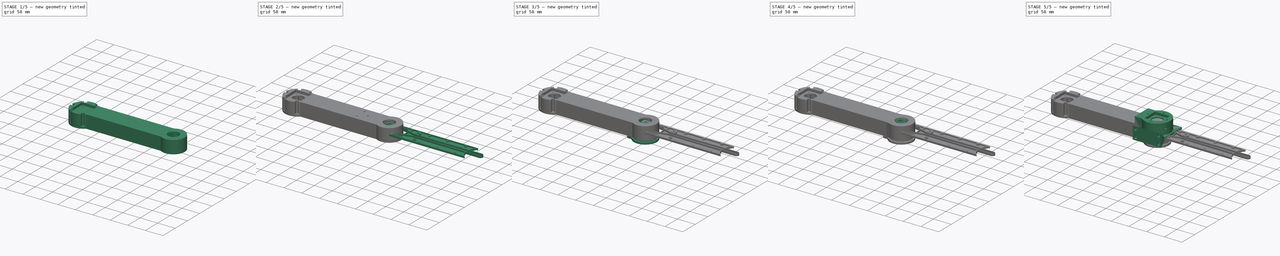
[diagram: build sequence overview — one tinted view per stage of 5, left to right]
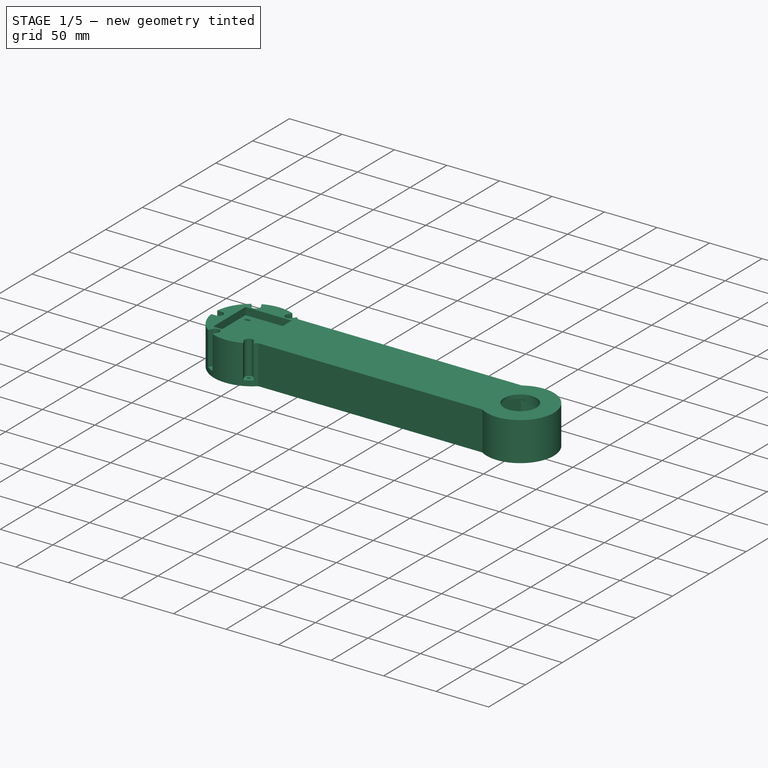
[diagram: stage 1 of 5 — iso view after this stage's code; geometry added in this stage tinted green]
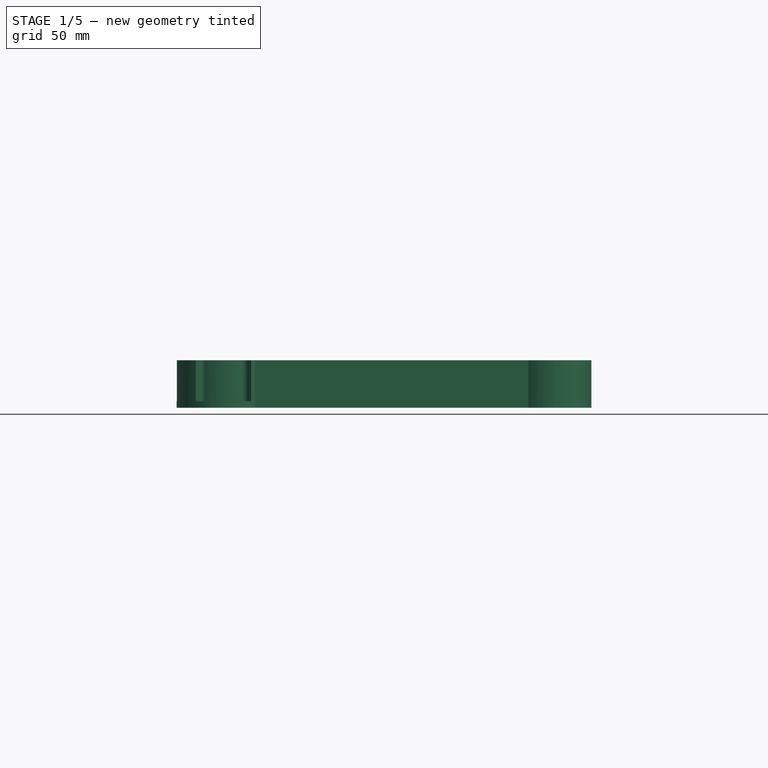
[diagram: stage 1 of 5 — front view after this stage's code; geometry added in this stage tinted green]
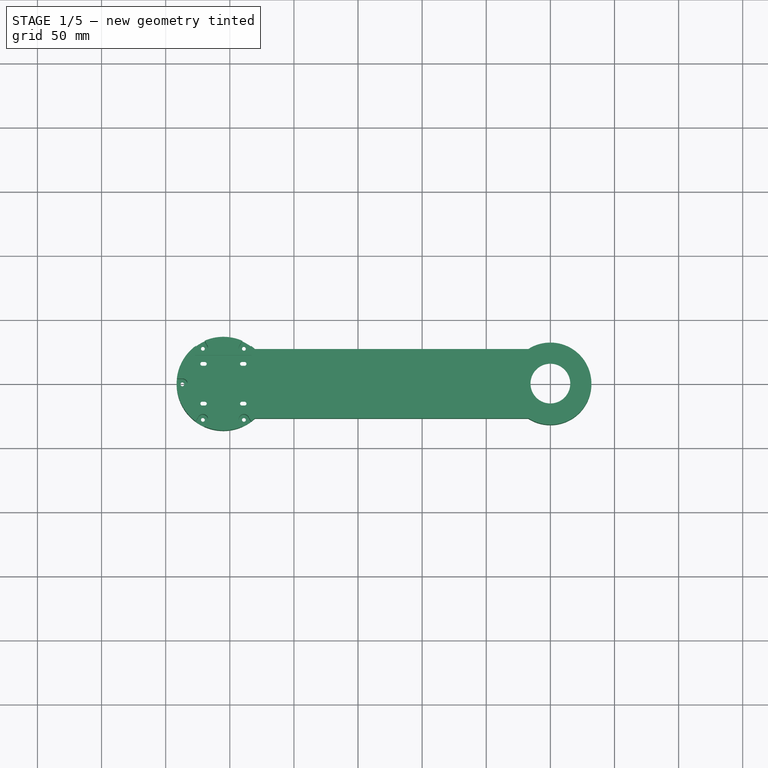
[diagram: stage 1 of 5 — top view after this stage's code; geometry added in this stage tinted green]
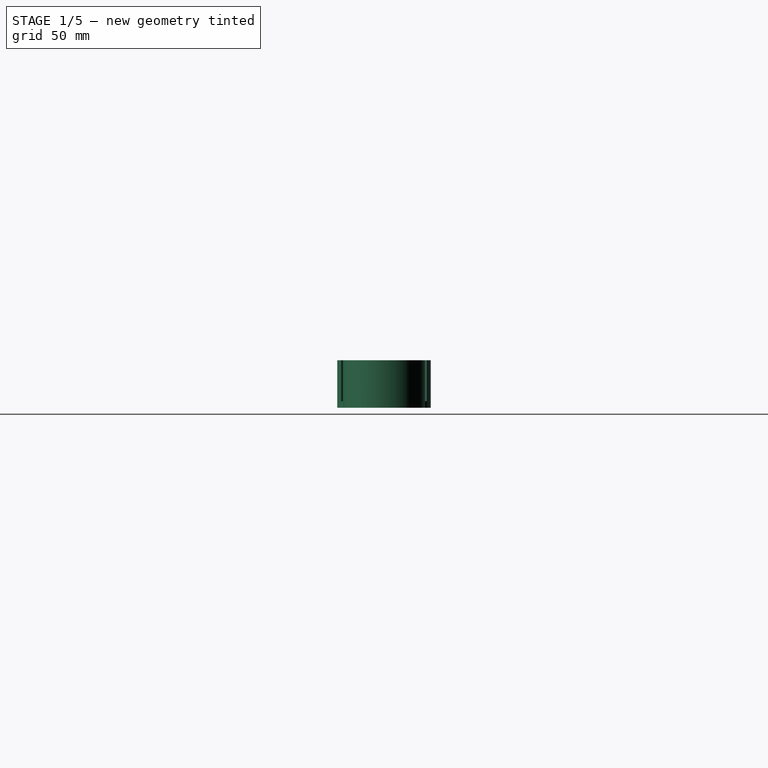
[diagram: stage 1 of 5 — right view after this stage's code; geometry added in this stage tinted green]
FCSTD DOCUMENT  (FreeCAD 1.0R39319 (Git))
Label: GT2_80
License: All rights reserved
LicenseURL: https://en.wikipedia.org/wiki/All_rights_reserved
objects: Sketcher::SketchObject×66, PartDesign::Pocket×38, PartDesign::Pad×23, App::Link×16, PartDesign::Body×13, Part::Feature×12, PartDesign::PolarPattern×7, App::Part×6, PartDesign::Revolution×4, PartDesign::Chamfer×3, PartDesign::ShapeBinder×2, PartDesign::LinearPattern×2, PartDesign::MultiTransform×2, PartDesign::Thickness×2, Part::Mirroring×2, App::LinkGroup×2, Spreadsheet::Sheet×1, PartDesign::Mirrored×1, PartDesign::Line×1, PartDesign::Fillet×1
note: 399 computed .brp shape members not serialized (recipe doc carries the construction recipe); baked Part::Feature solids carry a one-line shape summary decoded from their .brp
EXTERNAL_REF file=Robot.FCStd obj=Spreadsheet
EXTERNAL_REF file=MainStepper.FCStd obj=LinkGroup
EXTERNAL_REF file=Bearing.FCStd obj=Body
EXTERNAL_REF file=MainShaftHolder.FCStd obj=Body004

FEATURE [PartDesign::PolarPattern] PolarPattern005
  Angle = 360
  Axis = -> Sketch078 [N_Axis]
  BaseFeature = -> Pocket030
  Mode = 0
  Occurrences = 4
  Offset = 120
  Originals = -> [Pocket030]
  Refine = true
  Suppressed = false
  TransformMode = 0
FEATURE [PartDesign::Body] Body006  label="SecondNemaHolder"
  AllowCompound = false
  Group = -> [Sketch076,Pad031,Sketch077,Pad032,Sketch078,Pocket030,PolarPattern005]
  Origin = -> Origin013
  Placement = pos=(260,0,53) rot=(0,0,1;0rad)
  Tip = -> PolarPattern005
FEATURE [Part::Feature] Part__Feature005  label="Limit Switch v005"
  Placement = pos=(30.5,-5.1e-15,-7.5) rot=(0,0,1;1.5708rad)
  shape: bbox 15.71 x 16.83 x 9.8 mm, 47 faces (baked)
FEATURE [PartDesign::ShapeBinder] CopyPocket001
  TraceSupport = false
FEATURE [App::Link] Link009  label="Spreadsheet001"
  LinkedObject = -> Spreadsheet
FEATURE [Sketcher::SketchObject] Sketch079
  ArcFitTolerance = 1e-06
  AttachmentSupport = -> [CopyPocket001]
  FullyConstrained = true
  MakeInternals = false
  MapMode = 5
  Placement = pos=(0,0,19.5) rot=(0,0,1;0rad)
  expr: Constraints[1] = <<Spreadsheet001>>.TopDiameter
  sketch-geometry (1):
    g0: Circle CenterX=0 CenterY=0 CenterZ=0 NormalX=0 NormalY=0 NormalZ=1 AngleXU=0 Radius=32
  constraints (2):
    c: Coincident(g0,g-1)
    c: Diameter(g0) = 64
FEATURE [PartDesign::Pad] Pad033
  Direction = (0,0,1)
  Length = 37
  Length2 = 10
  Profile = -> Sketch079
  ReferenceAxis = -> Sketch079 [N_Axis]
  Refine = true
  Reversed = true
  Suppressed = false
  Type = 0
  expr: Length = <<Spreadsheet001>>.SecondArmHeight
FEATURE [Sketcher::SketchObject] Sketch080
  ArcFitTolerance = 1e-06
  AttachmentSupport = -> [Pad033]
  FullyConstrained = true
  MakeInternals = false
  MapMode = 5
  Placement = pos=(0,0,-17.5) rot=(1,0,0;3.14159rad)
  expr: Constraints[1] = <<Spreadsheet001>>.TopBearingDiameter
  sketch-geometry (1):
    g0: Circle CenterX=0 CenterY=0 CenterZ=0 NormalX=0 NormalY=0 NormalZ=1 AngleXU=0 Radius=18.5
  constraints (2):
    c: Coincident(g0,g-1)
    c: Diameter(g0) = 37
FEATURE [PartDesign::Pocket] Pocket032
  BaseFeature = -> Pad033
  Direction = (0,0,1)
  Length = 35
  Length2 = 5
  Profile = -> Sketch080
  ReferenceAxis = -> Sketch080 [N_Axis]
  Refine = true
  Suppressed = false
  Type = 0
  expr: Length = <<Spreadsheet001>>.SecondArmHeight - <<Spreadsheet001>>.TopThickness
FEATURE [Sketcher::SketchObject] Sketch081
  ArcFitTolerance = 1e-06
  AttachmentSupport = -> [Pocket032]
  FullyConstrained = true
  MakeInternals = false
  MapMode = 5
  Placement = pos=(0,0,-17.5) rot=(1,0,0;3.14159rad)
  expr: Constraints[1] = <<Spreadsheet001>>.TopThrustBearingDiameter + 6
  sketch-geometry (1):
    g0: Circle CenterX=0 CenterY=0 CenterZ=0 NormalX=0 NormalY=0 NormalZ=1 AngleXU=0 Radius=26.5
  constraints (2):
    c: Coincident(g0,g-1)
    c: Diameter(g0) = 53
FEATURE [PartDesign::Pocket] Pocket033
  BaseFeature = -> Pocket032
  Direction = (0,0,1)
  Length = 27
  Length2 = 5
  Profile = -> Sketch081
  ReferenceAxis = -> Sketch081 [N_Axis]
  Refine = true
  Suppressed = false
  Type = 0
  expr: Length = <<Spreadsheet001>>.SecondArmHeight - <<Spreadsheet001>>.TopThickness - <<Spreadsheet001>>.TopBearingHeight
FEATURE [Sketcher::SketchObject] Sketch082
  ArcFitTolerance = 1e-06
  AttachmentSupport = -> [Pocket033]
  FullyConstrained = true
  MakeInternals = false
  MapMode = 5
  Placement = pos=(0,0,19.5) rot=(0,0,1;0rad)
  expr: Constraints[1] = <<Spreadsheet001>>.TopBearingHole + 6
  sketch-geometry (1):
    g0: Circle CenterX=0 CenterY=0 CenterZ=0 NormalX=0 NormalY=0 NormalZ=1 AngleXU=0 Radius=15.5
  constraints (2):
    c: Coincident(g0,g-1)
    c: Diameter(g0) = 31
FEATURE [PartDesign::Pocket] Pocket034
  BaseFeature = -> Pocket033
  Direction = (0,0,-1)
  Length = 5
  Length2 = 5
  Profile = -> Sketch082
  ReferenceAxis = -> Sketch082 [N_Axis]
  Refine = true
  Suppressed = false
  Type = 1
FEATURE [Sketcher::SketchObject] Sketch083
  ArcFitTolerance = 1e-06
  AttachmentSupport = -> [Pocket034]
  FullyConstrained = false
  MakeInternals = false
  MapMode = 5
  Placement = pos=(0,0,19.5) rot=(0,0,1;0rad)
  expr: Constraints[1] = <<Spreadsheet001>>.TopDiameter
  expr: Constraints[7] = (<<Spreadsheet001>>.TopFaceWidth + 4) / 2
  sketch-geometry (5):
    g0: ArcOfCircle CenterX=0 CenterY=0 CenterZ=0 NormalX=0 NormalY=0 NormalZ=1 AngleXU=0 Radius=32 StartAngle=2.13736 EndAngle=4.14582
    g1: LineSegment StartX=-17.1756 StartY=27 StartZ=0 EndX=-230.439 EndY=27 EndZ=0
    g2: LineSegment StartX=-230.439 StartY=-27 StartZ=0 EndX=-17.1756 EndY=-27 EndZ=0
    g3: GeomPoint [constr] X=0 Y=0 Z=0
    g4: ArcOfCircle CenterX=-255 CenterY=0 CenterZ=0 NormalX=0 NormalY=0 NormalZ=1 AngleXU=0 Radius=36.5 StartAngle=0.832663 EndAngle=5.45052
  constraints (13):
    c: Coincident(g0,g-1)
    c: Diameter(g0) = 64
    c: Horizontal(g1)
    c: Horizontal(g2)
    c: Coincident(g3,g0)
    c: Coincident(g1,g0)
    c: Coincident(g2,g0)
    c: Distance(g-1,g1) = 27
    c: PointOnObject(g4,g-1)
    c: Diameter(g4) = 73
    c: DistanceX(g4,g-1) = 255
    c: Coincident(g4,g2)
    c: Coincident(g4,g1)
FEATURE [PartDesign::Pad] Pad034
  BaseFeature = -> Pocket034
  Direction = (0,0,1)
  Length = 37
  Length2 = 10
  Profile = -> Sketch083
  ReferenceAxis = -> Sketch083 [N_Axis]
  Refine = true
  Reversed = true
  Suppressed = false
  Type = 0
  expr: Length = <<Spreadsheet001>>.SecondArmHeight
FEATURE [Spreadsheet::Sheet] Spreadsheet  label="SpreadSheet"
  cells = A1='BaseWidth; B1(BaseWidth)=64; D1='TopThickness; E1(TopThickness)=2; G1='TeethNum; H1(TeethNum)=64; A2='BaseRectWidth; B2(BaseRectWidth)=40; D2='TopBearingHeight; E2(TopBearingHeight)=8; G2='CenterGearShaft; H2(CenterGearShaft)=0; A3='BaseRectHeight; B3(BaseRectHeight)=28; D3='TopBearingHole; E3(TopBearingHole)=25; G3='CutAngle; H3(CutAngle)=45; A4='HoleDiamter; B4(HoleDiamter)=28; D4='TopBearingDiameter; E4(TopBearingDiameter)=37; G4='ShaftDiameter; H4(ShaftDiameter)=6; A5='ScrewHoleDiamter; B5(ScrewHoleDiamter)=4.5; D5='TopThrustBearingHeight; E5(TopThrustBearingHeight)=4; G5='ShaftLength; H5(ShaftLength)=20; A6='CenterToScrewHole; B6(CenterToScrewHole)=24.5; D6='TopThrustBearingDiameter; E6(TopThrustBearingDiameter)=47; A7='Width; B7(Width)=120; D7='TopDiameter; E7(TopDiameter)=64; G7='GripperVerticalThread; H7(GripperVerticalThread)=5; A8='Length; B8(Length)=150; D8='TopFaceWidth; E8(TopFaceWidth)=50; G8='GripperVerticalBolt; H8(GripperVerticalBolt)=8; A9='Height; B9(Height)=70; D9='TopFaceSize; E9(TopFaceSize)=200; G9='GripperCenterToFork; H9(GripperCenterToFork)=10; A10='FirstLayerDepth; B10(FirstLayerDepth)=12; D10='SecondArmHeight; E10(SecondArmHeight)=37; G10='GripperForkDiameter; H10(GripperForkDiameter)=2; A11='UpperThickness; B11(UpperThickness)=5; D11='TopFaceHeight; E11(TopFaceHeight)=42; A12='UpperHeight; B12(UpperHeight)=80; D12='TopGearHoleDiameter; E12(TopGearHoleDiameter)=54; A13='StepperCenterToScewHole; B13(StepperCenterToScewHole)=15.5; D13='SecondShaftStepperHolderHeight; E13(SecondShaftStepperHolderHeight)=5; A14='ContactBaseWidth; B14(ContactBaseWidth)=10; D14='CenterToStepper; E14(CenterToStepper)=200; A15='StepperScrewHole; B15(StepperScrewHole)=3; D15='StepperSize; E15(StepperSize)=42; A16='MainShaftScrewBase; B16(MainShaftScrewBase)=11; D16='StepperHeight; E16(StepperHeight)=20; A17='MainShaftSize; B17(MainShaftSize)=60; D17='StepperMainHole; E17(StepperMainHole)=22; A18='MainShaftHolder; B18(MainShaftHolder)=23; D18='StepperCenterToScrew; E18(StepperCenterToScrew)=15.5; A19='MainShaftScrewDepth; B19(MainShaftScrewDepth)=5; D19='CuroaHoleSize; E19(CuroaHoleSize)=40; D20='ConnectMainArmHoleSpace; E20(ConnectMainArmHoleSpace)=5; A21='ContactHeight; B21(ContactHeight)=5; D21='SecondShaftScrewHole; E21(SecondShaftScrewHole)=4; A22='FirstArmHeight; B22(FirstArmHeight)=40; D22='SecondShaftThroughHole; E22(SecondShaftThroughHole)=8; A23='FirstArmInnerDiameter; B23(FirstArmInnerDiameter)=28; D23='BottomBearingInnerDiameter; E23(BottomBearingInnerDiameter)=40; A24='FirstArmInnerSpaceDiameter; B24(FirstArmInnerSpaceDiameter)=45; D24='BottomBearingOuterDiameter; E24(BottomBearingOuterDiameter)=52; A25='OuterDiameter; B25(OuterDiameter)=90; D25='BottomBearingHeight; E25(BottomBearingHeight)=7; A26='ContactArmWith; B26(ContactArmWith)=54; A27='ContactArmLength; B27(ContactArmLength)=15; A29='UpperBearingHole; B29(UpperBearingHole)=8; A30='UpperBearingInner; B30(UpperBearingInner)=6; A31='UpperBearingInnerDepth; B31(UpperBearingInnerDepth)=1; A32='UpperBearingOuter; B32(UpperBearingOuter)=8.1; A33='UpperBearingOuterDepth; B33(UpperBearingOuterDepth)=4; A34='LowerBearingHole; B34(LowerBearingHole)=10; A35='LowerBearingInner; B35(LowerBearingInner)=13.1; A36='LowerBearingInnerDepth; B36(LowerBearingInnerDepth)=1; A37='LowerBearingOuter; B37(LowerBearingOuter)=15.1; A38='LowerBearingOuterDepth; B38(LowerBearingOuterDepth)=4; A39='CenterSpace; B39(CenterSpace)=31; A40='UpperLowerSpace; B40(UpperLowerSpace)=13; A41='FirstToSecondHoleSpace; B41(FirstToSecondHoleSpace)=13; A42='GripperLowerBearingHole; B42(GripperLowerBearingHole)=8.1; A43='GripperUpperBearingHole; B43(GripperUpperBearingHole)=8.1; A44='GripperThickness; B44(GripperThickness)=1; A45='GripperLowerHoleDiameter; B45(GripperLowerHoleDiameter)=5; A46='GripperWidth; B46(GripperWidth)=44; A47='ThirdArmWidth; B47(ThirdArmWidth)=50; A48='ThirdArmLength; B48(ThirdArmLength)=100
FEATURE [App::Link] Link010  label="GearHolderFullLength001"
  LinkPlacement = pos=(5,-1.19209e-06,2.46221) rot=(0,0,1;3.14159rad)
  LinkedObject = -> Body008
  Placement = pos=(5,-1.19209e-06,2.46221) rot=(0,0,1;3.14159rad)
  _LinkOwner = 3808
FEATURE [Sketcher::SketchObject] Sketch084
  ArcFitTolerance = 1e-06
  AttachmentSupport = -> [Pad034]
  ExternalGeometry = -> [Pad034]
  FullyConstrained = false
  MakeInternals = false
  MapMode = 5
  Placement = pos=(0,0,-17.5) rot=(1,0,0;3.14159rad)
  sketch-geometry (6):
    g0: LineSegment StartX=-219.873 StartY=-22 StartZ=0 EndX=-6.4835 EndY=-22 EndZ=0
    g1: LineSegment StartX=-6.4835 StartY=-22 StartZ=0 EndX=-6.4835 EndY=22 EndZ=0
    g2: LineSegment StartX=-6.4835 StartY=22 StartZ=0 EndX=-219.873 EndY=22 EndZ=0
    g3: LineSegment StartX=-219.873 StartY=22 StartZ=0 EndX=-229.114 EndY=15 EndZ=0
    g4: LineSegment StartX=-229.114 StartY=-15 StartZ=0 EndX=-219.873 EndY=-22 EndZ=0
    g5: LineSegment StartX=-229.114 StartY=15 StartZ=0 EndX=-229.114 EndY=-15 EndZ=0
  constraints (14):
    c: Coincident(g0,g1)
    c: Coincident(g1,g2)
    c: Vertical(g1)
    c: Horizontal(g0)
    c: Horizontal(g2)
    c: Distance(g2,g-3) = 5
    c: Distance(g-4,g0) = 5
    c: Coincident(g3,g2)
    c: Coincident(g4,g0)
    c: Vertical(g5)
    c: Coincident(g5,g3)
    c: Coincident(g5,g4)
    c: Distance(g3,g-1) = 15
    c: Distance(g4,g-1) = 15
FEATURE [PartDesign::Pocket] Pocket035
  BaseFeature = -> Pad034
  Direction = (0,0,1)
  Length = 32
  Length2 = 5
  Profile = -> Sketch084
  ReferenceAxis = -> Sketch084 [N_Axis]
  Refine = true
  Suppressed = false
  Type = 0
FEATURE [Sketcher::SketchObject] Sketch085
  ArcFitTolerance = 1e-06
  AttachmentOffset = pos=(0,0,-49) rot=(0,0,1;0rad)
  AttachmentSupport = -> [YZ_Plane015]
  ExternalGeometry = -> [Pocket035]
  FullyConstrained = true
  MakeInternals = false
  MapMode = 5
  Placement = pos=(-49,0,0) rot=(0.57735,0.57735,0.57735;2.0944rad)
  sketch-geometry (5):
    g0: LineSegment StartX=22 StartY=14.5 StartZ=0 EndX=5 EndY=14.5 EndZ=0
    g1: LineSegment StartX=16 StartY=-17.5 StartZ=0 EndX=22 EndY=-17.5 EndZ=0
    g2: LineSegment StartX=22 StartY=-17.5 StartZ=0 EndX=22 EndY=14.5 EndZ=0
    g3: LineSegment StartX=16 StartY=3.5 StartZ=0 EndX=16 EndY=-17.5 EndZ=0
    g4: LineSegment StartX=16 StartY=3.5 StartZ=0 EndX=5 EndY=14.5 EndZ=0
  constraints (13):
    c: Coincident(g-4,g0)
    c: PointOnObject(g1,g-3)
    c: Coincident(g1,g-4)
    c: Coincident(g1,g2)
    c: Coincident(g2,g0)
    c: DistanceX(g1,g1) = 6
    c: Horizontal(g0)
    c: Coincident(g3,g1)
    c: Vertical(g3)
    c: Coincident(g3,g4)
    c: Angle(g4,g3) = 2.35619
    c: DistanceY(g3,g3) = 21
    c: Coincident(g0,g4)
FEATURE [PartDesign::Pad] Pad035
  BaseFeature = -> Pocket035
  Direction = (1,0,0)
  Length = 2
  Length2 = 10
  Profile = -> Sketch085
  ReferenceAxis = -> Sketch085 [N_Axis]
  Refine = true
  Suppressed = false
  Type = 0
FEATURE [PartDesign::Mirrored] Mirrored
  MirrorPlane = -> Sketch085 [V_Axis]
  Refine = true
  Suppressed = false
  TransformMode = 0
FEATURE [PartDesign::LinearPattern] LinearPattern
  Direction = -> X_Axis015
  Length = 150
  Mode = 1
  Occurrences = 4
  Offset = 50
  Refine = true
  Reversed = true
  Suppressed = false
  TransformMode = 0
FEATURE [Sketcher::SketchObject] Sketch086
  ArcFitTolerance = 1e-06
  AttachmentSupport = -> [Pad035]
  ExternalGeometry = -> [Pad035]
  FullyConstrained = true
  MakeInternals = false
  MapMode = 5
  Placement = pos=(0,0,14.5) rot=(1,0,0;3.14159rad)
  sketch-geometry (1):
    g0: Circle CenterX=-48 CenterY=-22 CenterZ=0 NormalX=0 NormalY=0 NormalZ=1 AngleXU=0 Radius=4
  constraints (3):
    c: Diameter(g0) = 8
    c: Horizontal(g0,g-3)
    c: Distance(g0,g-3) = 1
FEATURE [PartDesign::Pad] Pad036
  BaseFeature = -> Pad035
  Direction = (0,0,-1)
  Length = 32
  Length2 = 10
  Profile = -> Sketch086
  ReferenceAxis = -> Sketch086 [N_Axis]
  Refine = true
  Suppressed = false
  Type = 0
FEATURE [Sketcher::SketchObject] Sketch087
  ArcFitTolerance = 1e-06
  AttachmentSupport = -> [Pad036]
  ExternalGeometry = -> [Pad036]
  FullyConstrained = true
  MakeInternals = false
  MapMode = 5
  Placement = pos=(0,0,-17.5) rot=(1,0,0;3.14159rad)
  sketch-geometry (1):
    g0: Circle CenterX=-48 CenterY=-22 CenterZ=0 NormalX=0 NormalY=0 NormalZ=1 AngleXU=0 Radius=2
  constraints (2):
    c: Diameter(g0) = 4
    c: Coincident(g0,g-3)
FEATURE [PartDesign::Pocket] Pocket036
  BaseFeature = -> Pad036
  Direction = (0,0,1)
  Length = 10
  Length2 = 5
  Profile = -> Sketch087
  ReferenceAxis = -> Sketch087 [N_Axis]
  Refine = true
  Suppressed = false
  Type = 0
FEATURE [PartDesign::MultiTransform] MultiTransform
  BaseFeature = -> Pocket036
  Originals = -> [Pad035,Pad036,Pocket036]
  Refine = true
  Suppressed = false
  TransformMode = 0
  Transformations = -> [Mirrored,LinearPattern]
FEATURE [Sketcher::SketchObject] Sketch088
  ArcFitTolerance = 1e-06
  AttachmentSupport = -> [Pocket035]
  ExternalGeometry = -> [Pocket035]
  FullyConstrained = false
  MakeInternals = false
  MapMode = 5
  Placement = pos=(0,0,-17.5) rot=(1,0,0;3.14159rad)
  sketch-geometry (8):
    g0: ArcOfCircle CenterX=-270.556 CenterY=15.5564 CenterZ=0 NormalX=0 NormalY=0 NormalZ=1 AngleXU=0 Radius=6 StartAngle=0.785398 EndAngle=3.92699
    g1: ArcOfCircle CenterX=-239.444 CenterY=15.5563 CenterZ=0 NormalX=0 NormalY=0 NormalZ=1 AngleXU=0 Radius=6 StartAngle=5.49779 EndAngle=8.63938
    g2: ArcOfCircle CenterX=-270.556 CenterY=-15.5564 CenterZ=0 NormalX=0 NormalY=0 NormalZ=1 AngleXU=0 Radius=6 StartAngle=2.35619 EndAngle=5.49779
    g3: ArcOfCircle CenterX=-239.444 CenterY=-15.5563 CenterZ=0 NormalX=0 NormalY=0 NormalZ=1 AngleXU=0 Radius=6 StartAngle=3.92699 EndAngle=7.06858
    g4: ArcOfCircle CenterX=-255 CenterY=0 CenterZ=0 NormalX=0 NormalY=0 NormalZ=1 AngleXU=0 Radius=22.8035 StartAngle=2.62245 EndAngle=3.66074
    g5: ArcOfCircle CenterX=-255 CenterY=0 CenterZ=0 NormalX=0 NormalY=0 NormalZ=1 AngleXU=0 Radius=22.8035 StartAngle=1.05165 EndAngle=2.08994
    g6: ArcOfCircle CenterX=-255 CenterY=0 CenterZ=0 NormalX=0 NormalY=0 NormalZ=1 AngleXU=0 Radius=22.8035 StartAngle=5.76404 EndAngle=6.80233
    g7: ArcOfCircle CenterX=-255 CenterY=0 CenterZ=0 NormalX=0 NormalY=0 NormalZ=1 AngleXU=0 Radius=22.8035 StartAngle=4.19324 EndAngle=5.23154
  constraints (14):
    c: Coincident(g5,g0)
    c: Coincident(g4,g0)
    c: Equal(g4,g5)
    c: Coincident(g4,g5)
    c: Equal(g4,g6)
    c: Coincident(g4,g6)
    c: Coincident(g1,g5)
    c: Coincident(g1,g6)
    c: Coincident(g3,g6)
    c: Coincident(g3,g7)
    c: Equal(g4,g7)
    c: Coincident(g4,g7)
    c: Coincident(g2,g4)
    c: Coincident(g2,g7)
FEATURE [PartDesign::Pocket] Pocket037
  BaseFeature = -> MultiTransform
  Direction = (0,0,1)
  Length = 27
  Length2 = 5
  Profile = -> Sketch088
  ReferenceAxis = -> Sketch088 [N_Axis]
  Refine = true
  Suppressed = false
  Type = 0
FEATURE [Sketcher::SketchObject] Sketch089
  ArcFitTolerance = 1e-06
  AttachmentSupport = -> [Pad034]
  ExternalGeometry = -> [Pad034]
  FullyConstrained = true
  MakeInternals = false
  MapMode = 5
  Placement = pos=(0,0,19.5) rot=(0,0,1;0rad)
  sketch-geometry (5):
    g0: LineSegment StartX=-277 StartY=-22 StartZ=0 EndX=-233 EndY=-22 EndZ=0
    g1: LineSegment StartX=-233 StartY=-22 StartZ=0 EndX=-233 EndY=22 EndZ=0
    g2: LineSegment StartX=-233 StartY=22 StartZ=0 EndX=-277 EndY=22 EndZ=0
    g3: LineSegment StartX=-277 StartY=22 StartZ=0 EndX=-277 EndY=-22 EndZ=0
    g4: GeomPoint [constr] X=-255 Y=0 Z=0
  constraints (12):
    c: Coincident(g0,g1)
    c: Coincident(g1,g2)
    c: Coincident(g2,g3)
    c: Coincident(g3,g0)
    c: Horizontal(g0)
    c: Horizontal(g2)
    c: Vertical(g1)
    c: Vertical(g3)
    c: Symmetric(g2,g0,g4)
    c: Distance(g1,g3) = 44
    c: Distance(g0,g2) = 44
    c: Coincident(g4,g-3)
FEATURE [PartDesign::Pocket] Pocket038
  BaseFeature = -> Pocket037
  Direction = (0,0,-1)
  Length = 7
  Length2 = 5
  Profile = -> Sketch089
  ReferenceAxis = -> Sketch089 [N_Axis]
  Refine = true
  Suppressed = false
  Type = 0
FEATURE [Sketcher::SketchObject] Sketch090
  ArcFitTolerance = 1e-06
  AttachmentSupport = -> [Pad034]
  ExternalGeometry = -> [Pad034]
  FullyConstrained = true
  MakeInternals = false
  MapMode = 5
  Placement = pos=(0,0,19.5) rot=(0,0,1;0rad)
  sketch-geometry (16):
    g0: ArcOfCircle CenterX=-271.5 CenterY=15.5 CenterZ=0 NormalX=0 NormalY=0 NormalZ=1 AngleXU=0 Radius=1.5 StartAngle=1.5708 EndAngle=4.71239
    g1: ArcOfCircle CenterX=-269.5 CenterY=15.5 CenterZ=0 NormalX=0 NormalY=0 NormalZ=1 AngleXU=0 Radius=1.5 StartAngle=4.71239 EndAngle=7.85398
    g2: LineSegment StartX=-271.5 StartY=17 StartZ=0 EndX=-269.5 EndY=17 EndZ=0
    g3: LineSegment StartX=-271.5 StartY=14 StartZ=0 EndX=-269.5 EndY=14 EndZ=0
    g4: ArcOfCircle CenterX=-240.5 CenterY=15.5 CenterZ=0 NormalX=0 NormalY=0 NormalZ=1 AngleXU=0 Radius=1.5 StartAngle=1.5708 EndAngle=4.71239
    g5: ArcOfCircle CenterX=-238.5 CenterY=15.5 CenterZ=0 NormalX=0 NormalY=0 NormalZ=1 AngleXU=0 Radius=1.5 StartAngle=4.71239 EndAngle=7.85398
    g6: LineSegment StartX=-240.5 StartY=17 StartZ=0 EndX=-238.5 EndY=17 EndZ=0
    g7: LineSegment StartX=-240.5 StartY=14 StartZ=0 EndX=-238.5 EndY=14 EndZ=0
    g8: ArcOfCircle CenterX=-271.5 CenterY=-15.5 CenterZ=0 NormalX=0 NormalY=0 NormalZ=1 AngleXU=0 Radius=1.5 StartAngle=1.5708 EndAngle=4.71239
    g9: ArcOfCircle CenterX=-269.5 CenterY=-15.5 CenterZ=0 NormalX=0 NormalY=0 NormalZ=1 AngleXU=0 Radius=1.5 StartAngle=4.71239 EndAngle=7.85398
    g10: LineSegment StartX=-271.5 StartY=-14 StartZ=0 EndX=-269.5 EndY=-14 EndZ=0
    g11: LineSegment StartX=-271.5 StartY=-17 StartZ=0 EndX=-269.5 EndY=-17 EndZ=0
    g12: ArcOfCircle CenterX=-240.5 CenterY=-15.5 CenterZ=0 NormalX=0 NormalY=0 NormalZ=1 AngleXU=0 Radius=1.5 StartAngle=1.5708 EndAngle=4.71239
    g13: ArcOfCircle CenterX=-238.5 CenterY=-15.5 CenterZ=0 NormalX=0 NormalY=0 NormalZ=1 AngleXU=0 Radius=1.5 StartAngle=4.71239 EndAngle=7.85398
    g14: LineSegment StartX=-240.5 StartY=-14 StartZ=0 EndX=-238.5 EndY=-14 EndZ=0
    g15: LineSegment StartX=-240.5 StartY=-17 StartZ=0 EndX=-238.5 EndY=-17 EndZ=0
  constraints (40):
    c: Tangent(g0,g2) = 1.5708
    c: Tangent(g0,g3) = -1.5708
    c: Tangent(g1,g2) = 1.5708
    c: Tangent(g1,g3) = -1.5708
    c: Equal(g0,g1)
    c: Horizontal(g3)
    c: Radius(g0) = 1.5
    c: Tangent(g4,g6) = 1.5708
    c: Tangent(g4,g7) = -1.5708
    c: Tangent(g5,g6) = 1.5708
    c: Tangent(g5,g7) = -1.5708
    c: Equal(g4,g5)
    c: Radius(g4) = 1.5
    c: Horizontal(g6)
    c: DistanceX(g2,g2) = 2
    c: DistanceX(g6,g6) = 2
    c: Tangent(g8,g10) = 1.5708
    c: Tangent(g8,g11) = -1.5708
    c: Tangent(g9,g10) = 1.5708
    c: Tangent(g9,g11) = -1.5708
    c: Equal(g8,g9)
    c: Horizontal(g11)
    c: Distance(g8,g9) = 2
    c: Radius(g8) = 1.5
    c: Tangent(g12,g14) = 1.5708
    c: Tangent(g12,g15) = -1.5708
    c: Tangent(g13,g14) = 1.5708
    c: Tangent(g13,g15) = -1.5708
    c: Equal(g12,g13)
    c: Horizontal(g15)
    c: Distance(g12,g13) = 2
    c: Radius(g12) = 1.5
    c: Distance(g12,g-1) = 15.5
    c: Distance(g5,g-1) = 15.5
    c: Distance(g1,g-1) = 15.5
    c: Distance(g9,g-1) = 15.5
    c: DistanceX(g1,g-3) = 14.5
    c: DistanceX(g-3,g4) = 14.5
    c: DistanceX(g-3,g12) = 14.5
    c: DistanceX(g9,g-3) = 14.5
FEATURE [PartDesign::Pocket] Pocket039
  BaseFeature = -> Pocket038
  Direction = (0,0,-1)
  Length = 5
  Length2 = 5
  Profile = -> Sketch090
  ReferenceAxis = -> Sketch090 [N_Axis]
  Refine = true
  Suppressed = false
  Type = 1
FEATURE [Sketcher::SketchObject] Sketch091
  ArcFitTolerance = 1e-06
  AttachmentSupport = -> [Pocket039]
  ExternalGeometry = -> [Pocket039]
  FullyConstrained = false
  MakeInternals = false
  MapMode = 5
  Placement = pos=(0,0,19.5) rot=(0,0,1;0rad)
  sketch-geometry (4):
    g0: ArcOfCircle CenterX=-287 CenterY=0 CenterZ=0 NormalX=0 NormalY=0 NormalZ=1 AngleXU=0 Radius=4 StartAngle=4.71239 EndAngle=7.85398
    g1: ArcOfCircle CenterX=-304.496 CenterY=1.02e-14 CenterZ=0 NormalX=0 NormalY=0 NormalZ=1 AngleXU=0 Radius=4 StartAngle=1.5708 EndAngle=4.71239
    g2: LineSegment StartX=-287 StartY=-4 StartZ=0 EndX=-304.496 EndY=-4 EndZ=0
    g3: LineSegment StartX=-287 StartY=4 StartZ=0 EndX=-304.496 EndY=4 EndZ=0
  constraints (9):
    c: Tangent(g0,g2) = 1.5708
    c: Tangent(g0,g3) = -1.5708
    c: Tangent(g1,g2) = 1.5708
    c: Tangent(g1,g3) = -1.5708
    c: Equal(g0,g1)
    c: Horizontal(g3)
    c: Radius(g0) = 4
    c: PointOnObject(g0,g-1)
    c: DistanceX(g0,g-3) = 32
FEATURE [PartDesign::Pocket] Pocket040
  BaseFeature = -> Pocket039
  Direction = (0,0,-1)
  Length = 32
  Length2 = 5
  Profile = -> Sketch091
  ReferenceAxis = -> Sketch091 [N_Axis]
  Refine = true
  Suppressed = false
  Type = 0
FEATURE [PartDesign::Line] DatumLine
  AttacherType = Attacher::AttachEngineLine
  AttachmentOffset = pos=(-255,0,0) rot=(0,0,1;0rad)
  AttachmentSupport = -> [Z_Axis015]
  Length = 20
  MapMode = 29
  Placement = pos=(-255,0,0) rot=(0,0,1;0rad)
  ResizeMode = 0
FEATURE [PartDesign::PolarPattern] PolarPattern006
  Angle = 360
  Axis = -> DatumLine
  Mode = 1
  Occurrences = 3
  Offset = 60
  Refine = true
  Reversed = true
  Suppressed = false
  TransformMode = 0
FEATURE [PartDesign::PolarPattern] PolarPattern007
  Angle = 360
  Axis = -> DatumLine
  Mode = 1
  Occurrences = 3
  Offset = 60
  Refine = true
  Suppressed = false
  TransformMode = 0
FEATURE [Sketcher::SketchObject] Sketch094
  ArcFitTolerance = 1e-06
  AttachmentSupport = -> [Pocket040]
  ExternalGeometry = -> [Pocket040]
  FullyConstrained = true
  MakeInternals = false
  MapMode = 5
  Placement = pos=(0,0,-12.5) rot=(0,0,1;0rad)
  sketch-geometry (1):
    g0: Circle CenterX=-287 CenterY=0 CenterZ=0 NormalX=0 NormalY=0 NormalZ=1 AngleXU=0 Radius=1.5
  constraints (2):
    c: Diameter(g0) = 3
    c: Coincident(g0,g-3)
FEATURE [PartDesign::Pocket] Pocket043
  BaseFeature = -> Pocket040
  Direction = (0,0,-1)
  Length = 5
  Length2 = 5
  Profile = -> Sketch094
  ReferenceAxis = -> Sketch094 [N_Axis]
  Refine = true
  Suppressed = false
  Type = 1
FEATURE [PartDesign::MultiTransform] MultiTransform001
  BaseFeature = -> Pocket043
  Originals = -> [Pocket040,Pocket043]
  Refine = true
  Suppressed = false
  TransformMode = 0
  Transformations = -> [PolarPattern006,PolarPattern007]
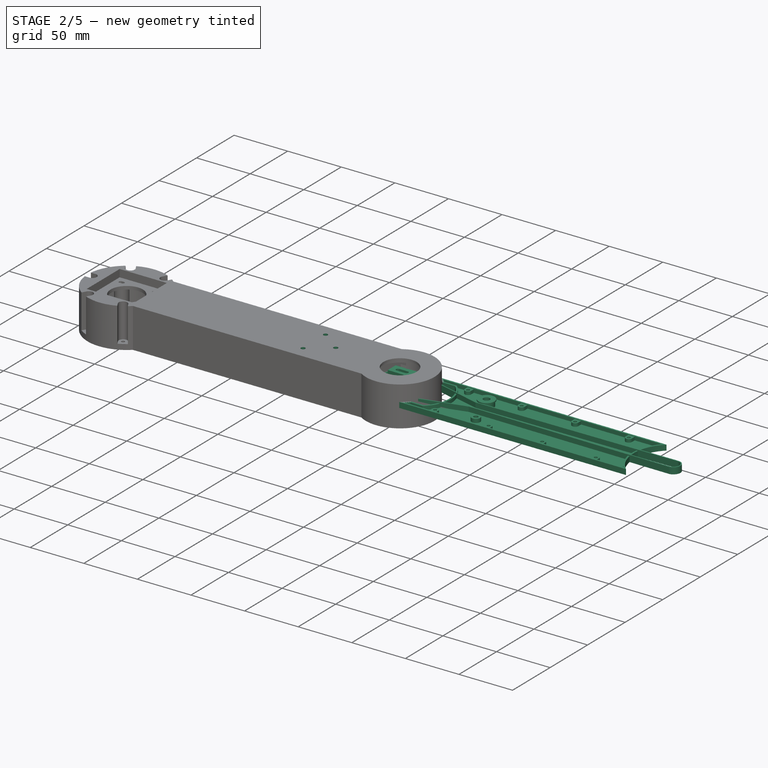
[diagram: stage 2 of 5 — iso view after this stage's code; geometry added in this stage tinted green]
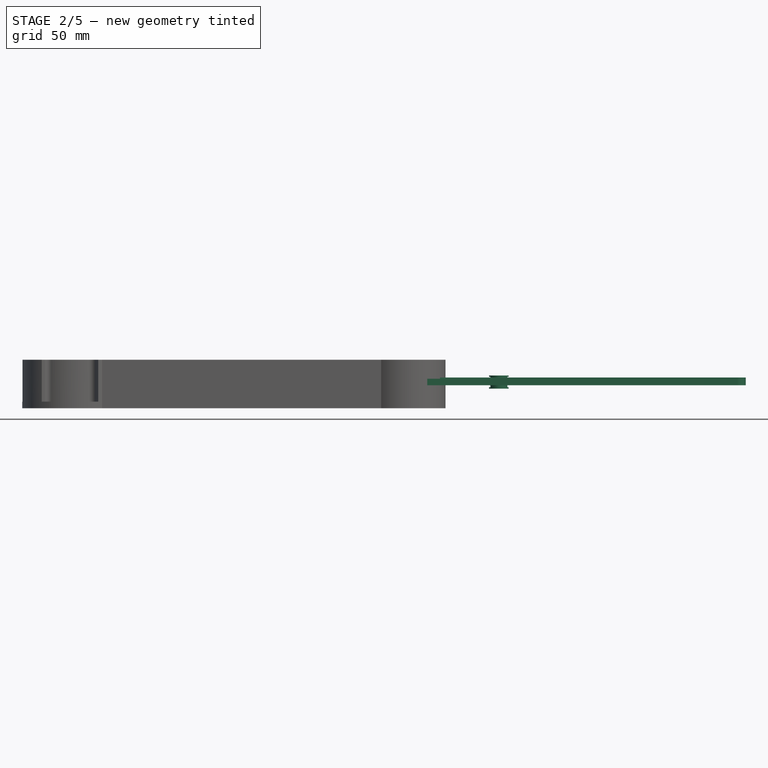
[diagram: stage 2 of 5 — front view after this stage's code; geometry added in this stage tinted green]
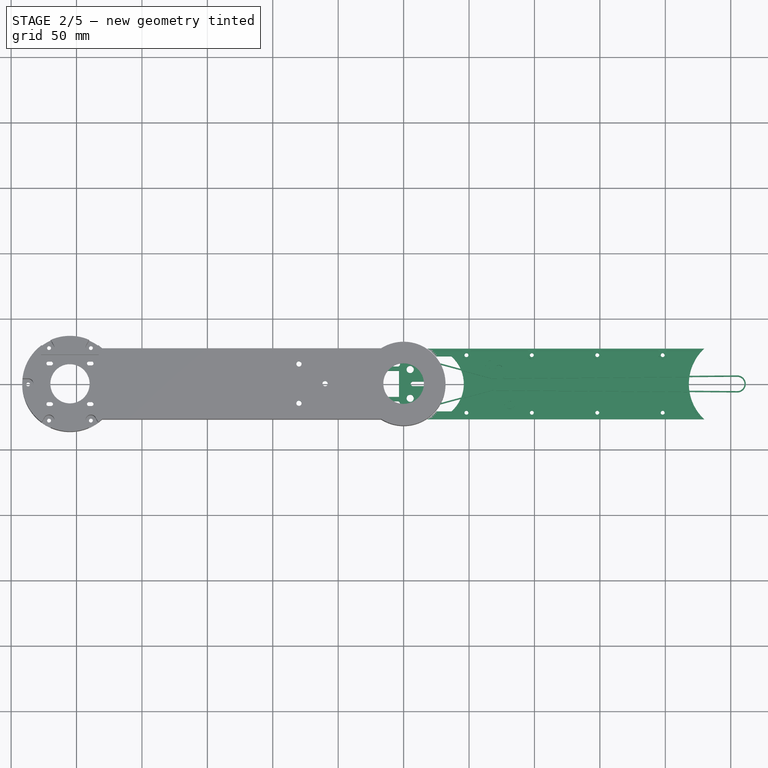
[diagram: stage 2 of 5 — top view after this stage's code; geometry added in this stage tinted green]
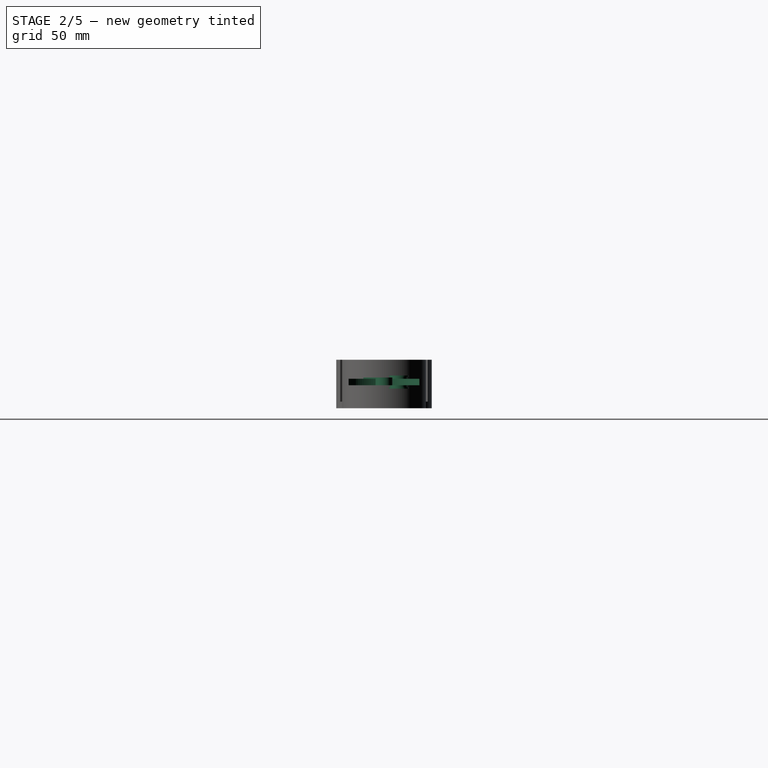
[diagram: stage 2 of 5 — right view after this stage's code; geometry added in this stage tinted green]
FEATURE [Sketcher::SketchObject] Sketch092
  ArcFitTolerance = 1e-06
  AttachmentSupport = -> [MultiTransform001]
  FullyConstrained = false
  MakeInternals = false
  MapMode = 5
  Placement = pos=(0,0,-17.5) rot=(1,0,0;3.14159rad)
  sketch-geometry (4):
    g0: LineSegment StartX=-249.696 StartY=15 StartZ=0 EndX=-249.696 EndY=-15 EndZ=0
    g1: LineSegment StartX=-249.696 StartY=-15 StartZ=0 EndX=-214.114 EndY=-15 EndZ=0
    g2: LineSegment StartX=-214.114 StartY=-15 StartZ=0 EndX=-214.114 EndY=15 EndZ=0
    g3: LineSegment StartX=-214.114 StartY=15 StartZ=0 EndX=-249.696 EndY=15 EndZ=0
  constraints (10):
    c: Coincident(g0,g1)
    c: Coincident(g1,g2)
    c: Coincident(g2,g3)
    c: Coincident(g3,g0)
    c: Vertical(g0)
    c: Vertical(g2)
    c: Horizontal(g1)
    c: Horizontal(g3)
    c: Distance(g-1,g3) = 15
    c: Distance(g1,g-1) = 15
FEATURE [PartDesign::Pocket] Pocket041
  BaseFeature = -> MultiTransform001
  Direction = (0,0,1)
  Length = 27
  Length2 = 5
  Profile = -> Sketch092
  ReferenceAxis = -> Sketch092 [N_Axis]
  Refine = true
  Suppressed = false
  Type = 0
FEATURE [Sketcher::SketchObject] Sketch093
  ArcFitTolerance = 1e-06
  AttachmentSupport = -> [Pocket041]
  FullyConstrained = true
  MakeInternals = false
  MapMode = 5
  Placement = pos=(0,0,9.5) rot=(1,0,0;3.14159rad)
  sketch-geometry (1):
    g0: Circle CenterX=-255 CenterY=0 CenterZ=0 NormalX=0 NormalY=0 NormalZ=1 AngleXU=0 Radius=15
  constraints (2):
    c: Diameter(g0) = 30
    c: Coincident(g0,g-3)
FEATURE [PartDesign::Pocket] Pocket042
  BaseFeature = -> Pocket041
  Direction = (0,0,1)
  Length = 5
  Length2 = 5
  Profile = -> Sketch093
  ReferenceAxis = -> Sketch093 [N_Axis]
  Refine = true
  Suppressed = false
  Type = 0
FEATURE [Sketcher::SketchObject] Sketch095
  ArcFitTolerance = 1e-06
  AttachmentSupport = -> [XY_Plane016]
  FullyConstrained = false
  MakeInternals = false
  MapMode = 5
  sketch-geometry (6):
    g0: ArcOfCircle CenterX=0 CenterY=0 CenterZ=0 NormalX=0 NormalY=0 NormalZ=1 AngleXU=0 Radius=22.5 StartAngle=1.29412 EndAngle=4.97683
    g1: ArcOfCircle CenterX=255 CenterY=0 CenterZ=0 NormalX=0 NormalY=0 NormalZ=1 AngleXU=0 Radius=6.5 StartAngle=4.70438 EndAngle=7.86199
    g2: LineSegment StartX=5.88074 StartY=-21.7179 StartZ=0 EndX=67.6209 EndY=-5 EndZ=0
    g3: LineSegment StartX=67.6209 StartY=-5 StartZ=0 EndX=254.948 EndY=-6.49979 EndZ=0
    g4: LineSegment StartX=254.948 StartY=6.49979 StartZ=0 EndX=67.6209 EndY=5 EndZ=0
    g5: LineSegment StartX=6.14609 StartY=21.6443 StartZ=0 EndX=67.6209 EndY=5 EndZ=0
  constraints (15):
    c: Diameter(g0) = 45
    c: Coincident(g0,g-1)
    c: Diameter(g1) = 13
    c: DistanceX(g-1,g1) = 255
    c: Coincident(g2,g3)
    c: Distance(g0,g2) = 22.5
    c: Coincident(g0,g2)
    c: Tangent(g1,g3) = -1.5708
    c: Horizontal(g1,g0)
    c: Tangent(g1,g4) = -1.5708
    c: Coincident(g5,g0)
    c: Coincident(g5,g4)
    c: Distance(g4,g-1) = 5
    c: Distance(g2,g-1) = 5
    c: Vertical(g2,g4)
FEATURE [PartDesign::Pad] Pad037
  Direction = (0,0,1)
  Length = 6
  Length2 = 10
  Profile = -> Sketch095
  ReferenceAxis = -> Sketch095 [N_Axis]
  Refine = true
  Suppressed = false
  Type = 0
FEATURE [PartDesign::Thickness] Thickness
  Base = -> Pad037 [Face7,Face8]
  BaseFeature = -> Pad037
  Intersection = false
  Join = 0
  Mode = 0
  Refine = true
  Reversed = true
  SupportTransform = false
  Suppressed = false
  Value = 1
FEATURE [PartDesign::Body] Body009  label="BeltMain"
  AllowCompound = false
  Group = -> [Sketch095,Pad037,Thickness]
  Origin = -> Origin016
  Placement = pos=(5,0,-0.3) rot=(0,0,1;0rad)
  Tip = -> Thickness
FEATURE [Sketcher::SketchObject] Sketch096
  ArcFitTolerance = 1e-06
  AttachmentSupport = -> [Pocket042]
  FullyConstrained = true
  MakeInternals = false
  MapMode = 5
  Placement = pos=(0,0,14.5) rot=(1,0,0;3.14159rad)
  sketch-geometry (3):
    g0: Circle CenterX=-80 CenterY=15 CenterZ=0 NormalX=0 NormalY=0 NormalZ=1 AngleXU=0 Radius=2
    g1: Circle CenterX=-60 CenterY=0 CenterZ=0 NormalX=0 NormalY=0 NormalZ=1 AngleXU=0 Radius=2
    g2: Circle CenterX=-80 CenterY=-15 CenterZ=0 NormalX=0 NormalY=0 NormalZ=1 AngleXU=0 Radius=2
  constraints (9):
    c: Diameter(g0) = 4
    c: Diameter(g1) = 4
    c: Diameter(g2) = 4
    c: DistanceX(g0,g1) = 20
    c: Horizontal(g1,g-1)
    c: DistanceY(g-1,g0) = 15
    c: Distance(g2,g-1) = 15
    c: DistanceX(g1,g-1) = 60
    c: Vertical(g2,g0)
FEATURE [App::Link] Link011  label="F686zzBottom"
  LinkPlacement = pos=(72.8,-11.3,-2.5) rot=(0,0,1;0rad)
  LinkedObject = -> <external Bearing.FCStd>#Body
  Placement = pos=(72.8,-11.3,-2.5) rot=(0,0,1;0rad)
FEATURE [App::Link] Link012  label="F686zzTop"
  LinkPlacement = pos=(72.8,-11.3,7.5) rot=(1,0,0;3.14159rad)
  LinkedObject = -> <external Bearing.FCStd>#Body
  Placement = pos=(72.8,-11.3,7.5) rot=(1,0,0;3.14159rad)
FEATURE [PartDesign::Pocket] Pocket044
  BaseFeature = -> Pocket042
  Direction = (0,0,1)
  Length = 5
  Length2 = 5
  Profile = -> Sketch096
  ReferenceAxis = -> Sketch096 [N_Axis]
  Refine = true
  Suppressed = false
  Type = 0
FEATURE [Sketcher::SketchObject] Sketch097
  ArcFitTolerance = 1e-06
  AttachmentSupport = -> [XY_Plane017]
  FullyConstrained = false
  MakeInternals = false
  MapMode = 5
  sketch-geometry (22):
    g0: LineSegment StartX=18.5159 StartY=20.5421 StartZ=0 EndX=-18.5159 EndY=20.5421 EndZ=0
    g1: LineSegment StartX=-18.5159 StartY=20.5421 StartZ=0 EndX=-18.5159 EndY=10 EndZ=0
    g2: LineSegment StartX=-18.501 StartY=-20.5421 StartZ=0 EndX=18.5159 EndY=-20.5421 EndZ=0
    g3: LineSegment StartX=18.5159 StartY=-20.5421 StartZ=0 EndX=18.5159 EndY=20.5421 EndZ=0
    g4: ArcOfCircle CenterX=-12.5 CenterY=15 CenterZ=0 NormalX=0 NormalY=0 NormalZ=1 AngleXU=0 Radius=1.75 StartAngle=1.5708 EndAngle=4.71239
    g5: ArcOfCircle CenterX=-4.5 CenterY=15 CenterZ=0 NormalX=0 NormalY=0 NormalZ=1 AngleXU=0 Radius=1.75 StartAngle=4.71239 EndAngle=7.85398
    g6: LineSegment StartX=-12.5 StartY=16.75 StartZ=0 EndX=-4.5 EndY=16.75 EndZ=0
    g7: LineSegment StartX=-12.5 StartY=13.25 StartZ=0 EndX=-4.5 EndY=13.25 EndZ=0
    g8: ArcOfCircle CenterX=-12.5 CenterY=-15 CenterZ=0 NormalX=0 NormalY=0 NormalZ=1 AngleXU=0 Radius=1.75 StartAngle=1.5708 EndAngle=4.71239
    g9: ArcOfCircle CenterX=-4.5 CenterY=-15 CenterZ=0 NormalX=0 NormalY=0 NormalZ=1 AngleXU=0 Radius=1.75 StartAngle=4.71239 EndAngle=7.85398
    g10: LineSegment StartX=-12.5 StartY=-13.25 StartZ=0 EndX=-4.5 EndY=-13.25 EndZ=0
    g11: LineSegment StartX=-12.5 StartY=-16.75 StartZ=0 EndX=-4.5 EndY=-16.75 EndZ=0
    g12: ArcOfCircle CenterX=7.19115 CenterY=0 CenterZ=0 NormalX=0 NormalY=0 NormalZ=1 AngleXU=0 Radius=1.75 StartAngle=1.5708 EndAngle=4.71239
    g13: ArcOfCircle CenterX=15.1911 CenterY=-1e-16 CenterZ=0 NormalX=0 NormalY=0 NormalZ=1 AngleXU=0 Radius=1.75 StartAngle=4.71239 EndAngle=7.85398
    g14: LineSegment StartX=7.19115 StartY=1.75 StartZ=0 EndX=15.1911 EndY=1.75 EndZ=0
    g15: LineSegment StartX=7.19115 StartY=-1.75 StartZ=0 EndX=15.1911 EndY=-1.75 EndZ=0
    g16: Circle CenterX=5 CenterY=-11 CenterZ=0 NormalX=0 NormalY=0 NormalZ=1 AngleXU=0 Radius=2.75
    g17: Circle CenterX=5 CenterY=11 CenterZ=0 NormalX=0 NormalY=0 NormalZ=1 AngleXU=0 Radius=2.75
    g18: LineSegment StartX=-18.5159 StartY=10 StartZ=0 EndX=-3.5159 EndY=10 EndZ=0
    g19: LineSegment StartX=-3.5159 StartY=10 StartZ=0 EndX=-3.5159 EndY=-10 EndZ=0
    g20: LineSegment StartX=-3.5159 StartY=-10 StartZ=0 EndX=-18.501 EndY=-10 EndZ=0
    g21: LineSegment StartX=-18.501 StartY=-10 StartZ=0 EndX=-18.501 EndY=-20.5421 EndZ=0
  constraints (55):
    c: Coincident(g0,g1)
    c: Coincident(g21,g2)
    c: Coincident(g2,g3)
    c: Coincident(g3,g0)
    c: Horizontal(g0)
    c: Horizontal(g2)
    c: Vertical(g1)
    c: Vertical(g3)
    c: Tangent(g4,g6) = 1.5708
    c: Tangent(g4,g7) = -1.5708
    c: Tangent(g5,g6) = 1.5708
    c: Tangent(g5,g7) = -1.5708
    c: Equal(g4,g5)
    c: Horizontal(g7)
    c: Distance(g4,g5) = 8
    c: Radius(g4) = 1.75
    c: Tangent(g8,g10) = 1.5708
    c: Tangent(g8,g11) = -1.5708
    c: Tangent(g9,g10) = 1.5708
    c: Tangent(g9,g11) = -1.5708
    c: Equal(g8,g9)
    c: Horizontal(g11)
    c: Distance(g8,g9) = 8
    c: Radius(g8) = 1.75
    c: Vertical(g8,g4)
    c: DistanceX(g4,g-1) = 12.5
    c: Symmetric(g0,g2,g-1)
    c: Distance(g8,g-1) = 15
    c: DistanceY(g-1,g4) = 15
    c: Tangent(g12,g14) = 1.5708
    c: Tangent(g12,g15) = -1.5708
    c: Tangent(g13,g14) = 1.5708
    c: Tangent(g13,g15) = -1.5708
    c: Equal(g12,g13)
    c: Horizontal(g15)
    c: Distance(g12,g13) = 8
    c: Radius(g12) = 1.75
    c: PointOnObject(g12,g-1)
    c: Diameter(g16) = 5.5
    c: DistanceY(g16,g-1) = 11
    c: Distance(g16,g-2) = 5
    c: Diameter(g17) = 5.5
    c: DistanceX(g-1,g17) = 5
    c: DistanceY(g-1,g17) = 11
    c: Horizontal(g18)
    c: Coincident(g18,g19)
    c: Vertical(g19)
    c: Coincident(g19,g20)
    c: PointOnObject(g20,g21)
    c: Horizontal(g20)
    c: Coincident(g1,g18)
    c: PointOnObject(g21,g20)
    c: DistanceX(g18,g18) = 15
    c: Distance(g-1,g18) = 10
    c: Distance(g-1,g20) = 10
FEATURE [PartDesign::Pad] Pad038
  Direction = (0,0,1)
  Length = 8
  Length2 = 10
  Profile = -> Sketch097
  ReferenceAxis = -> Sketch097 [N_Axis]
  Refine = true
  Suppressed = false
  Type = 0
FEATURE [PartDesign::Fillet] Fillet
  Base = -> Pad038 [Edge1,Edge20]
  BaseFeature = -> Pad038
  Radius = 15
  Refine = true
  SupportTransform = false
  Suppressed = false
  UseAllEdges = false
FEATURE [PartDesign::Body] Body010  label="FastenBeltHolder"
  AllowCompound = false
  Group = -> [Sketch097,Pad038,Fillet]
  Origin = -> Origin017
  Placement = pos=(77.7,0,16.9) rot=(0,1,0;3.14159rad)
  Tip = -> Fillet
FEATURE [Part::Mirroring] Part__Mirroring  label="F686zzBottom (Mirror #1)"
  Base = (0,0,0)
  Normal = (0,1,0)
  Source = -> Link011
FEATURE [Part::Mirroring] Part__Mirroring001  label="F686zzTop (Mirror #2)"
  Base = (0,0,0)
  Normal = (0,1,0)
  Source = -> Link012
FEATURE [App::LinkGroup] LinkGroup001  label="FastenBelt"
  ElementList = -> [Link011,Link012,Body010,Body009,Part__Mirroring,Part__Mirroring001]
  LinkMode = 0
FEATURE [App::Link] Link013  label="FastenBelt001"
  LinkedObject = -> LinkGroup001
  _LinkOwner = 3808
FEATURE [Sketcher::SketchObject] Sketch098
  ArcFitTolerance = 1e-06
  AttachmentSupport = -> [XY_Plane018]
  FullyConstrained = false
  MakeInternals = false
  MapMode = 5
  sketch-geometry (8):
    g0: LineSegment StartX=18.0901 StartY=-27 StartZ=0 EndX=229.702 EndY=-27 EndZ=0
    g1: LineSegment StartX=229.702 StartY=27 StartZ=0 EndX=18.0901 EndY=27 EndZ=0
    g2: ArcOfCircle CenterX=0 CenterY=0 CenterZ=0 NormalX=0 NormalY=0 NormalZ=1 AngleXU=0 Radius=32.5 StartAngle=5.3027 EndAngle=5.58065
    g3: ArcOfCircle CenterX=18 CenterY=0 CenterZ=0 NormalX=0 NormalY=0 NormalZ=1 AngleXU=0 Radius=28 StartAngle=5.43512 EndAngle=7.13125
    g4: LineSegment StartX=36.5203 StartY=-21 StartZ=0 EndX=24.8042 EndY=-21 EndZ=0
    g5: LineSegment StartX=36.5203 StartY=21 StartZ=0 EndX=24.8042 EndY=21 EndZ=0
    g6: ArcOfCircle CenterX=0 CenterY=0 CenterZ=0 NormalX=0 NormalY=0 NormalZ=1 AngleXU=0 Radius=32.5 StartAngle=0.702534 EndAngle=0.980488
    g7: ArcOfCircle CenterX=255 CenterY=0 CenterZ=0 NormalX=0 NormalY=0 NormalZ=1 AngleXU=0 Radius=37 StartAngle=2.32367 EndAngle=3.95952
  constraints (25):
    c: Horizontal(g0)
    c: Horizontal(g1)
    c: Distance(g-1,g0) = 27
    c: Distance(g-1,g1) = 27
    c: Diameter(g2) = 65
    c: Coincident(g2,g-1)
    c: PointOnObject(g3,g-1)
    c: DistanceX(g-1,g3) = 18
    c: Radius(g3) = 28
    c: Coincident(g4,g3)
    c: Horizontal(g4)
    c: Coincident(g5,g3)
    c: PointOnObject(g5,g6)
    c: Horizontal(g5)
    c: Equal(g2,g6)
    c: Coincident(g2,g4)
    c: PointOnObject(g6,g5)
    c: Coincident(g2,g6)
    c: Coincident(g1,g6)
    c: Coincident(g0,g2)
    c: Diameter(g7) = 74
    c: PointOnObject(g7,g-1)
    c: DistanceX(g-1,g7) = 255
    c: Coincident(g7,g0)
    c: Coincident(g1,g7)
FEATURE [PartDesign::Pad] Pad039
  Direction = (0,0,1)
  Length = 5
  Length2 = 10
  Profile = -> Sketch098
  ReferenceAxis = -> Sketch098 [N_Axis]
  Refine = true
  Suppressed = false
  Type = 0
FEATURE [Sketcher::SketchObject] Sketch099
  ArcFitTolerance = 1e-06
  AttachmentSupport = -> [Pad039]
  ExternalGeometry = -> [Pad039]
  FullyConstrained = true
  MakeInternals = false
  MapMode = 5
  Placement = pos=(0,0,0) rot=(1,0,0;3.14159rad)
  sketch-geometry (2):
    g0: Circle CenterX=48 CenterY=22 CenterZ=0 NormalX=0 NormalY=0 NormalZ=1 AngleXU=0 Radius=1.5
    g1: Circle CenterX=48 CenterY=-22 CenterZ=0 NormalX=0 NormalY=0 NormalZ=1 AngleXU=0 Radius=1.5
  constraints (6):
    c: Diameter(g0) = 3
    c: Diameter(g1) = 3
    c: Distance(g0,g-3) = 5
    c: Distance(g1,g-4) = 5
    c: Vertical(g0,g1)
    c: DistanceX(g-1,g0) = 48
FEATURE [PartDesign::Thickness] Thickness001
  Base = -> Pad039 [Face10]
  BaseFeature = -> Pad039
  Intersection = true
  Join = 0
  Mode = 0
  Refine = true
  Reversed = true
  SupportTransform = false
  Suppressed = false
  Value = 1.5
FEATURE [PartDesign::Pocket] Pocket045
  BaseFeature = -> Thickness001
  Direction = (0,0,1)
  Length = 5
  Length2 = 5
  Profile = -> Sketch099
  ReferenceAxis = -> Sketch099 [N_Axis]
  Refine = true
  Suppressed = false
  Type = 0
FEATURE [Sketcher::SketchObject] Sketch100
  ArcFitTolerance = 1e-06
  AttachmentSupport = -> [Pocket045]
  ExternalGeometry = -> [Pocket045]
  FullyConstrained = true
  MakeInternals = false
  MapMode = 5
  Placement = pos=(0,0,1.5) rot=(0,0,1;0rad)
  sketch-geometry (10):
    g0: Circle CenterX=48 CenterY=22 CenterZ=0 NormalX=0 NormalY=0 NormalZ=1 AngleXU=0 Radius=1.5
    g1: ArcOfCircle CenterX=48 CenterY=22 CenterZ=0 NormalX=0 NormalY=0 NormalZ=1 AngleXU=0 Radius=3 StartAngle=3.14159 EndAngle=6.28319
    g2: Circle CenterX=48 CenterY=-22 CenterZ=0 NormalX=0 NormalY=0 NormalZ=1 AngleXU=0 Radius=1.5
    g3: ArcOfCircle CenterX=48 CenterY=-22 CenterZ=0 NormalX=0 NormalY=0 NormalZ=1 AngleXU=0 Radius=3 StartAngle=0 EndAngle=3.14159
    g4: LineSegment StartX=45 StartY=25.5 StartZ=0 EndX=45 EndY=22 EndZ=0
    g5: LineSegment StartX=51 StartY=22 StartZ=0 EndX=51 EndY=25.5 EndZ=0
    g6: LineSegment StartX=45 StartY=25.5 StartZ=0 EndX=51 EndY=25.5 EndZ=0
    g7: LineSegment StartX=45 StartY=-22 StartZ=0 EndX=45 EndY=-25.5 EndZ=0
    g8: LineSegment StartX=51 StartY=-22 StartZ=0 EndX=51 EndY=-25.5 EndZ=0
    g9: LineSegment StartX=45 StartY=-25.5 StartZ=0 EndX=51 EndY=-25.5 EndZ=0
  constraints (25):
    c: Coincident(g0,g-3)
    c: Equal(g0,g-3)
    c: Diameter(g1) = 6
    c: Coincident(g1,g0)
    c: Coincident(g2,g-4)
    c: Equal(g2,g-4)
    c: Diameter(g3) = 6
    c: Coincident(g3,g2)
    c: PointOnObject(g4,g-5)
    c: PointOnObject(g5,g-5)
    c: Vertical(g5)
    c: Vertical(g4)
    c: Distance(g0,g5) = 3
    c: Coincident(g4,g6)
    c: Coincident(g6,g5)
    c: Coincident(g1,g5)
    c: Tangent(g1,g4) = -1.5708
    c: PointOnObject(g7,g-6)
    c: PointOnObject(g8,g-6)
    c: Vertical(g8)
    c: Vertical(g7)
    c: Coincident(g9,g7)
    c: Coincident(g9,g8)
    c: Tangent(g3,g7) = -1.5708
    c: Tangent(g3,g8) = 1.5708
FEATURE [PartDesign::Pad] Pad040
  BaseFeature = -> Pocket045
  Direction = (0,0,1)
  Length = 3
  Length2 = 10
  Profile = -> Sketch100
  ReferenceAxis = -> Sketch100 [N_Axis]
  Refine = true
  Suppressed = false
  Type = 0
FEATURE [PartDesign::LinearPattern] LinearPattern001
  BaseFeature = -> Pad040
  Direction = -> Sketch099 [H_Axis]
  Length = 150
  Mode = 1
  Occurrences = 4
  Offset = 50
  Originals = -> [Pocket045,Pad040]
  Refine = true
  Suppressed = false
  TransformMode = 0
FEATURE [App::Link] Link014  label="MainArmRotatorV2"
  LinkPlacement = pos=(260,-2.8491e-05,-20) rot=(0,0,1;0rad)
  LinkedObject = -> <external MainShaftHolder.FCStd>#Body004
  Placement = pos=(260,-2.8491e-05,-20) rot=(0,0,1;0rad)
FEATURE [App::Link] Link015  label="MainArmRotatorV003"
  LinkPlacement = pos=(260,-2.8491e-05,-20) rot=(0,0,1;0rad)
  LinkedObject = -> Link014
  Placement = pos=(260,-2.8491e-05,-20) rot=(0,0,1;0rad)
  _LinkOwner = 3808
FEATURE [App::Link] Link016  label="MainArmCover001"
  LinkPlacement = pos=(5,0,-20) rot=(0,0,1;0rad)
  LinkedObject = -> Body011
  Placement = pos=(5,0,-20) rot=(0,0,1;0rad)
  _LinkOwner = 3808
FEATURE [Sketcher::SketchObject] Sketch101
  ArcFitTolerance = 1e-06
  AttachmentSupport = -> [Pocket044]
  FullyConstrained = true
  MakeInternals = false
  MapMode = 5
  Placement = pos=(0,0,-17.5) rot=(1,0,0;3.14159rad)
  sketch-geometry (3):
    g0: Circle CenterX=29.5 CenterY=0 CenterZ=0 NormalX=0 NormalY=0 NormalZ=1 AngleXU=0 Radius=2
    g1: Circle CenterX=-14.75 CenterY=25.5477 CenterZ=0 NormalX=0 NormalY=0 NormalZ=1 AngleXU=0 Radius=2
    g2: Circle CenterX=-14.75 CenterY=-25.5477 CenterZ=0 NormalX=0 NormalY=0 NormalZ=1 AngleXU=0 Radius=2
  constraints (9):
    c: Diameter(g0) = 4
    c: PointOnObject(g0,g-1)
    c: DistanceX(g-1,g0) = 29.5
    c: Diameter(g1) = 4
    c: Distance(g1,g-1) = 29.5
    c: Diameter(g2) = 4
    c: Vertical(g1,g2)
    c: Distance(g2,g-1) = 29.5
    c: DistanceX(g1,g-1) = 14.75
FEATURE [PartDesign::Pocket] Pocket046
  BaseFeature = -> Pocket044
  Direction = (0,0,1)
  Length = 10
  Length2 = 5
  Profile = -> Sketch101
  ReferenceAxis = -> Sketch101 [N_Axis]
  Refine = true
  Suppressed = false
  Type = 0
FEATURE [Part::Feature] Part__Feature016  label="Board~mw9K"
  shape: bbox 39.97 x 34.97 x 1.6 mm, 34 faces (baked)
FEATURE [Part::Feature] Part__Feature017  label="CONN-TH_4P-P2.54_5-103908-3~CONN-TH_4P-P2.54_JP4-2.54-4P~kT8u"
  shape: bbox 12.5 x 7.72 x 8.9 mm, 426 faces, 14 solids (baked)
FEATURE [App::Part] ARM1_STP_CAP_CONN_TH_4P_P2_54_5_103908_3_CONN_TH_4P_P2_54_JP4_2_54_4P_1FmX  label="ARM1_STP_CAP~CONN-TH_4P-P2.54_5-103908-3~CONN-TH_4P-P2.54_JP4-2.54-4P~1FmX"
  Group = -> [Part__Feature017]
  Origin = -> Origin029
  Placement = pos=(-3.00001,-10.75,-0.439949) rot=(0,0,1;0rad)
FEATURE [Part::Feature] Part__Feature018  label="CONN-TH_4P-P2.54_5-103908-3~CONN-TH_4P-P2.54_JP4-2.54-4P~kT8u001"
  shape: bbox 12.5 x 7.72 x 8.9 mm, 426 faces, 14 solids (baked)
FEATURE [App::Part] ARM1_STP_UD_CONN_TH_4P_P2_54_5_103908_3_CONN_TH_4P_P2_54_JP4_2_54_4P_XKrC  label="ARM1_STP_UD~CONN-TH_4P-P2.54_5-103908-3~CONN-TH_4P-P2.54_JP4-2.54-4P~XKrC"
  Group = -> [Part__Feature018]
  Origin = -> Origin030
  Placement = pos=(13,-4.75001,-0.439949) rot=(0,0,1;0rad)
FEATURE [Part::Feature] Part__Feature019  label="CONN-TH_4P-P2.54_5-103908-3~CONN-TH_4P-P2.54_JP4-2.54-4P~kT8u002"
  shape: bbox 12.5 x 7.72 x 8.9 mm, 426 faces, 14 solids (baked)
FEATURE [App::Part] ARM1_SW_CAP_UD_CONN_TH_4P_P2_54_5_103908_3_CONN_TH_4P_P2_54_JP4_2_54_4P_ydpJ  label="ARM1_SW_CAP_UD~CONN-TH_4P-P2.54_5-103908-3~CONN-TH_4P-P2.54_JP4-2.54-4P~ydpJ"
  Group = -> [Part__Feature019]
  Origin = -> Origin031
  Placement = pos=(-9.00002,8.25002,-0.439949) rot=(0,0,1;0rad)
FEATURE [Part::Feature] Part__Feature020  label="FPC-SMD_24P-P0.50_F-FPC0M24P-B310~FPC-SMD_24P-P0.50_05B20U24P~Jh0b"
  shape: bbox 17.58 x 5.1 x 2.04 mm, 1469 faces, 28 solids (baked)
FEATURE [App::Part] FPC_ARM1_FPC_SMD_24P_P0_50_F_FPC0M24P_B310_FPC_SMD_24P_P0_50_05B20U24P_ejeq  label="FPC_ARM1~FPC-SMD_24P-P0.50_F-FPC0M24P-B310~FPC-SMD_24P-P0.50_05B20U24P~ejeq"
  Group = -> [Part__Feature020]
  Origin = -> Origin032
  Placement = pos=(13.339,11.6781,1.03671) rot=(0,0,1;3.14159rad)
FEATURE [App::Part] EasyEDA_PCB_Model_mw9K  label="PCB_Arm11"
  Group = -> [Part__Feature016,ARM1_STP_CAP_CONN_TH_4P_P2_54_5_103908_3_CONN_TH_4P_P2_54_JP4_2_54_4P_1FmX,ARM1_STP_UD_CONN_TH_4P_P2_54_5_103908_3_CONN_TH_4P_P2_54_JP4_2_54_4P_XKrC,ARM1_SW_CAP_UD_CONN_TH_4P_P2_54_5_103908_3_CONN_TH_4P_P2_54_JP4_2_54_4P_ydpJ,FPC_ARM1_FPC_SMD_24P_P0_50_F_FPC0M24P_B310_FPC_SMD_24P_P0_50_05B20U24P_ejeq]
  Origin = -> Origin033
  Placement = pos=(78.4,-3.1,-14.9) rot=(0,0,1;1.5708rad)
FEATURE [Sketcher::SketchObject] Sketch102
  ArcFitTolerance = 1e-06
  AttachmentSupport = -> [LinearPattern001]
  FullyConstrained = false
  MakeInternals = false
  MapMode = 5
  Placement = pos=(0,0,1.5) rot=(0,0,1;0rad)
  sketch-geometry (4):
    g0: Circle CenterX=66.3968 CenterY=15.8671 CenterZ=0 NormalX=0 NormalY=0 NormalZ=1 AngleXU=0 Radius=4
    g1: Circle CenterX=81.3425 CenterY=-15.1265 CenterZ=0 NormalX=0 NormalY=0 NormalZ=1 AngleXU=0 Radius=4
    g2: Circle CenterX=66.3968 CenterY=15.8671 CenterZ=0 NormalX=0 NormalY=0 NormalZ=1 AngleXU=0 Radius=2
    g3: Circle CenterX=81.3425 CenterY=-15.1265 CenterZ=0 NormalX=0 NormalY=0 NormalZ=1 AngleXU=0 Radius=2
  constraints (6):
    c: Diameter(g0) = 8
    c: Diameter(g1) = 8
    c: Diameter(g2) = 4
    c: Coincident(g2,g0)
    c: Diameter(g3) = 4
    c: Coincident(g3,g1)
FEATURE [App::Link] Link017  label="PCB_Arm012"
  LinkPlacement = pos=(78.4,-3.1,-14.9) rot=(0,0,1;1.5708rad)
  LinkedObject = -> EasyEDA_PCB_Model_mw9K
  Placement = pos=(78.4,-3.1,-14.9) rot=(0,0,1;1.5708rad)
  _LinkOwner = 3808
FEATURE [App::LinkGroup] LinkGroup  label="SecondShaft"
  ElementList = -> [Body,Body001,BOLTS_part,Body002,Link001,Link002,Link,Link006,Link008,Link010,Link013,Link015,Link016,Link017]
  LinkMode = 2
FEATURE [PartDesign::Pad] Pad041
  BaseFeature = -> LinearPattern001
  Direction = (0,0,1)
  Length = 3.5
  Length2 = 10
  Profile = -> Sketch102
  ReferenceAxis = -> Sketch102 [N_Axis]
  Refine = true
  Suppressed = false
  Type = 0
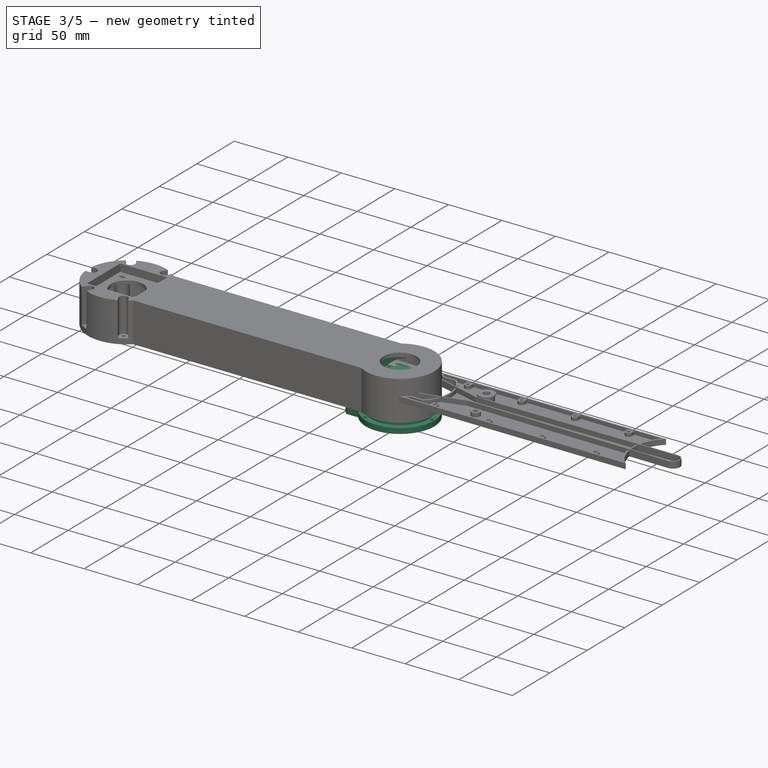
[diagram: stage 3 of 5 — iso view after this stage's code; geometry added in this stage tinted green]
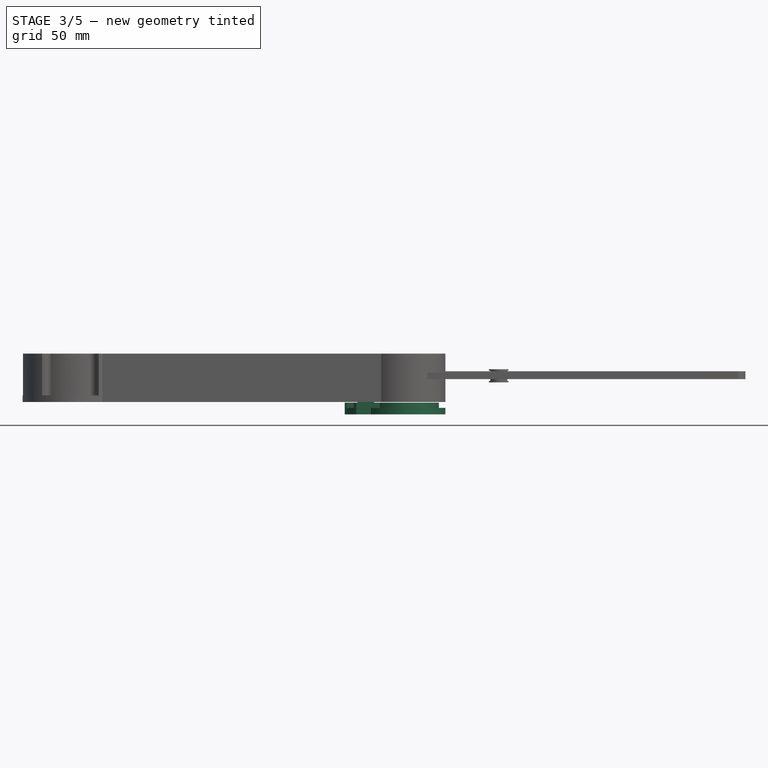
[diagram: stage 3 of 5 — front view after this stage's code; geometry added in this stage tinted green]
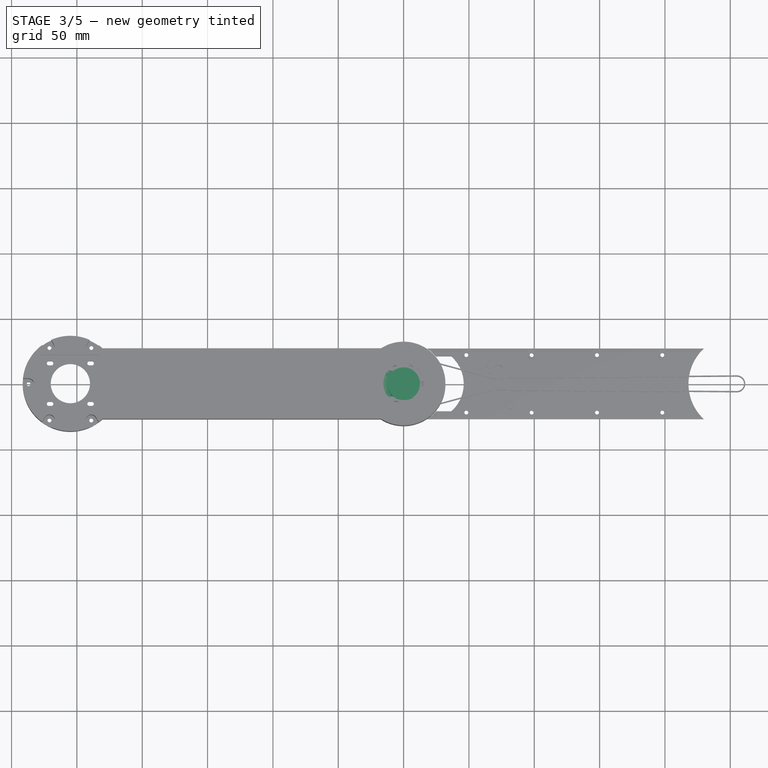
[diagram: stage 3 of 5 — top view after this stage's code; geometry added in this stage tinted green]
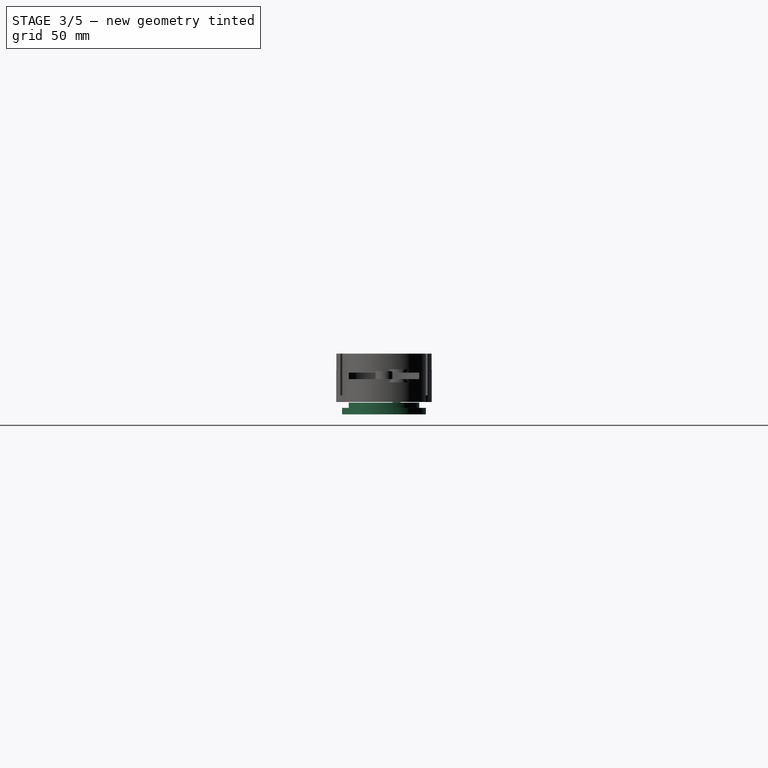
[diagram: stage 3 of 5 — right view after this stage's code; geometry added in this stage tinted green]
FEATURE [Sketcher::SketchObject] Sketch045
  ArcFitTolerance = 1e-06
  AttachmentSupport = -> [Revolution003]
  FullyConstrained = true
  MakeInternals = false
  MapMode = 5
  Placement = pos=(9e-15,-3e-15,-27) rot=(0.707107,0.707107,0;3.14159rad)
  expr: Constraints[1] = <<Spreadsheet>>.StepperScrewHole
  sketch-geometry (1):
    g0: Circle CenterX=0 CenterY=29.53 CenterZ=0 NormalX=0 NormalY=0 NormalZ=1 AngleXU=0 Radius=1.5
  constraints (3):
    c: PointOnObject(g0,g-2)
    c: Diameter(g0) = 3
    c: DistanceY(g-1,g0) = 29.53
FEATURE [PartDesign::Pocket] Pocket012
  BaseFeature = -> Revolution003
  Direction = (0,0,1)
  Length = 5
  Length2 = 5
  Placement = pos=(0,0,0) rot=(1,1,1;2.0944rad)
  Profile = -> Sketch045
  ReferenceAxis = -> Sketch045 [N_Axis]
  Refine = true
  Suppressed = false
  Type = 1
FEATURE [PartDesign::PolarPattern] PolarPattern002
  Angle = 360
  Axis = -> Sketch045 [N_Axis]
  BaseFeature = -> Pocket012
  Mode = 0
  Occurrences = 3
  Offset = 120
  Originals = -> [Pocket012]
  Placement = pos=(0,0,0) rot=(1,1,1;2.0944rad)
  Refine = true
  Suppressed = false
  TransformMode = 0
FEATURE [App::Link] Link001  label="Bearing6808-2RS001"
  LinkPlacement = pos=(1.2e-15,-8.34465e-07,-14) rot=(0,0,1;0rad)
  LinkedObject = -> Body003
  Placement = pos=(1.2e-15,-8.34465e-07,-14) rot=(0,0,1;0rad)
  _LinkOwner = 3808
FEATURE [App::Link] Link002  label="Bottom001"
  LinkPlacement = pos=(5,-9.93398e-07,7) rot=(0,0,1;3.14159rad)
  LinkedObject = -> Body004
  Placement = pos=(5,-9.93398e-07,7) rot=(0,0,1;3.14159rad)
  _LinkOwner = 3808
FEATURE [PartDesign::ShapeBinder] CopyPocket
  TraceSupport = false
FEATURE [Sketcher::SketchObject] Sketch025
  ArcFitTolerance = 1e-06
  AttachmentSupport = -> [CopyPocket]
  FullyConstrained = true
  MakeInternals = false
  MapMode = 5
  Placement = pos=(0,0,19.5) rot=(0,0,1;0rad)
  expr: Constraints[1] = <<Spreadsheet>>.TopDiameter
  sketch-geometry (1):
    g0: Circle CenterX=0 CenterY=0 CenterZ=0 NormalX=0 NormalY=0 NormalZ=1 AngleXU=0 Radius=32
  constraints (2):
    c: Coincident(g0,g-1)
    c: Diameter(g0) = 64
FEATURE [PartDesign::Pad] Pad016
  Direction = (0,0,1)
  Length = 37
  Length2 = 10
  Profile = -> Sketch025
  ReferenceAxis = -> Sketch025 [N_Axis]
  Refine = true
  Reversed = true
  Suppressed = false
  Type = 0
  expr: Length = <<Spreadsheet>>.SecondArmHeight
FEATURE [Sketcher::SketchObject] Sketch026
  ArcFitTolerance = 1e-06
  AttachmentSupport = -> [Pad016]
  FullyConstrained = true
  MakeInternals = false
  MapMode = 5
  Placement = pos=(0,0,-17.5) rot=(1,0,0;3.14159rad)
  expr: Constraints[1] = <<Spreadsheet>>.TopBearingDiameter
  sketch-geometry (1):
    g0: Circle CenterX=0 CenterY=0 CenterZ=0 NormalX=0 NormalY=0 NormalZ=1 AngleXU=0 Radius=18.5
  constraints (2):
    c: Coincident(g0,g-1)
    c: Diameter(g0) = 37
FEATURE [PartDesign::Pocket] Pocket001
  BaseFeature = -> Pad016
  Direction = (0,0,1)
  Length = 35
  Length2 = 5
  Profile = -> Sketch026
  ReferenceAxis = -> Sketch026 [N_Axis]
  Refine = true
  Suppressed = false
  Type = 0
  expr: Length = <<Spreadsheet>>.SecondArmHeight - <<Spreadsheet>>.TopThickness
FEATURE [Sketcher::SketchObject] Sketch027
  ArcFitTolerance = 1e-06
  AttachmentSupport = -> [Pocket001]
  FullyConstrained = true
  MakeInternals = false
  MapMode = 5
  Placement = pos=(0,0,-17.5) rot=(1,0,0;3.14159rad)
  expr: Constraints[1] = <<Spreadsheet>>.TopThrustBearingDiameter + 6
  sketch-geometry (1):
    g0: Circle CenterX=0 CenterY=0 CenterZ=0 NormalX=0 NormalY=0 NormalZ=1 AngleXU=0 Radius=26.5
  constraints (2):
    c: Coincident(g0,g-1)
    c: Diameter(g0) = 53
FEATURE [PartDesign::Pocket] Pocket002
  BaseFeature = -> Pocket001
  Direction = (0,0,1)
  Length = 27
  Length2 = 5
  Profile = -> Sketch027
  ReferenceAxis = -> Sketch027 [N_Axis]
  Refine = true
  Suppressed = false
  Type = 0
  expr: Length = <<Spreadsheet>>.SecondArmHeight - <<Spreadsheet>>.TopThickness - <<Spreadsheet>>.TopBearingHeight
FEATURE [Sketcher::SketchObject] Sketch028
  ArcFitTolerance = 1e-06
  AttachmentSupport = -> [Pocket002]
  FullyConstrained = true
  MakeInternals = false
  MapMode = 5
  Placement = pos=(0,0,19.5) rot=(0,0,1;0rad)
  expr: Constraints[1] = <<Spreadsheet>>.TopBearingHole + 6
  sketch-geometry (1):
    g0: Circle CenterX=0 CenterY=0 CenterZ=0 NormalX=0 NormalY=0 NormalZ=1 AngleXU=0 Radius=15.5
  constraints (2):
    c: Coincident(g0,g-1)
    c: Diameter(g0) = 31
FEATURE [PartDesign::Pocket] Pocket003
  BaseFeature = -> Pocket002
  Direction = (0,0,-1)
  Length = 5
  Length2 = 5
  Profile = -> Sketch028
  ReferenceAxis = -> Sketch028 [N_Axis]
  Refine = true
  Suppressed = false
  Type = 1
FEATURE [Sketcher::SketchObject] Sketch030
  ArcFitTolerance = 1e-06
  AttachmentSupport = -> [Pocket003]
  FullyConstrained = true
  MakeInternals = false
  MapMode = 5
  Placement = pos=(0,0,19.5) rot=(0,0,1;0rad)
  expr: Constraints[10] = <<Spreadsheet>>.TopFaceSize
  expr: Constraints[11] = <<Spreadsheet>>.TopFaceWidth + 4
  expr: Constraints[12] = (<<Spreadsheet>>.TopFaceWidth + 4) / 2
  expr: Constraints[1] = <<Spreadsheet>>.TopDiameter
  sketch-geometry (5):
    g0: ArcOfCircle CenterX=0 CenterY=0 CenterZ=0 NormalX=0 NormalY=0 NormalZ=1 AngleXU=0 Radius=32 StartAngle=2.13736 EndAngle=4.14582
    g1: LineSegment StartX=-17.1756 StartY=27 StartZ=0 EndX=-200 EndY=27 EndZ=0
    g2: LineSegment StartX=-200 StartY=27 StartZ=0 EndX=-200 EndY=-27 EndZ=0
    g3: LineSegment StartX=-200 StartY=-27 StartZ=0 EndX=-17.1756 EndY=-27 EndZ=0
    g4: GeomPoint [constr] X=0 Y=0 Z=0
  constraints (13):
    c: Coincident(g0,g-1)
    c: Diameter(g0) = 64
    c: Coincident(g1,g2)
    c: Coincident(g2,g3)
    c: Vertical(g2)
    c: Horizontal(g1)
    c: Horizontal(g3)
    c: Coincident(g4,g0)
    c: Coincident(g1,g0)
    c: Coincident(g3,g0)
    c: Distance(g-2,g2) = 200
    c: DistanceY(g2,g2) = 54
    c: Distance(g-1,g1) = 27
FEATURE [PartDesign::Pad] Pad018
  BaseFeature = -> Pocket003
  Direction = (0,0,1)
  Length = 37
  Length2 = 10
  Profile = -> Sketch030
  ReferenceAxis = -> Sketch030 [N_Axis]
  Refine = true
  Reversed = true
  Suppressed = false
  Type = 0
  expr: Length = <<Spreadsheet>>.SecondArmHeight
FEATURE [PartDesign::Body] Body002  label="MainShaft"
  AllowCompound = false
  Group = -> [Sketch,Revolution001,SketchGear,Pad,Sketch039,Pocket009,PolarPattern,Sketch040,Pad019,Sketch048,Pocket013,Sketch049,Pad021]
  Origin = -> Origin008
  Placement = pos=(5,-3.3e-15,6.96221) rot=(0,0,1;0rad)
  Tip = -> Pad021
FEATURE [Part::Feature] Part__Feature002  label="Limit Switch 2"
  shape: bbox 21.15 x 24.44 x 6.15 mm, 72 faces (baked)
FEATURE [Part::Feature] Part__Feature003  label="Limit Switch 003"
  shape: bbox 4.6 x 4.6 x 3.2 mm, 4 faces (baked)
FEATURE [App::Part] Limit_Switch_2  label="Limit Switch 004"
  Group = -> [Part__Feature002,Part__Feature003]
  Origin = -> Origin011
  Placement = pos=(36.5,-4e-16,-7.5) rot=(0,0,1;1.5708rad)
FEATURE [Sketcher::SketchObject] Sketch051
  ArcFitTolerance = 1e-06
  AttachmentSupport = -> [PolarPattern002]
  FullyConstrained = true
  MakeInternals = false
  MapMode = 5
  Placement = pos=(1.8e-14,-6e-15,-27) rot=(0.707107,0.707107,0;3.14159rad)
  sketch-geometry (4):
    g0: ArcOfCircle CenterX=0 CenterY=0 CenterZ=0 NormalX=0 NormalY=0 NormalZ=1 AngleXU=0 Radius=27 StartAngle=3.87822 EndAngle=5.54656
    g1: ArcOfCircle CenterX=0 CenterY=-18 CenterZ=0 NormalX=0 NormalY=0 NormalZ=1 AngleXU=0 Radius=27 StartAngle=3.87822 EndAngle=5.54656
    g2: LineSegment StartX=-20 StartY=-18.1384 StartZ=0 EndX=-20 EndY=-36.1384 EndZ=0
    g3: LineSegment StartX=20 StartY=-18.1384 StartZ=0 EndX=20 EndY=-36.1384 EndZ=0
  constraints (13):
    c: Coincident(g0,g-1)
    c: Radius(g1) = 27
    c: Coincident(g2,g0)
    c: Coincident(g2,g1)
    c: Vertical(g2)
    c: Coincident(g3,g0)
    c: Coincident(g3,g1)
    c: Vertical(g3)
    c: Radius(g0) = 27
    c: Vertical(g1,g0)
    c: DistanceY(g1,g-1) = 18
    c: Distance(g-2,g2) = 20
    c: Distance(g-2,g3) = 20
FEATURE [PartDesign::Pad] Pad022
  BaseFeature = -> PolarPattern002
  Direction = (0,0,-1)
  Length = 9
  Length2 = 10
  Placement = pos=(0,0,0) rot=(1,1,1;2.0944rad)
  Profile = -> Sketch051
  ReferenceAxis = -> Sketch051 [N_Axis]
  Refine = true
  Reversed = true
  Suppressed = false
  Type = 0
FEATURE [Sketcher::SketchObject] Sketch052
  ArcFitTolerance = 1e-06
  AttachmentSupport = -> [Pad022]
  FullyConstrained = false
  MakeInternals = false
  MapMode = 5
  Placement = pos=(2e-15,-1.12e-14,-18) rot=(0,0,-1;1.5708rad)
  sketch-geometry (4):
    g0: LineSegment StartX=-6.5 StartY=-25 StartZ=0 EndX=-6.5 EndY=-35.2461 EndZ=0
    g1: ArcOfCircle CenterX=0 CenterY=0 CenterZ=0 NormalX=0 NormalY=0 NormalZ=1 AngleXU=0 Radius=25.8312 StartAngle=4.19622 EndAngle=4.45802
    g2: ArcOfCircle CenterX=-1e-06 CenterY=-10.2461 CenterZ=0 NormalX=0 NormalY=0 NormalZ=1 AngleXU=0 Radius=25.8312 StartAngle=4.19622 EndAngle=4.45802
    g3: LineSegment StartX=-12.749 StartY=-22.4658 StartZ=0 EndX=-12.749 EndY=-32.712 EndZ=0
  constraints (6):
    c: Vertical(g0)
    c: Angle(g1) = 0.261799
    c: Coincident(g1,g3)
    c: Coincident(g2,g3)
    c: Coincident(g0,g1)
    c: Coincident(g0,g2)
FEATURE [PartDesign::Pad] Pad023
  BaseFeature = -> Pad022
  Direction = (0,0,1)
  Length = 6
  Length2 = 10
  Placement = pos=(0,0,0) rot=(1,1,1;2.0944rad)
  Profile = -> Sketch052
  ReferenceAxis = -> Sketch052 [N_Axis]
  Refine = true
  Suppressed = false
  Type = 0
FEATURE [Sketcher::SketchObject] Sketch053
  ArcFitTolerance = 1e-06
  FullyConstrained = true
  MakeInternals = false
  MapMode = 5
  Placement = pos=(1.33e-14,-1.27e-14,-17.5451) rot=(0,0,-1;1.5708rad)
  sketch-geometry (2):
    g0: Circle CenterX=3.25 CenterY=-32.25 CenterZ=0 NormalX=0 NormalY=0 NormalZ=1 AngleXU=0 Radius=1.25
    g1: Circle CenterX=-3.25 CenterY=-32.25 CenterZ=0 NormalX=0 NormalY=0 NormalZ=1 AngleXU=0 Radius=1.25
  constraints (6):
    c: Diameter(g0) = 2.5
    c: Diameter(g1) = 2.5
    c: Distance(g1,g-2) = 3.25
    c: Distance(g0,g-2) = 3.25
    c: DistanceY(g1,g-1) = 32.25
    c: Horizontal(g0,g1)
FEATURE [PartDesign::Pocket] Pocket014
  BaseFeature = -> Pad023
  Direction = (0,0,-1)
  Length = 5
  Length2 = 5
  Placement = pos=(0,0,0) rot=(1,1,1;2.0944rad)
  Profile = -> Sketch053
  ReferenceAxis = -> Sketch053 [N_Axis]
  Refine = true
  Suppressed = false
  Type = 0
FEATURE [PartDesign::Body] Body007  label="SecondShaftUpper"
  AllowCompound = false
  Group = -> [Sketch071,Pad029,Sketch072,Pad030,Sketch073,Pocket027,Sketch074,Pocket028]
  Origin = -> Origin014
  Placement = pos=(0,-1.22786e-05,103) rot=(0,0,1;0rad)
  Tip = -> Pocket028
FEATURE [App::Link] Link006  label="Nema17"
  LinkPlacement = pos=(260,4.71478e-05,49.5) rot=(0.707107,0.707107,0;3.14159rad)
  LinkedObject = -> Link005
  Placement = pos=(260,4.71478e-05,49.5) rot=(0.707107,0.707107,0;3.14159rad)
  _LinkOwner = 3808
FEATURE [App::Link] Link005  label="MainStepper"
  LinkedObject = -> <external MainStepper.FCStd>#LinkGroup
FEATURE [Part::Feature] Part__Feature004  label="Limit switch001"
  Placement = pos=(26.5,7e-16,-4.5) rot=(1,0,0;3.14159rad)
  shape: bbox 20 x 15.2 x 6.6 mm, 68 faces (baked)
FEATURE [Sketcher::SketchObject] Sketch075
  ArcFitTolerance = 1e-06
  AttachmentSupport = -> [Pocket014]
  FullyConstrained = false
  MakeInternals = false
  MapMode = 5
  Placement = pos=(1.4e-14,-1.52e-14,-18) rot=(0,0,-1;1.5708rad)
  sketch-geometry (4):
    g0: LineSegment StartX=8 StartY=1.39844 StartZ=0 EndX=8 EndY=-49.3231 EndZ=0
    g1: LineSegment StartX=8 StartY=-49.3231 StartZ=0 EndX=18 EndY=-49.3231 EndZ=0
    g2: LineSegment StartX=18 StartY=-49.3231 StartZ=0 EndX=18 EndY=1.39844 EndZ=0
    g3: LineSegment StartX=18 StartY=1.39844 StartZ=0 EndX=8 EndY=1.39844 EndZ=0
  constraints (10):
    c: Coincident(g0,g1)
    c: Coincident(g1,g2)
    c: Coincident(g2,g3)
    c: Coincident(g3,g0)
    c: Vertical(g0)
    c: Vertical(g2)
    c: Horizontal(g1)
    c: Horizontal(g3)
    c: Distance(g-2,g2) = 18
    c: Distance(g-2,g0) = 8
FEATURE [PartDesign::Pocket] Pocket029
  BaseFeature = -> Pocket014
  Direction = (0,0,-1)
  Length = 4
  Length2 = 5
  Placement = pos=(0,0,0) rot=(1,1,1;2.0944rad)
  Profile = -> Sketch075
  ReferenceAxis = -> Sketch075 [N_Axis]
  Refine = true
  Suppressed = false
  Type = 0
FEATURE [PartDesign::Body] Body004  label="Bottom"
  AllowCompound = false
  Group = -> [Sketch042,Revolution003,Sketch045,Pocket012,PolarPattern002,Sketch051,Pad022,Sketch052,Pad023,Sketch053,Pocket014,Sketch075,Pocket029]
  Origin = -> Origin010
  Tip = -> Pocket029
FEATURE [Sketcher::SketchObject] Sketch076
  ArcFitTolerance = 1e-06
  AttachmentSupport = -> [XY_Plane013]
  FullyConstrained = true
  MakeInternals = false
  MapMode = 5
  sketch-geometry (1):
    g0: Circle CenterX=0 CenterY=0 CenterZ=0 NormalX=0 NormalY=0 NormalZ=1 AngleXU=0 Radius=12.5
  constraints (2):
    c: Diameter(g0) = 25
    c: Coincident(g0,g-1)
FEATURE [PartDesign::Pad] Pad031
  Direction = (0,0,1)
  Length = 10
  Length2 = 10
  Profile = -> Sketch076
  ReferenceAxis = -> Sketch076 [N_Axis]
  Refine = true
  Suppressed = false
  Type = 0
FEATURE [Sketcher::SketchObject] Sketch077
  ArcFitTolerance = 1e-06
  AttachmentSupport = -> [Pad031]
  FullyConstrained = true
  MakeInternals = false
  MapMode = 5
  Placement = pos=(0,0,0) rot=(1,0,0;3.14159rad)
  sketch-geometry (1):
    g0: Circle CenterX=0 CenterY=0 CenterZ=0 NormalX=0 NormalY=0 NormalZ=1 AngleXU=0 Radius=25
  constraints (2):
    c: Diameter(g0) = 50
    c: Coincident(g0,g-1)
FEATURE [PartDesign::Pad] Pad032
  BaseFeature = -> Pad031
  Direction = (0,0,-1)
  Length = 4
  Length2 = 10
  Profile = -> Sketch077
  ReferenceAxis = -> Sketch077 [N_Axis]
  Refine = true
  Suppressed = false
  Type = 0
FEATURE [Sketcher::SketchObject] Sketch078
  ArcFitTolerance = 1e-06
  AttachmentSupport = -> [Pad032]
  FullyConstrained = true
  MakeInternals = false
  MapMode = 5
  sketch-geometry (4):
    g0: ArcOfCircle CenterX=-16.0104 CenterY=16.0104 CenterZ=0 NormalX=0 NormalY=0 NormalZ=1 AngleXU=0 Radius=1.5 StartAngle=0.785398 EndAngle=3.92699
    g1: ArcOfCircle CenterX=-10 CenterY=10 CenterZ=0 NormalX=0 NormalY=0 NormalZ=1 AngleXU=0 Radius=1.5 StartAngle=3.92699 EndAngle=7.06858
    g2: LineSegment StartX=-14.9497 StartY=17.0711 StartZ=0 EndX=-8.93934 EndY=11.0607 EndZ=0
    g3: LineSegment StartX=-17.0711 StartY=14.9497 StartZ=0 EndX=-11.0607 EndY=8.93934 EndZ=0
  constraints (10):
    c: Tangent(g0,g2) = 1.5708
    c: Tangent(g0,g3) = -1.5708
    c: Tangent(g1,g2) = 1.5708
    c: Tangent(g1,g3) = -1.5708
    c: Equal(g0,g1)
    c: Distance(g0,g1) = 8.5
    c: Angle(g-1,g2) = -0.785398
    c: Radius(g0) = 1.5
    c: DistanceX(g1,g-1) = 10
    c: DistanceY(g-1,g1) = 10
FEATURE [PartDesign::Pocket] Pocket030
  BaseFeature = -> Pad032
  Direction = (0,0,-1)
  Length = 5
  Length2 = 5
  Profile = -> Sketch078
  ReferenceAxis = -> Sketch078 [N_Axis]
  Refine = true
  Suppressed = false
  Type = 0
FEATURE [PartDesign::PolarPattern] PolarPattern
  Angle = 360
  Axis = -> Sketch014 [N_Axis]
  BaseFeature = -> Pocket
  Mode = 0
  Occurrences = 6
  Offset = 120
  Originals = -> [Pocket]
  Placement = pos=(0,0,0) rot=(1,0,0;1.5708rad)
  Refine = true
  Suppressed = false
  TransformMode = 0
FEATURE [Sketcher::SketchObject] Sketch015
  ArcFitTolerance = 1e-06
  AttachmentSupport = -> [PolarPattern]
  FullyConstrained = false
  MakeInternals = false
  MapMode = 5
  Placement = pos=(0,1.76e-14,40) rot=(0,0,1;3.14159rad)
  expr: Constraints[10] = <<SpreadSheet>>.ContactArmLength
  expr: Constraints[5] = <<SpreadSheet>>.ContactArmWith / 2
  expr: Constraints[6] = <<SpreadSheet>>.ContactArmWith / 2
  expr: Constraints[8] = <<SpreadSheet>>.OuterDiameter
  sketch-geometry (6):
    g0: LineSegment StartX=-27 StartY=51 StartZ=0 EndX=-27 EndY=36 EndZ=0
    g1: LineSegment StartX=27 StartY=36 StartZ=0 EndX=27 EndY=51 EndZ=0
    g2: LineSegment StartX=27 StartY=51 StartZ=0 EndX=-27 EndY=51 EndZ=0
    g3: ArcOfCircle CenterX=0 CenterY=0 CenterZ=0 NormalX=0 NormalY=0 NormalZ=1 AngleXU=0 Radius=45 StartAngle=0.927295 EndAngle=1.07621
    g4: LineSegment StartX=-21.36 StartY=39.6075 StartZ=0 EndX=21.36 EndY=39.6075 EndZ=0
    g5: ArcOfCircle CenterX=0 CenterY=0 CenterZ=0 NormalX=0 NormalY=0 NormalZ=1 AngleXU=0 Radius=45 StartAngle=2.06538 EndAngle=2.2143
  constraints (17):
    c: Coincident(g1,g2)
    c: Coincident(g2,g0)
    c: Vertical(g0)
    c: Vertical(g1)
    c: Horizontal(g2)
    c: Distance(g-2,g0) = 27
    c: Distance(g-2,g1) = 27
    c: Coincident(g3,g-1)
    c: Diameter(g3) = 90
    c: Coincident(g3,g1)
    c: DistanceY(g1,g1) = 15
    c: Coincident(g0,g5)
    c: Horizontal(g4)
    c: Equal(g3,g5)
    c: Coincident(g3,g4)
    c: Coincident(g3,g5)
    c: Coincident(g4,g5)
FEATURE [PartDesign::Pad] Pad
  BaseFeature = -> PolarPattern
  Direction = (0,0,1)
  Length = 40
  Length2 = 10
  Placement = pos=(0,0,0) rot=(1,0,0;1.5708rad)
  Profile = -> Sketch015
  ReferenceAxis = -> Sketch015 [N_Axis]
  Refine = true
  Reversed = true
  Suppressed = false
  Type = 0
  expr: Length = <<SpreadSheet>>.FirstArmHeight
FEATURE [Sketcher::SketchObject] Sketch016
  ArcFitTolerance = 1e-06
  AttachmentSupport = -> [Pad]
  FullyConstrained = false
  MakeInternals = false
  MapMode = 5
  Placement = pos=(0,-51,1.12e-14) rot=(1,0,0;1.5708rad)
  sketch-geometry (5):
    g0: LineSegment StartX=10.8116 StartY=13.4418 StartZ=0 EndX=10.8116 EndY=40.8754 EndZ=0
    g1: LineSegment StartX=10.8116 StartY=40.8754 StartZ=0 EndX=-10.8116 EndY=40.8754 EndZ=0
    g2: LineSegment StartX=-10.8116 StartY=40.8754 StartZ=0 EndX=-10.8116 EndY=13.4418 EndZ=0
    g3: LineSegment StartX=-10.8116 StartY=13.4418 StartZ=0 EndX=10.8116 EndY=13.4418 EndZ=0
    g4: GeomPoint [constr] X=0 Y=27.1586 Z=0
  constraints (10):
    c: Coincident(g0,g1)
    c: Coincident(g1,g2)
    c: Coincident(g2,g3)
    c: Coincident(g3,g0)
    c: Vertical(g0)
    c: Vertical(g2)
    c: Horizontal(g1)
    c: Horizontal(g3)
    c: Symmetric(g2,g0,g4)
    c: PointOnObject(g4,g-2)
FEATURE [PartDesign::Pocket] Pocket001
  BaseFeature = -> Pad
  Direction = (0,1,-2e-16)
  Length = 35
  Length2 = 5
  Placement = pos=(0,0,0) rot=(1,0,0;1.5708rad)
  Profile = -> Sketch016
  ReferenceAxis = -> Sketch016 [N_Axis]
  Refine = true
  Suppressed = false
  Type = 0
FEATURE [Sketcher::SketchObject] Sketch018
  ArcFitTolerance = 1e-06
  AttachmentSupport = -> [Revolution001]
  FullyConstrained = true
  MakeInternals = false
  MapMode = 5
  Placement = pos=(0,2.2e-15,5) rot=(0,0,1;3.14159rad)
  sketch-geometry (1):
    g0: Circle CenterX=0 CenterY=19 CenterZ=0 NormalX=0 NormalY=0 NormalZ=1 AngleXU=0 Radius=1.5
  constraints (3):
    c: Diameter(g0) = 3
    c: Vertical(g0,g-1)
    c: DistanceY(g-1,g0) = 19
FEATURE [PartDesign::Pocket] Pocket002
  BaseFeature = -> Revolution001
  Direction = (0,0,-1)
  Length = 5
  Length2 = 5
  Placement = pos=(0,0,0) rot=(1,0,0;1.5708rad)
  Profile = -> Sketch018
  ReferenceAxis = -> Sketch018 [N_Axis]
  Refine = true
  Suppressed = false
  Type = 0
FEATURE [PartDesign::PolarPattern] PolarPattern001
  Angle = 360
  Axis = -> Sketch018 [N_Axis]
  BaseFeature = -> Pocket002
  Mode = 0
  Occurrences = 6
  Offset = 120
  Originals = -> [Pocket002]
  Placement = pos=(0,0,0) rot=(1,0,0;1.5708rad)
  Refine = true
  Suppressed = false
  TransformMode = 0
FEATURE [Sketcher::SketchObject] Sketch019
  ArcFitTolerance = 1e-06
  AttachmentSupport = -> [PolarPattern001]
  FullyConstrained = false
  MakeInternals = false
  MapMode = 5
  Placement = pos=(0,1.41e-14,32) rot=(0,0,1;3.14159rad)
  sketch-geometry (4):
    g0: LineSegment StartX=-47.2167 StartY=21 StartZ=0 EndX=-47.2167 EndY=-21 EndZ=0
    g1: LineSegment StartX=-47.2167 StartY=-21 StartZ=0 EndX=-3.0924 EndY=-21 EndZ=0
    g2: LineSegment StartX=-3.0924 StartY=-21 StartZ=0 EndX=-3.0924 EndY=21 EndZ=0
    g3: LineSegment StartX=-3.0924 StartY=21 StartZ=0 EndX=-47.2167 EndY=21 EndZ=0
  constraints (10):
    c: Coincident(g0,g1)
    c: Coincident(g1,g2)
    c: Coincident(g2,g3)
    c: Coincident(g3,g0)
    c: Vertical(g0)
    c: Vertical(g2)
    c: Horizontal(g1)
    c: Horizontal(g3)
    c: Distance(g-1,g3) = 21
    c: Distance(g-1,g1) = 21
FEATURE [PartDesign::Pocket] Pocket003
  BaseFeature = -> PolarPattern001
  Direction = (0,0,-1)
  Length = 27
  Length2 = 5
  Placement = pos=(0,0,0) rot=(1,0,0;1.5708rad)
  Profile = -> Sketch019
  ReferenceAxis = -> Sketch019 [N_Axis]
  Refine = true
  Suppressed = false
  Type = 0
FEATURE [Sketcher::SketchObject] Sketch020
  ArcFitTolerance = 1e-06
  AttachmentSupport = -> [Pocket003]
  FullyConstrained = true
  MakeInternals = false
  MapMode = 5
  Placement = pos=(0,1.41e-14,32) rot=(0,0,1;3.14159rad)
  sketch-geometry (3):
    g0: Circle CenterX=0 CenterY=27 CenterZ=0 NormalX=0 NormalY=0 NormalZ=1 AngleXU=0 Radius=3
    g1: Circle CenterX=0 CenterY=-27 CenterZ=0 NormalX=0 NormalY=0 NormalZ=1 AngleXU=0 Radius=3
    g2: Circle CenterX=27 CenterY=0 CenterZ=0 NormalX=0 NormalY=0 NormalZ=1 AngleXU=0 Radius=3
  constraints (9):
    c: PointOnObject(g0,g-2)
    c: Diameter(g0) = 6
    c: DistanceY(g-1,g0) = 27
    c: PointOnObject(g1,g-2)
    c: PointOnObject(g2,g-1)
    c: Diameter(g2) = 6
    c: Diameter(g1) = 6
    c: DistanceX(g-1,g2) = 27
    c: DistanceY(g1,g-1) = 27
FEATURE [PartDesign::Pocket] Pocket004
  BaseFeature = -> Pocket003
  Direction = (0,0,-1)
  Length = 20
  Length2 = 5
  Placement = pos=(0,0,0) rot=(1,0,0;1.5708rad)
  Profile = -> Sketch020
  ReferenceAxis = -> Sketch020 [N_Axis]
  Refine = true
  Suppressed = false
  Type = 0
FEATURE [Sketcher::SketchObject] Sketch023
  ArcFitTolerance = 1e-06
  AttachmentSupport = -> [Revolution002]
  FullyConstrained = true
  MakeInternals = false
  MapMode = 5
  Placement = pos=(0,2.2e-15,5) rot=(0,0,1;3.14159rad)
  sketch-geometry (1):
    g0: Circle CenterX=0 CenterY=19 CenterZ=0 NormalX=0 NormalY=0 NormalZ=1 AngleXU=0 Radius=1.5
  constraints (3):
    c: Diameter(g0) = 3
    c: Vertical(g0,g-1)
    c: DistanceY(g-1,g0) = 19
FEATURE [PartDesign::Pocket] Pocket006
  BaseFeature = -> Revolution002
  Direction = (0,0,-1)
  Length = 5
  Length2 = 5
  Placement = pos=(0,0,0) rot=(1,0,0;1.5708rad)
  Profile = -> Sketch023
  ReferenceAxis = -> Sketch023 [N_Axis]
  Refine = true
  Suppressed = false
  Type = 0
FEATURE [PartDesign::PolarPattern] PolarPattern002
  Angle = 360
  Axis = -> Sketch023 [N_Axis]
  BaseFeature = -> Pocket006
  Mode = 0
  Occurrences = 6
  Offset = 120
  Originals = -> [Pocket006]
  Placement = pos=(0,0,0) rot=(1,0,0;1.5708rad)
  Refine = true
  Suppressed = false
  TransformMode = 0
FEATURE [PartDesign::Body] Body004  label="MainArmRotatorV2_print"
  AllowCompound = false
  Group = -> [Sketch022,Revolution002,Sketch023,Pocket006,PolarPattern002,Sketch024,Pocket007,PolarPattern003]
  Origin = -> Origin004
  Placement = pos=(0,-3.45707e-06,29) rot=(0,0,1;0rad)
  Tip = -> PolarPattern003
FEATURE [Sketcher::SketchObject] Sketch025
  ArcFitTolerance = 1e-06
  AttachmentSupport = -> [XZ_Plane005]
  FullyConstrained = false
  MakeInternals = false
  MapMode = 5
  Placement = pos=(0,0,0) rot=(1,0,0;1.5708rad)
  sketch-geometry (4):
    g0: LineSegment StartX=14 StartY=0 StartZ=0 EndX=14 EndY=5 EndZ=0
    g1: LineSegment StartX=14 StartY=5 StartZ=0 EndX=36.5 EndY=5 EndZ=0
    g2: LineSegment StartX=36.5 StartY=5 StartZ=0 EndX=36.5 EndY=0 EndZ=0
    g3: LineSegment StartX=36.5 StartY=0 StartZ=0 EndX=14 EndY=0 EndZ=0
  constraints (11):
    c: Horizontal(g1)
    c: Coincident(g1,g2)
    c: PointOnObject(g2,g-1)
    c: Vertical(g2)
    c: Coincident(g2,g3)
    c: Coincident(g3,g0)
    c: Vertical(g0)
    c: Horizontal(g3)
    c: Distance(g-2,g0) = 14
    c: Distance(g2,g2) = 5
    c: Distance(g-2,g2) = 36.5
FEATURE [PartDesign::Revolution] Revolution003
  Angle = 360
  Angle2 = 60
  Axis = (0,2e-16,1)
  Base = (0,0,0)
  Placement = pos=(0,0,0) rot=(1,0,0;1.5708rad)
  Profile = -> Sketch025
  ReferenceAxis = -> Sketch025 [V_Axis]
  Refine = true
  Reversed = true
  Suppressed = false
  Type = 0
FEATURE [Sketcher::SketchObject] Sketch027
  ArcFitTolerance = 1e-06
  AttachmentSupport = -> [PolarPattern004]
  FullyConstrained = true
  MakeInternals = false
  MapMode = 5
  Placement = pos=(0,1.1e-15,5) rot=(0,0,1;3.14159rad)
  sketch-geometry (1):
    g0: Circle CenterX=-32 CenterY=0 CenterZ=0 NormalX=0 NormalY=0 NormalZ=1 AngleXU=0 Radius=1.5
  constraints (3):
    c: Diameter(g0) = 3
    c: PointOnObject(g0,g-1)
    c: DistanceX(g0,g-1) = 32
FEATURE [PartDesign::Hole] Hole
  BaseFeature = -> PolarPattern004
  CustomThreadClearance = 0
  Depth = 5
  DepthType = 0
  Diameter = 2.5
  DrillForDepth = false
  DrillPoint = 0
  DrillPointAngle = 118
  HoleCutCountersinkAngle = 90
  HoleCutCustomValues = false
  HoleCutDepth = 0
  HoleCutDiameter = 6.1
  HoleCutType = 0
  ModelThread = true
  Placement = pos=(0,0,0) rot=(1,0,0;1.5708rad)
  Profile = -> Sketch027
  Refine = true
  Suppressed = false
  Tapered = false
  TaperedAngle = 90
  ThreadClass = 1
  ThreadDepth = 5
  ThreadDepthType = 0
  ThreadDirection = 0
  ThreadFit = 0
  ThreadSize = 9
  ThreadType = 1
  Threaded = true
  UseCustomThreadClearance = false
FEATURE [PartDesign::PolarPattern] PolarPattern005
  Angle = 360
  Axis = -> Sketch027 [N_Axis]
  BaseFeature = -> PolarPattern004
  Mode = 1
  Occurrences = 6
  Offset = 60
  Originals = -> [Hole]
  Placement = pos=(0,0,0) rot=(1,0,0;1.5708rad)
  Refine = true
  Suppressed = false
  TransformMode = 0
FEATURE [PartDesign::Body] Body005  label="MainArmRotatorV2"
  AllowCompound = false
  Group = -> [Sketch025,Revolution003,Sketch026,Pocket008,PolarPattern004,Sketch027,Hole,PolarPattern005]
  Origin = -> Origin005
  Placement = pos=(0,-3.45707e-06,29) rot=(0,0,1;0rad)
  Tip = -> PolarPattern005
---- part MainStepper.FCStd = doc fcstd_c11e43ba097e ----
FCSTD DOCUMENT  (FreeCAD 1.0R39319 (Git))
Label: MainStepper
License: All rights reserved
LicenseURL: https://en.wikipedia.org/wiki/All_rights_reserved
objects: Sketcher::SketchObject×4, PartDesign::Pad×3, PartDesign::Pocket×1, PartDesign::PolarPattern×1, PartDesign::Body×1, App::Link×1, App::LinkGroup×1
note: 23 computed .brp shape members not serialized (recipe doc carries the construction recipe); baked Part::Feature solids carry a one-line shape summary decoded from their .brp
EXTERNAL_REF file=GT2_20.FCStd obj=Gear

FEATURE [Sketcher::SketchObject] Sketch007
  ArcFitTolerance = 1e-06
  AttachmentSupport = -> [XY_Plane001]
  FullyConstrained = true
  MakeInternals = false
  MapMode = 5
  sketch-geometry (5):
    g0: LineSegment StartX=21 StartY=-21 StartZ=0 EndX=21 EndY=21 EndZ=0
    g1: LineSegment StartX=21 StartY=21 StartZ=0 EndX=-21 EndY=21 EndZ=0
    g2: LineSegment StartX=-21 StartY=21 StartZ=0 EndX=-21 EndY=-21 EndZ=0
    g3: LineSegment StartX=-21 StartY=-21 StartZ=0 EndX=21 EndY=-21 EndZ=0
    g4: GeomPoint [constr] X=0 Y=0 Z=0
  constraints (12):
    c: Coincident(g0,g1)
    c: Coincident(g1,g2)
    c: Coincident(g2,g3)
    c: Coincident(g3,g0)
    c: Vertical(g0)
    c: Vertical(g2)
    c: Horizontal(g1)
    c: Horizontal(g3)
    c: Symmetric(g2,g0,g4)
    c: Coincident(g4,g-1)
    c: Distance(g-1,g1) = 21
    c: Distance(g-2,g2) = 21
FEATURE [PartDesign::Pad] Pad005
  Direction = (0,0,1)
  Length = 34
  Length2 = 10
  Profile = -> Sketch007
  ReferenceAxis = -> Sketch007 [N_Axis]
  Refine = true
  Suppressed = false
  Type = 0
FEATURE [Sketcher::SketchObject] Sketch008
  ArcFitTolerance = 1e-06
  AttachmentSupport = -> [Pad005]
  FullyConstrained = true
  MakeInternals = false
  MapMode = 5
  Placement = pos=(0,0,34) rot=(0,0,1;0rad)
  sketch-geometry (1):
    g0: Circle CenterX=0 CenterY=0 CenterZ=0 NormalX=0 NormalY=0 NormalZ=1 AngleXU=0 Radius=2.5
  constraints (2):
    c: Coincident(g0,g-1)
    c: Diameter(g0) = 5
FEATURE [PartDesign::Pad] Pad006
  BaseFeature = -> Pad005
  Direction = (0,0,1)
  Length = 15
  Length2 = 10
  Profile = -> Sketch008
  ReferenceAxis = -> Sketch008 [N_Axis]
  Refine = true
  Suppressed = false
  Type = 0
FEATURE [Sketcher::SketchObject] Sketch009
  ArcFitTolerance = 1e-06
  AttachmentSupport = -> [Pad006]
  FullyConstrained = true
  MakeInternals = false
  MapMode = 5
  Placement = pos=(0,0,34) rot=(0,0,1;0rad)
  sketch-geometry (1):
    g0: Circle CenterX=-15.5 CenterY=15.5 CenterZ=0 NormalX=0 NormalY=0 NormalZ=1 AngleXU=0 Radius=1.5
  constraints (3):
    c: Distance(g0,g-2) = 15.5
    c: DistanceY(g-1,g0) = 15.5
    c: Diameter(g0) = 3
FEATURE [PartDesign::Pocket] Pocket002
  BaseFeature = -> Pad006
  Direction = (0,0,-1)
  Length = 5
  Length2 = 5
  Profile = -> Sketch009
  ReferenceAxis = -> Sketch009 [N_Axis]
  Refine = true
  Suppressed = false
  Type = 1
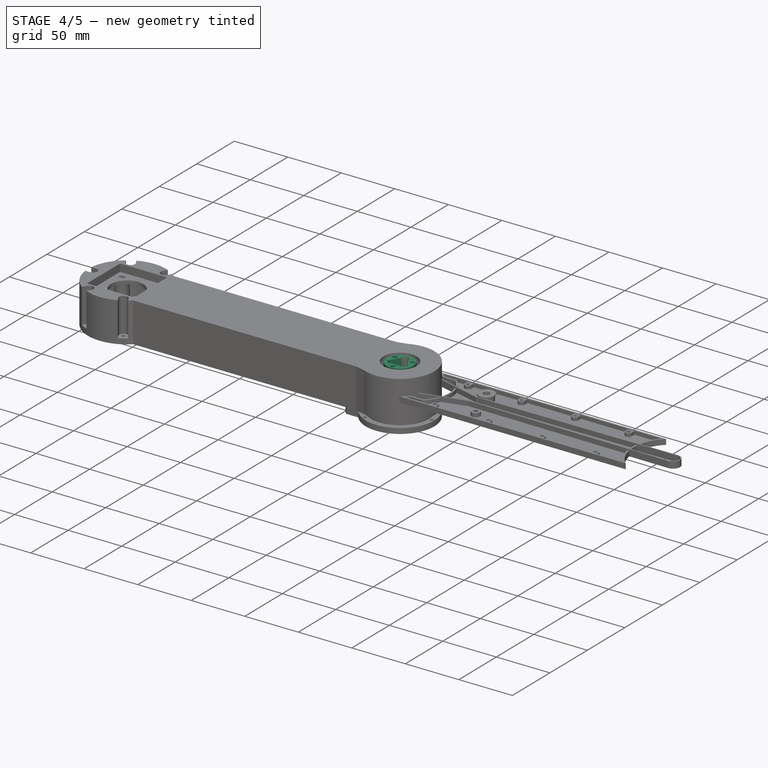
[diagram: stage 4 of 5 — iso view after this stage's code; geometry added in this stage tinted green]
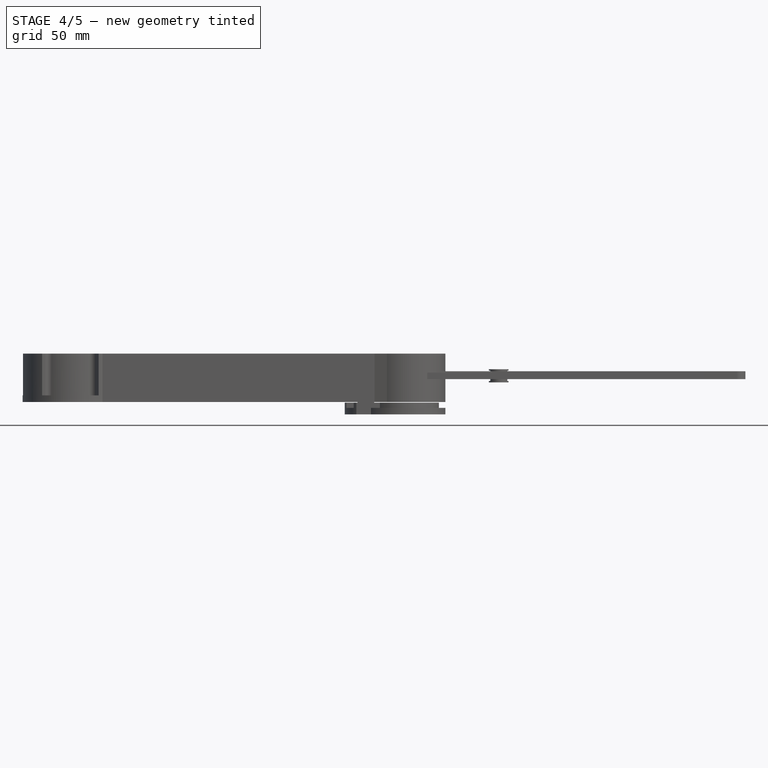
[diagram: stage 4 of 5 — front view after this stage's code; geometry added in this stage tinted green]
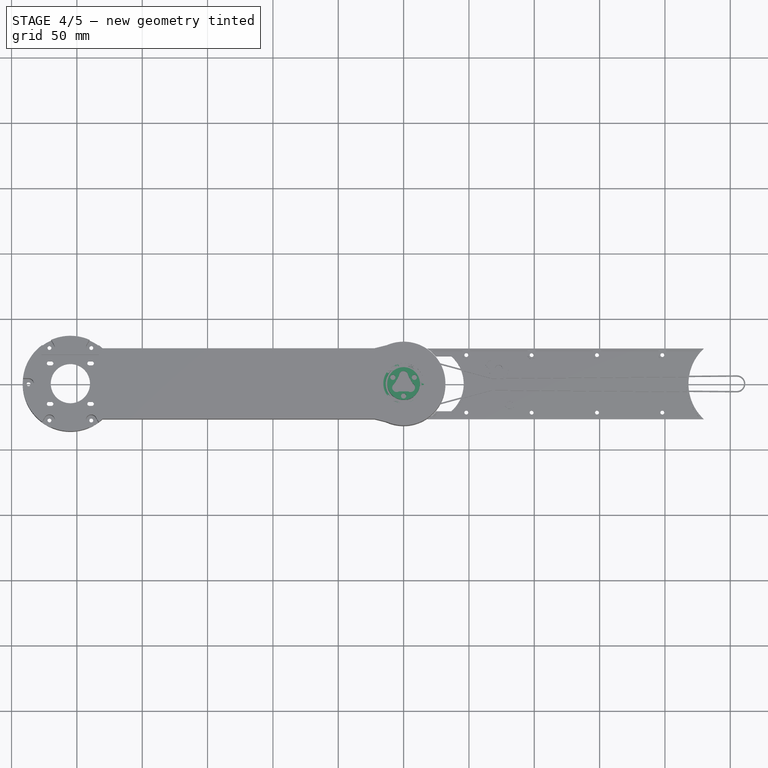
[diagram: stage 4 of 5 — top view after this stage's code; geometry added in this stage tinted green]
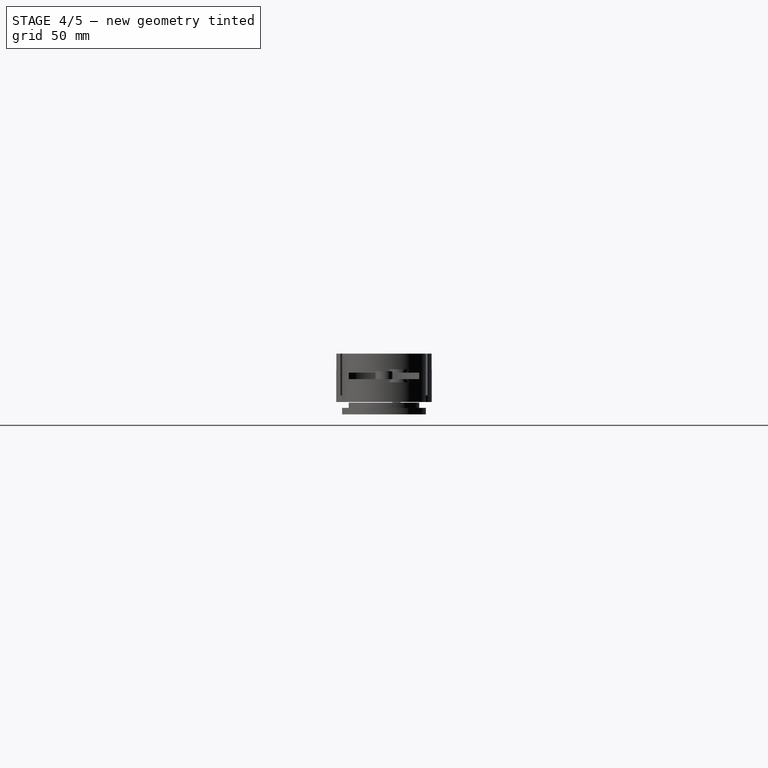
[diagram: stage 4 of 5 — right view after this stage's code; geometry added in this stage tinted green]
FEATURE [Sketcher::SketchObject] Sketch032
  ArcFitTolerance = 0
  AttachmentSupport = -> [YZ_Plane007]
  FullyConstrained = false
  MakeInternals = false
  MapMode = 5
  Placement = pos=(0,0,0) rot=(0.57735,0.57735,0.57735;2.0944rad)
  expr: Constraints[16] = <<Spreadsheet>>.TopBearingHole / 2
  expr: Constraints[17] = <<Spreadsheet>>.TopBearingDiameter / 2
  sketch-geometry (12):
    g0: LineSegment StartX=12.5 StartY=3.5 StartZ=0 EndX=12.5 EndY=-3.5 EndZ=0
    g1: LineSegment StartX=12.5 StartY=3.5 StartZ=0 EndX=13.75 EndY=3.5 EndZ=0
    g2: LineSegment StartX=13.75 StartY=3.5 StartZ=0 EndX=14 EndY=3.25 EndZ=0
    g3: LineSegment StartX=14 StartY=3.25 StartZ=0 EndX=17.25 EndY=3.25 EndZ=0
    g4: LineSegment StartX=17.25 StartY=3.25 StartZ=0 EndX=17.5 EndY=3.5 EndZ=0
    g5: LineSegment StartX=17.5 StartY=3.5 StartZ=0 EndX=18.5 EndY=3.5 EndZ=0
    g6: LineSegment StartX=18.5 StartY=3.5 StartZ=0 EndX=18.5 EndY=-3.5 EndZ=0
    g7: LineSegment StartX=12.5 StartY=-3.5 StartZ=0 EndX=13.75 EndY=-3.5 EndZ=0
    g8: LineSegment StartX=13.75 StartY=-3.5 StartZ=0 EndX=14.6017 EndY=-3.46349 EndZ=0
    g9: LineSegment StartX=14.6017 StartY=-3.46349 StartZ=0 EndX=17.8517 EndY=-3.46349 EndZ=0
    g10: LineSegment StartX=17.8517 StartY=-3.46349 StartZ=0 EndX=17.5 EndY=-3.5 EndZ=0
    g11: LineSegment StartX=17.5 StartY=-3.5 StartZ=0 EndX=18.5 EndY=-3.5 EndZ=0
  constraints (34):
    c: Symmetric(g0,g0,g-1)
    c: DistanceY(g0,g0) = 7
    c: Coincident(g1,g0)
    c: Horizontal(g1)
    c: Coincident(g2,g1)
    c: Coincident(g3,g2)
    c: Horizontal(g3)
    c: Coincident(g4,g3)
    c: Coincident(g5,g4)
    c: Horizontal(g5)
    c: Coincident(g6,g5)
    c: Vertical(g6)
    c: Angle(g1,g2) = 2.35619
    c: DistanceY(g3,g5) = 0.25
    c: Horizontal(g4,g1)
    c: Equal(g4,g2)
    c: DistanceX(g-1,g0) = 12.5
    c: DistanceX(g-1,g6) = 18.5
    c: DistanceX(g1,g1) = 1.25
    c: DistanceX(g5,g5) = 1
    c: Equal(g0,g6)
    c: Coincident(g7,g0)
    c: Horizontal(g7)
    c: Equal(g1,g7)
    c: Coincident(g8,g7)
    c: Coincident(g9,g8)
    c: Horizontal(g9)
    c: Coincident(g10,g9)
    c: Coincident(g11,g10)
    c: Coincident(g11,g6)
    c: Horizontal(g11)
    c: Equal(g5,g11)
    c: Equal(g10,g4)
    c: Equal(g3,g9)
FEATURE [PartDesign::Revolution] Revolution
  Angle = 360
  Angle2 = 60
  Axis = (0,0,1)
  Base = (0,0,0)
  Placement = pos=(0,0,0) rot=(1,1,1;2.0944rad)
  Profile = -> Sketch032
  ReferenceAxis = -> Sketch032 [V_Axis]
  Reversed = true
  Suppressed = false
  Type = 0
FEATURE [PartDesign::Chamfer] Chamfer
  Angle = 45
  Base = -> Revolution [Edge11,Edge1,Edge10,Edge2]
  BaseFeature = -> Revolution
  ChamferType = 0
  FlipDirection = false
  Placement = pos=(0,0,0) rot=(1,1,1;2.0944rad)
  Size = 0.25
  Size2 = 1
  SupportTransform = false
  Suppressed = false
  UseAllEdges = false
FEATURE [PartDesign::Body] Body001  label="Bearing6805-2RS"
  AllowCompound = false
  Group = -> [Sketch032,Revolution,Chamfer]
  Origin = -> Origin007
  Placement = pos=(260,4e-16,56.4622) rot=(0,0,1;0rad)
  Tip = -> Chamfer
FEATURE [Part::Feature] BOLTS_part  label="51106"
  Placement = pos=(5,4e-16,1) rot=(0,0,1;0rad)
  shape: bbox 50.87 x 50.87 x 11 mm, 39 faces, 20 solids (baked)
FEATURE [Sketcher::SketchObject] Sketch
  ArcFitTolerance = 1e-06
  AttachmentSupport = -> [XZ_Plane008]
  FullyConstrained = true
  MakeInternals = false
  MapMode = 5
  Placement = pos=(0,0,0) rot=(1,0,0;1.5708rad)
  expr: Constraints[16] = <<Spreadsheet>>.TopBearingHole / 2
  expr: Constraints[17] = <<Spreadsheet>>.SecondShaftThroughHole / 2
  expr: Constraints[18] = <<Spreadsheet>>.TopThrustBearingDiameter / 2
  expr: Constraints[19] = <<Spreadsheet>>.TopThrustBearingDiameter / 2 + 2
  expr: Constraints[22] = <<Spreadsheet>>.TopThickness + <<Spreadsheet>>.TopBearingHeight + <<Spreadsheet>>.TopThrustBearingHeight + 5
  sketch-geometry (8):
    g0: LineSegment StartX=12.5 StartY=19 StartZ=0 EndX=12.5 EndY=1 EndZ=0
    g1: LineSegment StartX=12.5 StartY=1 StartZ=0 EndX=23.5 EndY=1 EndZ=0
    g2: LineSegment StartX=23.5 StartY=1 StartZ=0 EndX=23.5 EndY=4 EndZ=0
    g3: LineSegment StartX=23.5 StartY=4 StartZ=0 EndX=25.5 EndY=4 EndZ=0
    g4: LineSegment StartX=25.5 StartY=4 StartZ=0 EndX=25.5 EndY=-1 EndZ=0
    g5: LineSegment StartX=25.5 StartY=-1 StartZ=0 EndX=4 EndY=-1 EndZ=0
    g6: LineSegment StartX=4 StartY=-1 StartZ=0 EndX=4 EndY=19 EndZ=0
    g7: LineSegment StartX=4 StartY=19 StartZ=0 EndX=12.5 EndY=19 EndZ=0
  constraints (24):
    c: Coincident(g0,g1)
    c: Horizontal(g1)
    c: Coincident(g1,g2)
    c: Vertical(g2)
    c: Coincident(g2,g3)
    c: Horizontal(g3)
    c: Coincident(g3,g4)
    c: Vertical(g4)
    c: Coincident(g4,g5)
    c: Horizontal(g5)
    c: Coincident(g5,g6)
    c: Vertical(g6)
    c: Coincident(g6,g7)
    c: Coincident(g7,g0)
    c: Horizontal(g7)
    c: Vertical(g0,g0)
    c: Distance(g-2,g0) = 12.5
    c: Distance(g-2,g6) = 4
    c: Distance(g-2,g2) = 23.5
    c: Distance(g-2,g4) = 25.5
    c: Distance(g-1,g1) = 1
    c: Distance(g2,g2) = 3
    c: Distance(g-1,g7) = 19
    c: Distance(g-1,g5) = 1
FEATURE [PartDesign::Revolution] Revolution001
  Angle = 360
  Angle2 = 60
  Axis = (0,2e-16,1)
  Base = (0,0,0)
  Midplane = true
  Placement = pos=(0,0,0) rot=(1,0,0;1.5708rad)
  Profile = -> Sketch
  ReferenceAxis = -> Sketch [V_Axis]
  Refine = true
  Suppressed = false
  Type = 0
FEATURE [Sketcher::SketchObject] SketchGear
  ArcFitTolerance = 1e-06
  AttachmentSupport = -> [Revolution001]
  FullyConstrained = false
  MakeInternals = false
  MapMode = 5
  Placement = pos=(0,-2e-16,-1) rot=(1,0,0;3.14159rad)
  expr: Constraints[0] = <<Spreadsheet>>.SecondShaftThroughHole
  sketch-geometry (421):
    g0: ArcOfCircle CenterX=21.8777 CenterY=-0.75 CenterZ=0 NormalX=0 NormalY=0 NormalZ=1 AngleXU=7e-16 Radius=0.15 StartAngle=0 EndAngle=1.5708
    g1: ArcOfCircle CenterX=22.2237 CenterY=0.82798 CenterZ=0 NormalX=0 NormalY=0 NormalZ=-1 AngleXU=-1.3331 Radius=1.46929 StartAngle=0 EndAngle=0.255762
    g2: ArcOfCircle CenterX=21.8371 CenterY=0 CenterZ=0 NormalX=0 NormalY=0 NormalZ=-1 AngleXU=-0.984764 Radius=0.559359 StartAngle=0 EndAngle=1.96953
    g3: ArcOfCircle CenterX=22.2237 CenterY=-0.82798 CenterZ=0 NormalX=0 NormalY=0 NormalZ=-1 AngleXU=1.07734 Radius=1.46929 StartAngle=0 EndAngle=0.255762
    g4: ArcOfCircle CenterX=21.8777 CenterY=0.75 CenterZ=0 NormalX=0 NormalY=0 NormalZ=1 AngleXU=-1.5708 Radius=0.15 StartAngle=0 EndAngle=1.5708
    g5: LineSegment StartX=22.0277 StartY=0.75 StartZ=0 EndX=22.0062 EndY=1.22757 EndZ=0
    g6: ArcOfCircle CenterX=21.8568 CenterY=1.21412 CenterZ=0 NormalX=0 NormalY=0 NormalZ=1 AngleXU=0.0897598 Radius=0.15 StartAngle=0 EndAngle=1.5708
    g7: ArcOfCircle CenterX=22.06 CenterY=2.81676 CenterZ=0 NormalX=0 NormalY=0 NormalZ=-1 AngleXU=-1.42286 Radius=1.46929 StartAngle=0 EndAngle=0.255762
    g8: ArcOfCircle CenterX=21.7491 CenterY=1.95746 CenterZ=0 NormalX=0 NormalY=0 NormalZ=-1 AngleXU=-1.07452 Radius=0.559359 StartAngle=0 EndAngle=1.96953
    g9: ArcOfCircle CenterX=22.2084 CenterY=1.16747 CenterZ=0 NormalX=0 NormalY=0 NormalZ=-1 AngleXU=0.987578 Radius=1.46929 StartAngle=0 EndAngle=0.255762
    g10: ArcOfCircle CenterX=21.7224 CenterY=2.70808 CenterZ=0 NormalX=0 NormalY=0 NormalZ=1 AngleXU=-1.48104 Radius=0.15 StartAngle=0 EndAngle=1.5708
    g11: LineSegment StartX=21.8718 StartY=2.72153 StartZ=0 EndX=21.8076 EndY=3.19525 EndZ=0
    g12: ArcOfCircle CenterX=21.66 CenterY=3.16847 CenterZ=0 NormalX=0 NormalY=0 NormalZ=1 AngleXU=0.17952 Radius=0.15 StartAngle=0 EndAngle=1.5708
    g13: ArcOfCircle CenterX=21.7187 CenterY=4.78286 CenterZ=0 NormalX=0 NormalY=0 NormalZ=-1 AngleXU=-1.51262 Radius=1.46929 StartAngle=0 EndAngle=0.255762
    g14: ArcOfCircle CenterX=21.4861 CenterY=3.89916 CenterZ=0 NormalX=0 NormalY=0 NormalZ=-1 AngleXU=-1.16428 Radius=0.559359 StartAngle=0 EndAngle=1.96953
    g15: ArcOfCircle CenterX=22.0144 CenterY=3.15351 CenterZ=0 NormalX=0 NormalY=0 NormalZ=-1 AngleXU=0.897818 Radius=1.46929 StartAngle=0 EndAngle=0.255762
    g16: ArcOfCircle CenterX=21.3922 CenterY=4.64436 CenterZ=0 NormalX=0 NormalY=0 NormalZ=1 AngleXU=-1.39128 Radius=0.15 StartAngle=0 EndAngle=1.5708
    g17: LineSegment StartX=21.5398 StartY=4.67114 StartZ=0 EndX=21.4334 EndY=5.13721 EndZ=0
    g18: ArcOfCircle CenterX=21.2888 CenterY=5.0973 CenterZ=0 NormalX=0 NormalY=0 NormalZ=1 AngleXU=0.269279 Radius=0.15 StartAngle=0 EndAngle=1.5708
    g19: ArcOfCircle CenterX=21.2025 CenterY=6.71045 CenterZ=0 NormalX=0 NormalY=0 NormalZ=-1 AngleXU=-1.60238 Radius=1.46929 StartAngle=0 EndAngle=0.255762
    g20: ArcOfCircle CenterX=21.0501 CenterY=5.80946 CenterZ=0 NormalX=0 NormalY=0 NormalZ=-1 AngleXU=-1.25404 Radius=0.559359 StartAngle=0 EndAngle=1.96953
    g21: ArcOfCircle CenterX=21.6431 CenterY=5.11417 CenterZ=0 NormalX=0 NormalY=0 NormalZ=-1 AngleXU=0.808058 Radius=1.46929 StartAngle=0 EndAngle=0.255762
    g22: ArcOfCircle CenterX=20.8898 CenterY=6.54324 CenterZ=0 NormalX=0 NormalY=0 NormalZ=1 AngleXU=-1.30152 Radius=0.15 StartAngle=0 EndAngle=1.5708
    g23: LineSegment StartX=21.0343 StartY=6.58315 StartZ=0 EndX=20.8866 EndY=7.0378 EndZ=0
    g24: ArcOfCircle CenterX=20.7462 CenterY=6.98509 CenterZ=0 NormalX=0 NormalY=0 NormalZ=1 AngleXU=0.359039 Radius=0.15 StartAngle=0 EndAngle=1.5708
    g25: ArcOfCircle CenterX=20.5156 CenterY=8.58402 CenterZ=0 NormalX=0 NormalY=0 NormalZ=-1 AngleXU=-1.69214 Radius=1.46929 StartAngle=0 EndAngle=0.255762
    g26: ArcOfCircle CenterX=20.4446 CenterY=7.67299 CenterZ=0 NormalX=0 NormalY=0 NormalZ=-1 AngleXU=-1.3438 Radius=0.559359 StartAngle=0 EndAngle=1.96953
    g27: ArcOfCircle CenterX=21.0975 CenterY=7.03365 CenterZ=0 NormalX=0 NormalY=0 NormalZ=-1 AngleXU=0.718298 Radius=1.46929 StartAngle=0 EndAngle=0.255762
    g28: ArcOfCircle CenterX=20.2191 CenterY=8.38945 CenterZ=0 NormalX=0 NormalY=0 NormalZ=1 AngleXU=-1.21176 Radius=0.15 StartAngle=0 EndAngle=1.5708
    g29: LineSegment StartX=20.3596 StartY=8.44215 StartZ=0 EndX=20.1717 EndY=8.88173 EndZ=0
    g30: ArcOfCircle CenterX=20.0365 CenterY=8.81665 CenterZ=0 NormalX=0 NormalY=0 NormalZ=1 AngleXU=0.448799 Radius=0.15 StartAngle=0 EndAngle=1.5708
    g31: ArcOfCircle CenterX=19.6636 CenterY=10.3885 CenterZ=0 NormalX=0 NormalY=0 NormalZ=-1 AngleXU=-1.7819 Radius=1.46929 StartAngle=0 EndAngle=0.255762
    g32: ArcOfCircle CenterX=19.6745 CenterY=9.47474 CenterZ=0 NormalX=0 NormalY=0 NormalZ=-1 AngleXU=-1.43356 Radius=0.559359 StartAngle=0 EndAngle=1.96953
    g33: ArcOfCircle CenterX=20.3821 CenterY=8.8965 CenterZ=0 NormalX=0 NormalY=0 NormalZ=-1 AngleXU=0.628539 Radius=1.46929 StartAngle=0 EndAngle=0.255762
    g34: ArcOfCircle CenterX=19.3857 CenterY=10.1681 CenterZ=0 NormalX=0 NormalY=0 NormalZ=1 AngleXU=-1.122 Radius=0.15 StartAngle=0 EndAngle=1.5708
    g35: LineSegment StartX=19.5209 StartY=10.2332 StartZ=0 EndX=19.2943 EndY=10.6542 EndZ=0
    g36: ArcOfCircle CenterX=19.1656 CenterY=10.5772 CenterZ=0 NormalX=0 NormalY=0 NormalZ=1 AngleXU=0.538559 Radius=0.15 StartAngle=0 EndAngle=1.5708
    g37: ArcOfCircle CenterX=18.6532 CenterY=12.1093 CenterZ=0 NormalX=0 NormalY=0 NormalZ=-1 AngleXU=-1.87166 Radius=1.46929 StartAngle=0 EndAngle=0.255762
    g38: ArcOfCircle CenterX=18.746 CenterY=11.2002 CenterZ=0 NormalX=0 NormalY=0 NormalZ=-1 AngleXU=-1.52332 Radius=0.559359 StartAngle=0 EndAngle=1.96953
    g39: ArcOfCircle CenterX=19.5025 CenterY=10.6877 CenterZ=0 NormalX=0 NormalY=0 NormalZ=-1 AngleXU=0.538779 Radius=1.46929 StartAngle=0 EndAngle=0.255762
    g40: ArcOfCircle CenterX=18.3962 CenterY=11.8649 CenterZ=0 NormalX=0 NormalY=0 NormalZ=1 AngleXU=-1.03224 Radius=0.15 StartAngle=0 EndAngle=1.5708
    g41: LineSegment StartX=18.525 StartY=11.9418 StartZ=0 EndX=18.2616 EndY=12.3408 EndZ=0
    g42: ArcOfCircle CenterX=18.1403 CenterY=12.2526 CenterZ=0 NormalX=0 NormalY=0 NormalZ=1 AngleXU=0.628319 Radius=0.15 StartAngle=0 EndAngle=1.5708
    g43: ArcOfCircle CenterX=17.4926 CenterY=13.7326 CenterZ=0 NormalX=0 NormalY=0 NormalZ=-1 AngleXU=-1.96142 Radius=1.46929 StartAngle=0 EndAngle=0.255762
    g44: ArcOfCircle CenterX=17.6665 CenterY=12.8355 CenterZ=0 NormalX=0 NormalY=0 NormalZ=-1 AngleXU=-1.61308 Radius=0.559359 StartAngle=0 EndAngle=1.96953
    g45: ArcOfCircle CenterX=18.466 CenterY=12.3929 CenterZ=0 NormalX=0 NormalY=0 NormalZ=-1 AngleXU=0.449019 Radius=1.46929 StartAngle=0 EndAngle=0.255762
    g46: ArcOfCircle CenterX=17.2586 CenterY=13.4661 CenterZ=0 NormalX=0 NormalY=0 NormalZ=1 AngleXU=-0.942478 Radius=0.15 StartAngle=0 EndAngle=1.5708
    g47: LineSegment StartX=17.3799 StartY=13.5543 StartZ=0 EndX=17.0819 EndY=13.9281 EndZ=0
    g48: ArcOfCircle CenterX=16.9689 CenterY=13.8294 CenterZ=0 NormalX=0 NormalY=0 NormalZ=1 AngleXU=0.718078 Radius=0.15 StartAngle=0 EndAngle=1.5708
    g49: ArcOfCircle CenterX=16.1912 CenterY=15.2453 CenterZ=0 NormalX=0 NormalY=0 NormalZ=-1 AngleXU=-2.05118 Radius=1.46929 StartAngle=0 EndAngle=0.255762
    g50: ArcOfCircle CenterX=16.4449 CenterY=14.3674 CenterZ=0 NormalX=0 NormalY=0 NormalZ=-1 AngleXU=-1.70284 Radius=0.559359 StartAngle=0 EndAngle=1.96953
    g51: ArcOfCircle CenterX=17.2808 CenterY=13.9983 CenterZ=0 NormalX=0 NormalY=0 NormalZ=-1 AngleXU=0.359259 Radius=1.46929 StartAngle=0 EndAngle=0.255762
    g52: ArcOfCircle CenterX=15.982 CenterY=14.959 CenterZ=0 NormalX=0 NormalY=0 NormalZ=1 AngleXU=-0.852718 Radius=0.15 StartAngle=0 EndAngle=1.5708
    g53: LineSegment StartX=16.095 StartY=15.0577 StartZ=0 EndX=15.7646 EndY=15.4032 EndZ=0
    g54: ArcOfCircle CenterX=15.661 CenterY=15.2948 CenterZ=0 NormalX=0 NormalY=0 NormalZ=1 AngleXU=0.807838 Radius=0.15 StartAngle=0 EndAngle=1.5708
    g55: ArcOfCircle CenterX=14.7595 CenterY=16.6353 CenterZ=0 NormalX=0 NormalY=0 NormalZ=-1 AngleXU=-2.14094 Radius=1.46929 StartAngle=0 EndAngle=0.255762
    g56: ArcOfCircle CenterX=15.0908 CenterY=15.7837 CenterZ=0 NormalX=0 NormalY=0 NormalZ=-1 AngleXU=-1.7926 Radius=0.559359 StartAngle=0 EndAngle=1.96953
    g57: ArcOfCircle CenterX=15.9564 CenterY=15.491 CenterZ=0 NormalX=0 NormalY=0 NormalZ=-1 AngleXU=0.269499 Radius=1.46929 StartAngle=0 EndAngle=0.255762
    g58: ArcOfCircle CenterX=14.5768 CenterY=16.3314 CenterZ=0 NormalX=0 NormalY=0 NormalZ=1 AngleXU=-0.762958 Radius=0.15 StartAngle=0 EndAngle=1.5708
    g59: LineSegment StartX=14.6804 StartY=16.4398 StartZ=0 EndX=14.3204 EndY=16.7543 EndZ=0
    g60: ArcOfCircle CenterX=14.2269 CenterY=16.6371 CenterZ=0 NormalX=0 NormalY=0 NormalZ=1 AngleXU=0.897598 Radius=0.15 StartAngle=0 EndAngle=1.5708
    g61: ArcOfCircle CenterX=13.2089 CenterY=17.8914 CenterZ=0 NormalX=0 NormalY=0 NormalZ=-1 AngleXU=-2.2307 Radius=1.46929 StartAngle=0 EndAngle=0.255762
    g62: ArcOfCircle CenterX=13.6152 CenterY=17.0729 CenterZ=0 NormalX=0 NormalY=0 NormalZ=-1 AngleXU=-1.88236 Radius=0.559359 StartAngle=0 EndAngle=1.96953
    g63: ArcOfCircle CenterX=14.5036 CenterY=16.8589 CenterZ=0 NormalX=0 NormalY=0 NormalZ=-1 AngleXU=0.17974 Radius=1.46929 StartAngle=0 EndAngle=0.255762
    g64: ArcOfCircle CenterX=13.0541 CenterY=17.5723 CenterZ=0 NormalX=0 NormalY=0 NormalZ=1 AngleXU=-0.673198 Radius=0.15 StartAngle=0 EndAngle=1.5708
    g65: LineSegment StartX=13.1477 StartY=17.6896 StartZ=0 EndX=12.7609 EndY=17.9705 EndZ=0
    g66: ArcOfCircle CenterX=12.6783 CenterY=17.8454 CenterZ=0 NormalX=0 NormalY=0 NormalZ=1 AngleXU=0.987358 Radius=0.15 StartAngle=0 EndAngle=1.5708
    g67: ArcOfCircle CenterX=11.5519 CenterY=19.0034 CenterZ=0 NormalX=0 NormalY=0 NormalZ=-1 AngleXU=-2.32046 Radius=1.46929 StartAngle=0 EndAngle=0.255762
    g68: ArcOfCircle CenterX=12.03 CenterY=18.2246 CenterZ=0 NormalX=0 NormalY=0 NormalZ=-1 AngleXU=-1.97212 Radius=0.559359 StartAngle=0 EndAngle=1.96953
    g69: ArcOfCircle CenterX=12.934 CenterY=18.0911 CenterZ=0 NormalX=0 NormalY=0 NormalZ=-1 AngleXU=0.0899798 Radius=1.46929 StartAngle=0 EndAngle=0.255762
    g70: ArcOfCircle CenterX=11.4264 CenterY=18.6717 CenterZ=0 NormalX=0 NormalY=0 NormalZ=1 AngleXU=-0.583439 Radius=0.15 StartAngle=0 EndAngle=1.5708
    g71: LineSegment StartX=11.5091 StartY=18.7969 StartZ=0 EndX=11.0987 EndY=19.0421 EndZ=0
    g72: ArcOfCircle CenterX=11.0276 CenterY=18.91 CenterZ=0 NormalX=0 NormalY=0 NormalZ=1 AngleXU=1.07712 Radius=0.15 StartAngle=0 EndAngle=1.5708
    g73: ArcOfCircle CenterX=9.80198 CenterY=19.9624 CenterZ=0 NormalX=0 NormalY=0 NormalZ=-1 AngleXU=-2.41022 Radius=1.46929 StartAngle=0 EndAngle=0.255762
    g74: ArcOfCircle CenterX=10.3479 CenterY=19.2296 CenterZ=0 NormalX=0 NormalY=0 NormalZ=-1 AngleXU=-2.06188 Radius=0.559359 StartAngle=0 EndAngle=1.96953
    g75: ArcOfCircle CenterX=11.2602 CenterY=19.1777 CenterZ=0 NormalX=0 NormalY=0 NormalZ=-1 AngleXU=0.000220002 Radius=1.46929 StartAngle=0 EndAngle=0.255762
    g76: ArcOfCircle CenterX=9.70671 CenterY=19.6208 CenterZ=0 NormalX=0 NormalY=0 NormalZ=1 AngleXU=-0.493679 Radius=0.15 StartAngle=0 EndAngle=1.5708
    g77: LineSegment StartX=9.77779 StartY=19.7529 StartZ=0 EndX=9.34708 EndY=19.9603 EndZ=0
    g78: ArcOfCircle CenterX=9.28813 CenterY=19.8224 CenterZ=0 NormalX=0 NormalY=0 NormalZ=1 AngleXU=1.16688 Radius=0.15 StartAngle=0 EndAngle=1.5708
    g79: ArcOfCircle CenterX=7.9731 CenterY=20.7607 CenterZ=0 NormalX=0 NormalY=0 NormalZ=-1 AngleXU=-2.49998 Radius=1.46929 StartAngle=0 EndAngle=0.255762
    g80: ArcOfCircle CenterX=8.58251 CenterY=20.0798 CenterZ=0 NormalX=0 NormalY=0 NormalZ=-1 AngleXU=-2.15164 Radius=0.559359 StartAngle=0 EndAngle=1.96953
    g81: ArcOfCircle CenterX=9.49581 CenterY=20.1099 CenterZ=0 NormalX=0 NormalY=0 NormalZ=-1 AngleXU=-0.0895398 Radius=1.46929 StartAngle=0 EndAngle=0.255762
    g82: ArcOfCircle CenterX=7.90883 CenterY=20.4119 CenterZ=0 NormalX=0 NormalY=0 NormalZ=1 AngleXU=-0.403919 Radius=0.15 StartAngle=0 EndAngle=1.5708
    g83: LineSegment StartX=7.96779 StartY=20.5498 StartZ=0 EndX=7.52022 EndY=20.7178 EndZ=0
    g84: ArcOfCircle CenterX=7.47387 CenterY=20.5752 CenterZ=0 NormalX=0 NormalY=0 NormalZ=1 AngleXU=1.25664 Radius=0.15 StartAngle=0 EndAngle=1.5708
    g85: ArcOfCircle CenterX=6.08003 CenterY=21.3918 CenterZ=0 NormalX=0 NormalY=0 NormalZ=-1 AngleXU=-2.58974 Radius=1.46929 StartAngle=0 EndAngle=0.255762
    g86: ArcOfCircle CenterX=6.74802 CenterY=20.7683 CenterZ=0 NormalX=0 NormalY=0 NormalZ=-1 AngleXU=-2.2414 Radius=0.559359 StartAngle=0 EndAngle=1.96953
    g87: ArcOfCircle CenterX=7.65494 CenterY=20.8801 CenterZ=0 NormalX=0 NormalY=0 NormalZ=-1 AngleXU=-0.1793 Radius=1.46929 StartAngle=0 EndAngle=0.255762
    g88: ArcOfCircle CenterX=6.04729 CenterY=21.0387 CenterZ=0 NormalX=0 NormalY=0 NormalZ=1 AngleXU=-0.314159 Radius=0.15 StartAngle=0 EndAngle=1.5708
    g89: LineSegment StartX=6.09364 StartY=21.1813 StartZ=0 EndX=5.63282 EndY=21.3085 EndZ=0
    g90: ArcOfCircle CenterX=5.59944 CenterY=21.1623 CenterZ=0 NormalX=0 NormalY=0 NormalZ=1 AngleXU=1.3464 Radius=0.15 StartAngle=0 EndAngle=1.5708
    g91: ArcOfCircle CenterX=4.13801 CenterY=21.8507 CenterZ=0 NormalX=0 NormalY=0 NormalZ=-1 AngleXU=-2.6795 Radius=1.46929 StartAngle=0 EndAngle=0.255762
    g92: ArcOfCircle CenterX=4.8592 CenterY=21.2896 CenterZ=0 NormalX=0 NormalY=0 NormalZ=-1 AngleXU=-2.33116 Radius=0.559359 StartAngle=0 EndAngle=1.96953
    g93: ArcOfCircle CenterX=5.75245 CenterY=21.4822 CenterZ=0 NormalX=0 NormalY=0 NormalZ=-1 AngleXU=-0.269059 Radius=1.46929 StartAngle=0 EndAngle=0.255762
    g94: ArcOfCircle CenterX=4.13705 CenterY=21.4961 CenterZ=0 NormalX=0 NormalY=0 NormalZ=1 AngleXU=-0.224399 Radius=0.15 StartAngle=0 EndAngle=1.5708
    g95: LineSegment StartX=4.17043 StartY=21.6423 StartZ=0 EndX=3.70006 EndY=21.7277 EndZ=0
    g96: ArcOfCircle CenterX=3.67993 CenterY=21.579 CenterZ=0 NormalX=0 NormalY=0 NormalZ=1 AngleXU=1.43616 Radius=0.15 StartAngle=0 EndAngle=1.5708
    g97: ArcOfCircle CenterX=2.16267 CenterY=22.1337 CenterZ=0 NormalX=0 NormalY=0 NormalZ=-1 AngleXU=-2.76926 Radius=1.46929 StartAngle=0 EndAngle=0.255762
    g98: ArcOfCircle CenterX=2.93126 CenterY=21.6394 CenterZ=0 NormalX=0 NormalY=0 NormalZ=-1 AngleXU=-2.42092 Radius=0.559359 StartAngle=0 EndAngle=1.96953
    g99: ArcOfCircle CenterX=3.80364 CenterY=21.9114 CenterZ=0 NormalX=0 NormalY=0 NormalZ=-1 AngleXU=-0.358819 Radius=1.46929 StartAngle=0 EndAngle=0.255762
    g100: ArcOfCircle CenterX=2.1935 CenterY=21.7804 CenterZ=0 NormalX=0 NormalY=0 NormalZ=1 AngleXU=-0.13464 Radius=0.15 StartAngle=0 EndAngle=1.5708
    g101: LineSegment StartX=2.21364 StartY=21.929 StartZ=0 EndX=1.73751 EndY=21.9719 EndZ=0
    g102: ArcOfCircle CenterX=1.73078 CenterY=21.822 CenterZ=0 NormalX=0 NormalY=0 NormalZ=1 AngleXU=1.52592 Radius=0.15 StartAngle=0 EndAngle=1.5708
    g103: ArcOfCircle CenterX=0.169914 CenterY=22.2384 CenterZ=0 NormalX=0 NormalY=0 NormalZ=-1 AngleXU=-2.85902 Radius=1.46929 StartAngle=0 EndAngle=0.255762
    g104: ArcOfCircle CenterX=0.979716 CenterY=21.8151 CenterZ=0 NormalX=0 NormalY=0 NormalZ=-1 AngleXU=-2.51068 Radius=0.559359 StartAngle=0 EndAngle=1.96953
    g105: ArcOfCircle CenterX=1.82421 CenterY=22.1641 CenterZ=0 NormalX=0 NormalY=0 NormalZ=-1 AngleXU=-0.448579 Radius=1.46929 StartAngle=0 EndAngle=0.255762
    g106: ArcOfCircle CenterX=0.232294 CenterY=21.8893 CenterZ=0 NormalX=0 NormalY=0 NormalZ=1 AngleXU=-0.0448799 Radius=0.15 StartAngle=0 EndAngle=1.5708
    g107: LineSegment StartX=0.239024 StartY=22.0392 StartZ=0 EndX=-0.239024 EndY=22.0392 EndZ=0
    g108: ArcOfCircle CenterX=-0.232294 CenterY=21.8893 CenterZ=0 NormalX=0 NormalY=0 NormalZ=1 AngleXU=1.61568 Radius=0.15 StartAngle=0 EndAngle=1.5708
    g109: ArcOfCircle CenterX=-1.82421 CenterY=22.1641 CenterZ=0 NormalX=0 NormalY=0 NormalZ=-1 AngleXU=-2.94878 Radius=1.46929 StartAngle=0 EndAngle=0.255762
    g110: ArcOfCircle CenterX=-0.979716 CenterY=21.8151 CenterZ=0 NormalX=0 NormalY=0 NormalZ=-1 AngleXU=-2.60044 Radius=0.559359 StartAngle=0 EndAngle=1.96953
    g111: ArcOfCircle CenterX=-0.169914 CenterY=22.2384 CenterZ=0 NormalX=0 NormalY=0 NormalZ=-1 AngleXU=-0.538339 Radius=1.46929 StartAngle=0 EndAngle=0.255762
    g112: ArcOfCircle CenterX=-1.73078 CenterY=21.822 CenterZ=0 NormalX=0 NormalY=0 NormalZ=1 AngleXU=0.0448799 Radius=0.15 StartAngle=0 EndAngle=1.5708
    g113: LineSegment StartX=-1.73751 StartY=21.9719 StartZ=0 EndX=-2.21364 EndY=21.929 EndZ=0
    g114: ArcOfCircle CenterX=-2.1935 CenterY=21.7804 CenterZ=0 NormalX=0 NormalY=0 NormalZ=1 AngleXU=1.70544 Radius=0.15 StartAngle=0 EndAngle=1.5708
    g115: ArcOfCircle CenterX=-3.80364 CenterY=21.9114 CenterZ=0 NormalX=0 NormalY=0 NormalZ=-1 AngleXU=-3.03854 Radius=1.46929 StartAngle=0 EndAngle=0.255762
    g116: ArcOfCircle CenterX=-2.93126 CenterY=21.6394 CenterZ=0 NormalX=0 NormalY=0 NormalZ=-1 AngleXU=-2.6902 Radius=0.559359 StartAngle=0 EndAngle=1.96953
    g117: ArcOfCircle CenterX=-2.16267 CenterY=22.1337 CenterZ=0 NormalX=0 NormalY=0 NormalZ=-1 AngleXU=-0.628099 Radius=1.46929 StartAngle=0 EndAngle=0.255762
    g118: ArcOfCircle CenterX=-3.67993 CenterY=21.579 CenterZ=0 NormalX=0 NormalY=0 NormalZ=1 AngleXU=0.13464 Radius=0.15 StartAngle=0 EndAngle=1.5708
    g119: LineSegment StartX=-3.70006 StartY=21.7277 StartZ=0 EndX=-4.17043 EndY=21.6423 EndZ=0
    g120: ArcOfCircle CenterX=-4.13705 CenterY=21.4961 CenterZ=0 NormalX=0 NormalY=0 NormalZ=1 AngleXU=1.7952 Radius=0.15 StartAngle=0 EndAngle=1.5708
    g121: ArcOfCircle CenterX=-5.75245 CenterY=21.4822 CenterZ=0 NormalX=0 NormalY=0 NormalZ=-1 AngleXU=-3.1283 Radius=1.46929 StartAngle=0 EndAngle=0.255762
    g122: ArcOfCircle CenterX=-4.8592 CenterY=21.2896 CenterZ=0 NormalX=0 NormalY=0 NormalZ=-1 AngleXU=-2.77996 Radius=0.559359 StartAngle=0 EndAngle=1.96953
    g123: ArcOfCircle CenterX=-4.13801 CenterY=21.8507 CenterZ=0 NormalX=0 NormalY=0 NormalZ=-1 AngleXU=-0.717858 Radius=1.46929 StartAngle=0 EndAngle=0.255762
    g124: ArcOfCircle CenterX=-5.59944 CenterY=21.1623 CenterZ=0 NormalX=0 NormalY=0 NormalZ=1 AngleXU=0.224399 Radius=0.15 StartAngle=0 EndAngle=1.5708
    g125: LineSegment StartX=-5.63282 StartY=21.3085 StartZ=0 EndX=-6.09364 EndY=21.1813 EndZ=0
    g126: ArcOfCircle CenterX=-6.04729 CenterY=21.0387 CenterZ=0 NormalX=0 NormalY=0 NormalZ=1 AngleXU=1.88496 Radius=0.15 StartAngle=0 EndAngle=1.5708
    g127: ArcOfCircle CenterX=-7.65494 CenterY=20.8801 CenterZ=0 NormalX=0 NormalY=0 NormalZ=-1 AngleXU=3.06513 Radius=1.46929 StartAngle=0 EndAngle=0.255762
    g128: ArcOfCircle CenterX=-6.74802 CenterY=20.7683 CenterZ=0 NormalX=0 NormalY=0 NormalZ=-1 AngleXU=-2.86972 Radius=0.559359 StartAngle=0 EndAngle=1.96953
    g129: ArcOfCircle CenterX=-6.08003 CenterY=21.3918 CenterZ=0 NormalX=0 NormalY=0 NormalZ=-1 AngleXU=-0.807618 Radius=1.46929 StartAngle=0 EndAngle=0.255762
    g130: ArcOfCircle CenterX=-7.47387 CenterY=20.5752 CenterZ=0 NormalX=0 NormalY=0 NormalZ=1 AngleXU=0.314159 Radius=0.15 StartAngle=0 EndAngle=1.5708
    g131: LineSegment StartX=-7.52022 StartY=20.7178 StartZ=0 EndX=-7.96779 EndY=20.5498 EndZ=0
    g132: ArcOfCircle CenterX=-7.90883 CenterY=20.4119 CenterZ=0 NormalX=0 NormalY=0 NormalZ=1 AngleXU=1.97472 Radius=0.15 StartAngle=0 EndAngle=1.5708
    g133: ArcOfCircle CenterX=-9.49581 CenterY=20.1099 CenterZ=0 NormalX=0 NormalY=0 NormalZ=-1 AngleXU=2.97537 Radius=1.46929 StartAngle=0 EndAngle=0.255762
    g134: ArcOfCircle CenterX=-8.58251 CenterY=20.0798 CenterZ=0 NormalX=0 NormalY=0 NormalZ=-1 AngleXU=-2.95948 Radius=0.559359 StartAngle=0 EndAngle=1.96953
    g135: ArcOfCircle CenterX=-7.9731 CenterY=20.7607 CenterZ=0 NormalX=0 NormalY=0 NormalZ=-1 AngleXU=-0.897378 Radius=1.46929 StartAngle=0 EndAngle=0.255762
    g136: ArcOfCircle CenterX=-9.28813 CenterY=19.8224 CenterZ=0 NormalX=0 NormalY=0 NormalZ=1 AngleXU=0.403919 Radius=0.15 StartAngle=0 EndAngle=1.5708
    g137: LineSegment StartX=-9.34708 StartY=19.9603 StartZ=0 EndX=-9.77779 EndY=19.7529 EndZ=0
    g138: ArcOfCircle CenterX=-9.70671 CenterY=19.6208 CenterZ=0 NormalX=0 NormalY=0 NormalZ=1 AngleXU=2.06448 Radius=0.15 StartAngle=0 EndAngle=1.5708
    g139: ArcOfCircle CenterX=-11.2602 CenterY=19.1777 CenterZ=0 NormalX=0 NormalY=0 NormalZ=-1 AngleXU=2.88561 Radius=1.46929 StartAngle=0 EndAngle=0.255762
    g140: ArcOfCircle CenterX=-10.3479 CenterY=19.2296 CenterZ=0 NormalX=0 NormalY=0 NormalZ=-1 AngleXU=-3.04924 Radius=0.559359 StartAngle=0 EndAngle=1.96953
    g141: ArcOfCircle CenterX=-9.80198 CenterY=19.9624 CenterZ=0 NormalX=0 NormalY=0 NormalZ=-1 AngleXU=-0.987138 Radius=1.46929 StartAngle=0 EndAngle=0.255762
    g142: ArcOfCircle CenterX=-11.0276 CenterY=18.91 CenterZ=0 NormalX=0 NormalY=0 NormalZ=1 AngleXU=0.493679 Radius=0.15 StartAngle=0 EndAngle=1.5708
    g143: LineSegment StartX=-11.0987 StartY=19.0421 StartZ=0 EndX=-11.5091 EndY=18.7969 EndZ=0
    g144: ArcOfCircle CenterX=-11.4264 CenterY=18.6717 CenterZ=0 NormalX=0 NormalY=0 NormalZ=1 AngleXU=2.15423 Radius=0.15 StartAngle=0 EndAngle=1.5708
    g145: ArcOfCircle CenterX=-12.934 CenterY=18.0911 CenterZ=0 NormalX=0 NormalY=0 NormalZ=-1 AngleXU=2.79585 Radius=1.46929 StartAngle=0 EndAngle=0.255762
    g146: ArcOfCircle CenterX=-12.03 CenterY=18.2246 CenterZ=0 NormalX=0 NormalY=0 NormalZ=-1 AngleXU=-3.139 Radius=0.559359 StartAngle=0 EndAngle=1.96953
    g147: ArcOfCircle CenterX=-11.5519 CenterY=19.0034 CenterZ=0 NormalX=0 NormalY=0 NormalZ=-1 AngleXU=-1.0769 Radius=1.46929 StartAngle=0 EndAngle=0.255762
    g148: ArcOfCircle CenterX=-12.6783 CenterY=17.8454 CenterZ=0 NormalX=0 NormalY=0 NormalZ=1 AngleXU=0.583439 Radius=0.15 StartAngle=0 EndAngle=1.5708
    g149: LineSegment StartX=-12.7609 StartY=17.9705 StartZ=0 EndX=-13.1477 EndY=17.6896 EndZ=0
    g150: ArcOfCircle CenterX=-13.0541 CenterY=17.5723 CenterZ=0 NormalX=0 NormalY=0 NormalZ=1 AngleXU=2.24399 Radius=0.15 StartAngle=0 EndAngle=1.5708
    g151: ArcOfCircle CenterX=-14.5036 CenterY=16.8589 CenterZ=0 NormalX=0 NormalY=0 NormalZ=-1 AngleXU=2.70609 Radius=1.46929 StartAngle=0 EndAngle=0.255762
    g152: ArcOfCircle CenterX=-13.6152 CenterY=17.0729 CenterZ=0 NormalX=0 NormalY=0 NormalZ=-1 AngleXU=3.05443 Radius=0.559359 StartAngle=0 EndAngle=1.96953
    g153: ArcOfCircle CenterX=-13.2089 CenterY=17.8914 CenterZ=0 NormalX=0 NormalY=0 NormalZ=-1 AngleXU=-1.16666 Radius=1.46929 StartAngle=0 EndAngle=0.255762
    g154: ArcOfCircle CenterX=-14.2269 CenterY=16.6371 CenterZ=0 NormalX=0 NormalY=0 NormalZ=1 AngleXU=0.673198 Radius=0.15 StartAngle=0 EndAngle=1.5708
    g155: LineSegment StartX=-14.3204 StartY=16.7543 StartZ=0 EndX=-14.6804 EndY=16.4398 EndZ=0
    g156: ArcOfCircle CenterX=-14.5768 CenterY=16.3314 CenterZ=0 NormalX=0 NormalY=0 NormalZ=1 AngleXU=2.33375 Radius=0.15 StartAngle=0 EndAngle=1.5708
    g157: ArcOfCircle CenterX=-15.9564 CenterY=15.491 CenterZ=0 NormalX=0 NormalY=0 NormalZ=-1 AngleXU=2.61633 Radius=1.46929 StartAngle=0 EndAngle=0.255762
    g158: ArcOfCircle CenterX=-15.0908 CenterY=15.7837 CenterZ=0 NormalX=0 NormalY=0 NormalZ=-1 AngleXU=2.96467 Radius=0.559359 StartAngle=0 EndAngle=1.96953
    g159: ArcOfCircle CenterX=-14.7595 CenterY=16.6353 CenterZ=0 NormalX=0 NormalY=0 NormalZ=-1 AngleXU=-1.25642 Radius=1.46929 StartAngle=0 EndAngle=0.255762
    g160: ArcOfCircle CenterX=-15.661 CenterY=15.2948 CenterZ=0 NormalX=0 NormalY=0 NormalZ=1 AngleXU=0.762958 Radius=0.15 StartAngle=0 EndAngle=1.5708
    g161: LineSegment StartX=-15.7646 StartY=15.4032 StartZ=0 EndX=-16.095 EndY=15.0577 EndZ=0
    g162: ArcOfCircle CenterX=-15.982 CenterY=14.959 CenterZ=0 NormalX=0 NormalY=0 NormalZ=1 AngleXU=2.42351 Radius=0.15 StartAngle=0 EndAngle=1.5708
    g163: ArcOfCircle CenterX=-17.2808 CenterY=13.9983 CenterZ=0 NormalX=0 NormalY=0 NormalZ=-1 AngleXU=2.52657 Radius=1.46929 StartAngle=0 EndAngle=0.255762
    g164: ArcOfCircle CenterX=-16.4449 CenterY=14.3674 CenterZ=0 NormalX=0 NormalY=0 NormalZ=-1 AngleXU=2.87491 Radius=0.559359 StartAngle=0 EndAngle=1.96953
    g165: ArcOfCircle CenterX=-16.1912 CenterY=15.2453 CenterZ=0 NormalX=0 NormalY=0 NormalZ=-1 AngleXU=-1.34618 Radius=1.46929 StartAngle=0 EndAngle=0.255762
    g166: ArcOfCircle CenterX=-16.9689 CenterY=13.8294 CenterZ=0 NormalX=0 NormalY=0 NormalZ=1 AngleXU=0.852718 Radius=0.15 StartAngle=0 EndAngle=1.5708
    g167: LineSegment StartX=-17.0819 StartY=13.9281 StartZ=0 EndX=-17.3799 EndY=13.5543 EndZ=0
    g168: ArcOfCircle CenterX=-17.2586 CenterY=13.4661 CenterZ=0 NormalX=0 NormalY=0 NormalZ=1 AngleXU=2.51327 Radius=0.15 StartAngle=0 EndAngle=1.5708
    g169: ArcOfCircle CenterX=-18.466 CenterY=12.3929 CenterZ=0 NormalX=0 NormalY=0 NormalZ=-1 AngleXU=2.43681 Radius=1.46929 StartAngle=0 EndAngle=0.255762
    g170: ArcOfCircle CenterX=-17.6665 CenterY=12.8355 CenterZ=0 NormalX=0 NormalY=0 NormalZ=-1 AngleXU=2.78515 Radius=0.559359 StartAngle=0 EndAngle=1.96953
    g171: ArcOfCircle CenterX=-17.4926 CenterY=13.7326 CenterZ=0 NormalX=0 NormalY=0 NormalZ=-1 AngleXU=-1.43594 Radius=1.46929 StartAngle=0 EndAngle=0.255762
    g172: ArcOfCircle CenterX=-18.1403 CenterY=12.2526 CenterZ=0 NormalX=0 NormalY=0 NormalZ=1 AngleXU=0.942478 Radius=0.15 StartAngle=0 EndAngle=1.5708
    g173: LineSegment StartX=-18.2616 StartY=12.3408 StartZ=0 EndX=-18.525 EndY=11.9418 EndZ=0
    g174: ArcOfCircle CenterX=-18.3962 CenterY=11.8649 CenterZ=0 NormalX=0 NormalY=0 NormalZ=1 AngleXU=2.60303 Radius=0.15 StartAngle=0 EndAngle=1.5708
    g175: ArcOfCircle CenterX=-19.5025 CenterY=10.6877 CenterZ=0 NormalX=0 NormalY=0 NormalZ=-1 AngleXU=2.34705 Radius=1.46929 StartAngle=0 EndAngle=0.255762
    g176: ArcOfCircle CenterX=-18.746 CenterY=11.2002 CenterZ=0 NormalX=0 NormalY=0 NormalZ=-1 AngleXU=2.69539 Radius=0.559359 StartAngle=0 EndAngle=1.96953
    g177: ArcOfCircle CenterX=-18.6532 CenterY=12.1093 CenterZ=0 NormalX=0 NormalY=0 NormalZ=-1 AngleXU=-1.5257 Radius=1.46929 StartAngle=0 EndAngle=0.255762
    g178: ArcOfCircle CenterX=-19.1656 CenterY=10.5772 CenterZ=0 NormalX=0 NormalY=0 NormalZ=1 AngleXU=1.03224 Radius=0.15 StartAngle=0 EndAngle=1.5708
    g179: LineSegment StartX=-19.2943 StartY=10.6542 StartZ=0 EndX=-19.5209 EndY=10.2332 EndZ=0
    g180: ArcOfCircle CenterX=-19.3857 CenterY=10.1681 CenterZ=0 NormalX=0 NormalY=0 NormalZ=1 AngleXU=2.69279 Radius=0.15 StartAngle=0 EndAngle=1.5708
    g181: ArcOfCircle CenterX=-20.3821 CenterY=8.8965 CenterZ=0 NormalX=0 NormalY=0 NormalZ=-1 AngleXU=2.25729 Radius=1.46929 StartAngle=0 EndAngle=0.255762
    g182: ArcOfCircle CenterX=-19.6745 CenterY=9.47474 CenterZ=0 NormalX=0 NormalY=0 NormalZ=-1 AngleXU=2.60563 Radius=0.559359 StartAngle=0 EndAngle=1.96953
    g183: ArcOfCircle CenterX=-19.6636 CenterY=10.3885 CenterZ=0 NormalX=0 NormalY=0 NormalZ=-1 AngleXU=-1.61546 Radius=1.46929 StartAngle=0 EndAngle=0.255762
    g184: ArcOfCircle CenterX=-20.0365 CenterY=8.81665 CenterZ=0 NormalX=0 NormalY=0 NormalZ=1 AngleXU=1.122 Radius=0.15 StartAngle=0 EndAngle=1.5708
    g185: LineSegment StartX=-20.1717 StartY=8.88173 StartZ=0 EndX=-20.3596 EndY=8.44215 EndZ=0
    g186: ArcOfCircle CenterX=-20.2191 CenterY=8.38945 CenterZ=0 NormalX=0 NormalY=0 NormalZ=1 AngleXU=2.78255 Radius=0.15 StartAngle=0 EndAngle=1.5708
    g187: ArcOfCircle CenterX=-21.0975 CenterY=7.03365 CenterZ=0 NormalX=0 NormalY=0 NormalZ=-1 AngleXU=2.16753 Radius=1.46929 StartAngle=0 EndAngle=0.255762
    g188: ArcOfCircle CenterX=-20.4446 CenterY=7.67299 CenterZ=0 NormalX=0 NormalY=0 NormalZ=-1 AngleXU=2.51587 Radius=0.559359 StartAngle=0 EndAngle=1.96953
    g189: ArcOfCircle CenterX=-20.5156 CenterY=8.58402 CenterZ=0 NormalX=0 NormalY=0 NormalZ=-1 AngleXU=-1.70522 Radius=1.46929 StartAngle=0 EndAngle=0.255762
    g190: ArcOfCircle CenterX=-20.7462 CenterY=6.98509 CenterZ=0 NormalX=0 NormalY=0 NormalZ=1 AngleXU=1.21176 Radius=0.15 StartAngle=0 EndAngle=1.5708
    g191: LineSegment StartX=-20.8866 StartY=7.0378 StartZ=0 EndX=-21.0343 EndY=6.58315 EndZ=0
    g192: ArcOfCircle CenterX=-20.8898 CenterY=6.54324 CenterZ=0 NormalX=0 NormalY=0 NormalZ=1 AngleXU=2.87231 Radius=0.15 StartAngle=0 EndAngle=1.5708
    g193: ArcOfCircle CenterX=-21.6431 CenterY=5.11417 CenterZ=0 NormalX=0 NormalY=0 NormalZ=-1 AngleXU=2.07777 Radius=1.46929 StartAngle=0 EndAngle=0.255762
    g194: ArcOfCircle CenterX=-21.0501 CenterY=5.80946 CenterZ=0 NormalX=0 NormalY=0 NormalZ=-1 AngleXU=2.42611 Radius=0.559359 StartAngle=0 EndAngle=1.96953
    g195: ArcOfCircle CenterX=-21.2025 CenterY=6.71045 CenterZ=0 NormalX=0 NormalY=0 NormalZ=-1 AngleXU=-1.79498 Radius=1.46929 StartAngle=0 EndAngle=0.255762
    g196: ArcOfCircle CenterX=-21.2888 CenterY=5.0973 CenterZ=0 NormalX=0 NormalY=0 NormalZ=1 AngleXU=1.30152 Radius=0.15 StartAngle=0 EndAngle=1.5708
    g197: LineSegment StartX=-21.4334 StartY=5.13721 StartZ=0 EndX=-21.5398 EndY=4.67114 EndZ=0
    g198: ArcOfCircle CenterX=-21.3922 CenterY=4.64436 CenterZ=0 NormalX=0 NormalY=0 NormalZ=1 AngleXU=2.96207 Radius=0.15 StartAngle=0 EndAngle=1.5708
    g199: ArcOfCircle CenterX=-22.0144 CenterY=3.15351 CenterZ=0 NormalX=0 NormalY=0 NormalZ=-1 AngleXU=1.98801 Radius=1.46929 StartAngle=0 EndAngle=0.255762
    g200: ArcOfCircle CenterX=-21.4861 CenterY=3.89916 CenterZ=0 NormalX=0 NormalY=0 NormalZ=-1 AngleXU=2.33635 Radius=0.559359 StartAngle=0 EndAngle=1.96953
    g201: ArcOfCircle CenterX=-21.7187 CenterY=4.78286 CenterZ=0 NormalX=0 NormalY=0 NormalZ=-1 AngleXU=-1.88474 Radius=1.46929 StartAngle=0 EndAngle=0.255762
    g202: ArcOfCircle CenterX=-21.66 CenterY=3.16847 CenterZ=0 NormalX=0 NormalY=0 NormalZ=1 AngleXU=1.39128 Radius=0.15 StartAngle=0 EndAngle=1.5708
    g203: LineSegment StartX=-21.8076 StartY=3.19525 StartZ=0 EndX=-21.8718 EndY=2.72153 EndZ=0
    g204: ArcOfCircle CenterX=-21.7224 CenterY=2.70808 CenterZ=0 NormalX=0 NormalY=0 NormalZ=1 AngleXU=3.05183 Radius=0.15 StartAngle=0 EndAngle=1.5708
    g205: ArcOfCircle CenterX=-22.2084 CenterY=1.16747 CenterZ=0 NormalX=0 NormalY=0 NormalZ=-1 AngleXU=1.89825 Radius=1.46929 StartAngle=0 EndAngle=0.255762
    g206: ArcOfCircle CenterX=-21.7491 CenterY=1.95746 CenterZ=0 NormalX=0 NormalY=0 NormalZ=-1 AngleXU=2.24659 Radius=0.559359 StartAngle=0 EndAngle=1.96953
    g207: ArcOfCircle CenterX=-22.06 CenterY=2.81676 CenterZ=0 NormalX=0 NormalY=0 NormalZ=-1 AngleXU=-1.9745 Radius=1.46929 StartAngle=0 EndAngle=0.255762
    g208: ArcOfCircle CenterX=-21.8568 CenterY=1.21412 CenterZ=0 NormalX=0 NormalY=0 NormalZ=1 AngleXU=1.48104 Radius=0.15 StartAngle=0 EndAngle=1.5708
    g209: LineSegment StartX=-22.0062 StartY=1.22757 StartZ=0 EndX=-22.0277 EndY=0.75 EndZ=0
    g210: ArcOfCircle CenterX=-21.8777 CenterY=0.75 CenterZ=0 NormalX=0 NormalY=0 NormalZ=1 AngleXU=-3.14159 Radius=0.15 StartAngle=0 EndAngle=1.5708
    g211: ArcOfCircle CenterX=-22.2237 CenterY=-0.82798 CenterZ=0 NormalX=0 NormalY=0 NormalZ=-1 AngleXU=1.80849 Radius=1.46929 StartAngle=0 EndAngle=0.255762
    g212: ArcOfCircle CenterX=-21.8371 CenterY=3.6e-15 CenterZ=0 NormalX=0 NormalY=0 NormalZ=-1 AngleXU=2.15683 Radius=0.559359 StartAngle=0 EndAngle=1.96953
    g213: ArcOfCircle CenterX=-22.2237 CenterY=0.82798 CenterZ=0 NormalX=0 NormalY=0 NormalZ=-1 AngleXU=-2.06426 Radius=1.46929 StartAngle=0 EndAngle=0.255762
    g214: ArcOfCircle CenterX=-21.8777 CenterY=-0.75 CenterZ=0 NormalX=0 NormalY=0 NormalZ=1 AngleXU=1.5708 Radius=0.15 StartAngle=0 EndAngle=1.5708
    g215: LineSegment StartX=-22.0277 StartY=-0.75 StartZ=0 EndX=-22.0062 EndY=-1.22757 EndZ=0
    g216: ArcOfCircle CenterX=-21.8568 CenterY=-1.21412 CenterZ=0 NormalX=0 NormalY=0 NormalZ=1 AngleXU=-3.05183 Radius=0.15 StartAngle=0 EndAngle=1.5708
    g217: ArcOfCircle CenterX=-22.06 CenterY=-2.81676 CenterZ=0 NormalX=0 NormalY=0 NormalZ=-1 AngleXU=1.71873 Radius=1.46929 StartAngle=0 EndAngle=0.255762
    g218: ArcOfCircle CenterX=-21.7491 CenterY=-1.95746 CenterZ=0 NormalX=0 NormalY=0 NormalZ=-1 AngleXU=2.06707 Radius=0.559359 StartAngle=0 EndAngle=1.96953
    g219: ArcOfCircle CenterX=-22.2084 CenterY=-1.16747 CenterZ=0 NormalX=0 NormalY=0 NormalZ=-1 AngleXU=-2.15401 Radius=1.46929 StartAngle=0 EndAngle=0.255762
    g220: ArcOfCircle CenterX=-21.7224 CenterY=-2.70808 CenterZ=0 NormalX=0 NormalY=0 NormalZ=1 AngleXU=1.66056 Radius=0.15 StartAngle=0 EndAngle=1.5708
    g221: LineSegment StartX=-21.8718 StartY=-2.72153 StartZ=0 EndX=-21.8076 EndY=-3.19525 EndZ=0
    g222: ArcOfCircle CenterX=-21.66 CenterY=-3.16847 CenterZ=0 NormalX=0 NormalY=0 NormalZ=1 AngleXU=-2.96207 Radius=0.15 StartAngle=0 EndAngle=1.5708
    g223: ArcOfCircle CenterX=-21.7187 CenterY=-4.78286 CenterZ=0 NormalX=0 NormalY=0 NormalZ=-1 AngleXU=1.62897 Radius=1.46929 StartAngle=0 EndAngle=0.255762
    g224: ArcOfCircle CenterX=-21.4861 CenterY=-3.89916 CenterZ=0 NormalX=0 NormalY=0 NormalZ=-1 AngleXU=1.97731 Radius=0.559359 StartAngle=0 EndAngle=1.96953
    g225: ArcOfCircle CenterX=-22.0144 CenterY=-3.15351 CenterZ=0 NormalX=0 NormalY=0 NormalZ=-1 AngleXU=-2.24377 Radius=1.46929 StartAngle=0 EndAngle=0.255762
    g226: ArcOfCircle CenterX=-21.3922 CenterY=-4.64436 CenterZ=0 NormalX=0 NormalY=0 NormalZ=1 AngleXU=1.75032 Radius=0.15 StartAngle=0 EndAngle=1.5708
    g227: LineSegment StartX=-21.5398 StartY=-4.67114 StartZ=0 EndX=-21.4334 EndY=-5.13721 EndZ=0
    g228: ArcOfCircle CenterX=-21.2888 CenterY=-5.0973 CenterZ=0 NormalX=0 NormalY=0 NormalZ=1 AngleXU=-2.87231 Radius=0.15 StartAngle=0 EndAngle=1.5708
    g229: ArcOfCircle CenterX=-21.2025 CenterY=-6.71045 CenterZ=0 NormalX=0 NormalY=0 NormalZ=-1 AngleXU=1.53921 Radius=1.46929 StartAngle=0 EndAngle=0.255762
    g230: ArcOfCircle CenterX=-21.0501 CenterY=-5.80946 CenterZ=0 NormalX=0 NormalY=0 NormalZ=-1 AngleXU=1.88755 Radius=0.559359 StartAngle=0 EndAngle=1.96953
    g231: ArcOfCircle CenterX=-21.6431 CenterY=-5.11417 CenterZ=0 NormalX=0 NormalY=0 NormalZ=-1 AngleXU=-2.33353 Radius=1.46929 StartAngle=0 EndAngle=0.255762
    g232: ArcOfCircle CenterX=-20.8898 CenterY=-6.54324 CenterZ=0 NormalX=0 NormalY=0 NormalZ=1 AngleXU=1.84008 Radius=0.15 StartAngle=0 EndAngle=1.5708
    g233: LineSegment StartX=-21.0343 StartY=-6.58315 StartZ=0 EndX=-20.8866 EndY=-7.0378 EndZ=0
    g234: ArcOfCircle CenterX=-20.7462 CenterY=-6.98509 CenterZ=0 NormalX=0 NormalY=0 NormalZ=1 AngleXU=-2.78255 Radius=0.15 StartAngle=0 EndAngle=1.5708
    g235: ArcOfCircle CenterX=-20.5156 CenterY=-8.58402 CenterZ=0 NormalX=0 NormalY=0 NormalZ=-1 AngleXU=1.44945 Radius=1.46929 StartAngle=0 EndAngle=0.255762
    g236: ArcOfCircle CenterX=-20.4446 CenterY=-7.67299 CenterZ=0 NormalX=0 NormalY=0 NormalZ=-1 AngleXU=1.79779 Radius=0.559359 StartAngle=0 EndAngle=1.96953
    g237: ArcOfCircle CenterX=-21.0975 CenterY=-7.03365 CenterZ=0 NormalX=0 NormalY=0 NormalZ=-1 AngleXU=-2.42329 Radius=1.46929 StartAngle=0 EndAngle=0.255762
    g238: ArcOfCircle CenterX=-20.2191 CenterY=-8.38945 CenterZ=0 NormalX=0 NormalY=0 NormalZ=1 AngleXU=1.92984 Radius=0.15 StartAngle=0 EndAngle=1.5708
    g239: LineSegment StartX=-20.3596 StartY=-8.44215 StartZ=0 EndX=-20.1717 EndY=-8.88173 EndZ=0
    g240: ArcOfCircle CenterX=-20.0365 CenterY=-8.81665 CenterZ=0 NormalX=0 NormalY=0 NormalZ=1 AngleXU=-2.69279 Radius=0.15 StartAngle=0 EndAngle=1.5708
    g241: ArcOfCircle CenterX=-19.6636 CenterY=-10.3885 CenterZ=0 NormalX=0 NormalY=0 NormalZ=-1 AngleXU=1.35969 Radius=1.46929 StartAngle=0 EndAngle=0.255762
    g242: ArcOfCircle CenterX=-19.6745 CenterY=-9.47474 CenterZ=0 NormalX=0 NormalY=0 NormalZ=-1 AngleXU=1.70803 Radius=0.559359 StartAngle=0 EndAngle=1.96953
    g243: ArcOfCircle CenterX=-20.3821 CenterY=-8.8965 CenterZ=0 NormalX=0 NormalY=0 NormalZ=-1 AngleXU=-2.51305 Radius=1.46929 StartAngle=0 EndAngle=0.255762
    g244: ArcOfCircle CenterX=-19.3857 CenterY=-10.1681 CenterZ=0 NormalX=0 NormalY=0 NormalZ=1 AngleXU=2.0196 Radius=0.15 StartAngle=0 EndAngle=1.5708
    g245: LineSegment StartX=-19.5209 StartY=-10.2332 StartZ=0 EndX=-19.2943 EndY=-10.6542 EndZ=0
    g246: ArcOfCircle CenterX=-19.1656 CenterY=-10.5772 CenterZ=0 NormalX=0 NormalY=0 NormalZ=1 AngleXU=-2.60303 Radius=0.15 StartAngle=0 EndAngle=1.5708
    g247: ArcOfCircle CenterX=-18.6532 CenterY=-12.1093 CenterZ=0 NormalX=0 NormalY=0 NormalZ=-1 AngleXU=1.26993 Radius=1.46929 StartAngle=0 EndAngle=0.255762
    g248: ArcOfCircle CenterX=-18.746 CenterY=-11.2002 CenterZ=0 NormalX=0 NormalY=0 NormalZ=-1 AngleXU=1.61827 Radius=0.559359 StartAngle=0 EndAngle=1.96953
    g249: ArcOfCircle CenterX=-19.5025 CenterY=-10.6877 CenterZ=0 NormalX=0 NormalY=0 NormalZ=-1 AngleXU=-2.60281 Radius=1.46929 StartAngle=0 EndAngle=0.255762
    g250: ArcOfCircle CenterX=-18.3962 CenterY=-11.8649 CenterZ=0 NormalX=0 NormalY=0 NormalZ=1 AngleXU=2.10936 Radius=0.15 StartAngle=0 EndAngle=1.5708
    g251: LineSegment StartX=-18.525 StartY=-11.9418 StartZ=0 EndX=-18.2616 EndY=-12.3408 EndZ=0
    g252: ArcOfCircle CenterX=-18.1403 CenterY=-12.2526 CenterZ=0 NormalX=0 NormalY=0 NormalZ=1 AngleXU=-2.51327 Radius=0.15 StartAngle=0 EndAngle=1.5708
    g253: ArcOfCircle CenterX=-17.4926 CenterY=-13.7326 CenterZ=0 NormalX=0 NormalY=0 NormalZ=-1 AngleXU=1.18017 Radius=1.46929 StartAngle=0 EndAngle=0.255762
    g254: ArcOfCircle CenterX=-17.6665 CenterY=-12.8355 CenterZ=0 NormalX=0 NormalY=0 NormalZ=-1 AngleXU=1.52851 Radius=0.559359 StartAngle=0 EndAngle=1.96953
    g255: ArcOfCircle CenterX=-18.466 CenterY=-12.3929 CenterZ=0 NormalX=0 NormalY=0 NormalZ=-1 AngleXU=-2.69257 Radius=1.46929 StartAngle=0 EndAngle=0.255762
    g256: ArcOfCircle CenterX=-17.2586 CenterY=-13.4661 CenterZ=0 NormalX=0 NormalY=0 NormalZ=1 AngleXU=2.19911 Radius=0.15 StartAngle=0 EndAngle=1.5708
    g257: LineSegment StartX=-17.3799 StartY=-13.5543 StartZ=0 EndX=-17.0819 EndY=-13.9281 EndZ=0
    g258: ArcOfCircle CenterX=-16.9689 CenterY=-13.8294 CenterZ=0 NormalX=0 NormalY=0 NormalZ=1 AngleXU=-2.42351 Radius=0.15 StartAngle=0 EndAngle=1.5708
    g259: ArcOfCircle CenterX=-16.1912 CenterY=-15.2453 CenterZ=0 NormalX=0 NormalY=0 NormalZ=-1 AngleXU=1.09042 Radius=1.46929 StartAngle=0 EndAngle=0.255762
    g260: ArcOfCircle CenterX=-16.4449 CenterY=-14.3674 CenterZ=0 NormalX=0 NormalY=0 NormalZ=-1 AngleXU=1.43875 Radius=0.559359 StartAngle=0 EndAngle=1.96953
    g261: ArcOfCircle CenterX=-17.2808 CenterY=-13.9983 CenterZ=0 NormalX=0 NormalY=0 NormalZ=-1 AngleXU=-2.78233 Radius=1.46929 StartAngle=0 EndAngle=0.255762
    g262: ArcOfCircle CenterX=-15.982 CenterY=-14.959 CenterZ=0 NormalX=0 NormalY=0 NormalZ=1 AngleXU=2.28887 Radius=0.15 StartAngle=0 EndAngle=1.5708
    g263: LineSegment StartX=-16.095 StartY=-15.0577 StartZ=0 EndX=-15.7646 EndY=-15.4032 EndZ=0
    g264: ArcOfCircle CenterX=-15.661 CenterY=-15.2948 CenterZ=0 NormalX=0 NormalY=0 NormalZ=1 AngleXU=-2.33375 Radius=0.15 StartAngle=0 EndAngle=1.5708
    g265: ArcOfCircle CenterX=-14.7595 CenterY=-16.6353 CenterZ=0 NormalX=0 NormalY=0 NormalZ=-1 AngleXU=1.00066 Radius=1.46929 StartAngle=0 EndAngle=0.255762
    g266: ArcOfCircle CenterX=-15.0908 CenterY=-15.7837 CenterZ=0 NormalX=0 NormalY=0 NormalZ=-1 AngleXU=1.34899 Radius=0.559359 StartAngle=0 EndAngle=1.96953
    g267: ArcOfCircle CenterX=-15.9564 CenterY=-15.491 CenterZ=0 NormalX=0 NormalY=0 NormalZ=-1 AngleXU=-2.87209 Radius=1.46929 StartAngle=0 EndAngle=0.255762
    g268: ArcOfCircle CenterX=-14.5768 CenterY=-16.3314 CenterZ=0 NormalX=0 NormalY=0 NormalZ=1 AngleXU=2.37863 Radius=0.15 StartAngle=0 EndAngle=1.5708
    g269: LineSegment StartX=-14.6804 StartY=-16.4398 StartZ=0 EndX=-14.3204 EndY=-16.7543 EndZ=0
    g270: ArcOfCircle CenterX=-14.2269 CenterY=-16.6371 CenterZ=0 NormalX=0 NormalY=0 NormalZ=1 AngleXU=-2.24399 Radius=0.15 StartAngle=0 EndAngle=1.5708
    g271: ArcOfCircle CenterX=-13.2089 CenterY=-17.8914 CenterZ=0 NormalX=0 NormalY=0 NormalZ=-1 AngleXU=0.910896 Radius=1.46929 StartAngle=0 EndAngle=0.255762
    g272: ArcOfCircle CenterX=-13.6152 CenterY=-17.0729 CenterZ=0 NormalX=0 NormalY=0 NormalZ=-1 AngleXU=1.25923 Radius=0.559359 StartAngle=0 EndAngle=1.96953
    g273: ArcOfCircle CenterX=-14.5036 CenterY=-16.8589 CenterZ=0 NormalX=0 NormalY=0 NormalZ=-1 AngleXU=-2.96185 Radius=1.46929 StartAngle=0 EndAngle=0.255762
    g274: ArcOfCircle CenterX=-13.0541 CenterY=-17.5723 CenterZ=0 NormalX=0 NormalY=0 NormalZ=1 AngleXU=2.46839 Radius=0.15 StartAngle=0 EndAngle=1.5708
    g275: LineSegment StartX=-13.1477 StartY=-17.6896 StartZ=0 EndX=-12.7609 EndY=-17.9705 EndZ=0
    g276: ArcOfCircle CenterX=-12.6783 CenterY=-17.8454 CenterZ=0 NormalX=0 NormalY=0 NormalZ=1 AngleXU=-2.15423 Radius=0.15 StartAngle=0 EndAngle=1.5708
    g277: ArcOfCircle CenterX=-11.5519 CenterY=-19.0034 CenterZ=0 NormalX=0 NormalY=0 NormalZ=-1 AngleXU=0.821136 Radius=1.46929 StartAngle=0 EndAngle=0.255762
    g278: ArcOfCircle CenterX=-12.03 CenterY=-18.2246 CenterZ=0 NormalX=0 NormalY=0 NormalZ=-1 AngleXU=1.16947 Radius=0.559359 StartAngle=0 EndAngle=1.96953
    g279: ArcOfCircle CenterX=-12.934 CenterY=-18.0911 CenterZ=0 NormalX=0 NormalY=0 NormalZ=-1 AngleXU=-3.05161 Radius=1.46929 StartAngle=0 EndAngle=0.255762
    g280: ArcOfCircle CenterX=-11.4264 CenterY=-18.6717 CenterZ=0 NormalX=0 NormalY=0 NormalZ=1 AngleXU=2.55815 Radius=0.15 StartAngle=0 EndAngle=1.5708
    g281: LineSegment StartX=-11.5091 StartY=-18.7969 StartZ=0 EndX=-11.0987 EndY=-19.0421 EndZ=0
    g282: ArcOfCircle CenterX=-11.0276 CenterY=-18.91 CenterZ=0 NormalX=0 NormalY=0 NormalZ=1 AngleXU=-2.06448 Radius=0.15 StartAngle=0 EndAngle=1.5708
    g283: ArcOfCircle CenterX=-9.80198 CenterY=-19.9624 CenterZ=0 NormalX=0 NormalY=0 NormalZ=-1 AngleXU=0.731376 Radius=1.46929 StartAngle=0 EndAngle=0.255762
    g284: ArcOfCircle CenterX=-10.3479 CenterY=-19.2296 CenterZ=0 NormalX=0 NormalY=0 NormalZ=-1 AngleXU=1.07971 Radius=0.559359 StartAngle=0 EndAngle=1.96953
    g285: ArcOfCircle CenterX=-11.2602 CenterY=-19.1777 CenterZ=0 NormalX=0 NormalY=0 NormalZ=-1 AngleXU=-3.14137 Radius=1.46929 StartAngle=0 EndAngle=0.255762
    g286: ArcOfCircle CenterX=-9.70671 CenterY=-19.6208 CenterZ=0 NormalX=0 NormalY=0 NormalZ=1 AngleXU=2.64791 Radius=0.15 StartAngle=0 EndAngle=1.5708
    g287: LineSegment StartX=-9.77779 StartY=-19.7529 StartZ=0 EndX=-9.34708 EndY=-19.9603 EndZ=0
    g288: ArcOfCircle CenterX=-9.28813 CenterY=-19.8224 CenterZ=0 NormalX=0 NormalY=0 NormalZ=1 AngleXU=-1.97472 Radius=0.15 StartAngle=0 EndAngle=1.5708
    g289: ArcOfCircle CenterX=-7.9731 CenterY=-20.7607 CenterZ=0 NormalX=0 NormalY=0 NormalZ=-1 AngleXU=0.641616 Radius=1.46929 StartAngle=0 EndAngle=0.255762
    g290: ArcOfCircle CenterX=-8.58251 CenterY=-20.0798 CenterZ=0 NormalX=0 NormalY=0 NormalZ=-1 AngleXU=0.989952 Radius=0.559359 StartAngle=0 EndAngle=1.96953
    g291: ArcOfCircle CenterX=-9.49581 CenterY=-20.1099 CenterZ=0 NormalX=0 NormalY=0 NormalZ=-1 AngleXU=3.05205 Radius=1.46929 StartAngle=0 EndAngle=0.255762
    g292: ArcOfCircle CenterX=-7.90883 CenterY=-20.4119 CenterZ=0 NormalX=0 NormalY=0 NormalZ=1 AngleXU=2.73767 Radius=0.15 StartAngle=0 EndAngle=1.5708
    g293: LineSegment StartX=-7.96779 StartY=-20.5498 StartZ=0 EndX=-7.52022 EndY=-20.7178 EndZ=0
    g294: ArcOfCircle CenterX=-7.47387 CenterY=-20.5752 CenterZ=0 NormalX=0 NormalY=0 NormalZ=1 AngleXU=-1.88496 Radius=0.15 StartAngle=0 EndAngle=1.5708
    g295: ArcOfCircle CenterX=-6.08003 CenterY=-21.3918 CenterZ=0 NormalX=0 NormalY=0 NormalZ=-1 AngleXU=0.551856 Radius=1.46929 StartAngle=0 EndAngle=0.255762
    g296: ArcOfCircle CenterX=-6.74802 CenterY=-20.7683 CenterZ=0 NormalX=0 NormalY=0 NormalZ=-1 AngleXU=0.900192 Radius=0.559359 StartAngle=0 EndAngle=1.96953
    g297: ArcOfCircle CenterX=-7.65494 CenterY=-20.8801 CenterZ=0 NormalX=0 NormalY=0 NormalZ=-1 AngleXU=2.96229 Radius=1.46929 StartAngle=0 EndAngle=0.255762
    g298: ArcOfCircle CenterX=-6.04729 CenterY=-21.0387 CenterZ=0 NormalX=0 NormalY=0 NormalZ=1 AngleXU=2.82743 Radius=0.15 StartAngle=0 EndAngle=1.5708
    g299: LineSegment StartX=-6.09364 StartY=-21.1813 StartZ=0 EndX=-5.63282 EndY=-21.3085 EndZ=0
    g300: ArcOfCircle CenterX=-5.59944 CenterY=-21.1623 CenterZ=0 NormalX=0 NormalY=0 NormalZ=1 AngleXU=-1.7952 Radius=0.15 StartAngle=0 EndAngle=1.5708
    g301: ArcOfCircle CenterX=-4.13801 CenterY=-21.8507 CenterZ=0 NormalX=0 NormalY=0 NormalZ=-1 AngleXU=0.462097 Radius=1.46929 StartAngle=0 EndAngle=0.255762
    g302: ArcOfCircle CenterX=-4.8592 CenterY=-21.2896 CenterZ=0 NormalX=0 NormalY=0 NormalZ=-1 AngleXU=0.810432 Radius=0.559359 StartAngle=0 EndAngle=1.96953
    g303: ArcOfCircle CenterX=-5.75245 CenterY=-21.4822 CenterZ=0 NormalX=0 NormalY=0 NormalZ=-1 AngleXU=2.87253 Radius=1.46929 StartAngle=0 EndAngle=0.255762
    g304: ArcOfCircle CenterX=-4.13705 CenterY=-21.4961 CenterZ=0 NormalX=0 NormalY=0 NormalZ=1 AngleXU=2.91719 Radius=0.15 StartAngle=0 EndAngle=1.5708
    g305: LineSegment StartX=-4.17043 StartY=-21.6423 StartZ=0 EndX=-3.70006 EndY=-21.7277 EndZ=0
    g306: ArcOfCircle CenterX=-3.67993 CenterY=-21.579 CenterZ=0 NormalX=0 NormalY=0 NormalZ=1 AngleXU=-1.70544 Radius=0.15 StartAngle=0 EndAngle=1.5708
    g307: ArcOfCircle CenterX=-2.16267 CenterY=-22.1337 CenterZ=0 NormalX=0 NormalY=0 NormalZ=-1 AngleXU=0.372337 Radius=1.46929 StartAngle=0 EndAngle=0.255762
    g308: ArcOfCircle CenterX=-2.93126 CenterY=-21.6394 CenterZ=0 NormalX=0 NormalY=0 NormalZ=-1 AngleXU=0.720672 Radius=0.559359 StartAngle=0 EndAngle=1.96953
    g309: ArcOfCircle CenterX=-3.80364 CenterY=-21.9114 CenterZ=0 NormalX=0 NormalY=0 NormalZ=-1 AngleXU=2.78277 Radius=1.46929 StartAngle=0 EndAngle=0.255762
    g310: ArcOfCircle CenterX=-2.1935 CenterY=-21.7804 CenterZ=0 NormalX=0 NormalY=0 NormalZ=1 AngleXU=3.00695 Radius=0.15 StartAngle=0 EndAngle=1.5708
    g311: LineSegment StartX=-2.21364 StartY=-21.929 StartZ=0 EndX=-1.73751 EndY=-21.9719 EndZ=0
    g312: ArcOfCircle CenterX=-1.73078 CenterY=-21.822 CenterZ=0 NormalX=0 NormalY=0 NormalZ=1 AngleXU=-1.61568 Radius=0.15 StartAngle=0 EndAngle=1.5708
    g313: ArcOfCircle CenterX=-0.169914 CenterY=-22.2384 CenterZ=0 NormalX=0 NormalY=0 NormalZ=-1 AngleXU=0.282577 Radius=1.46929 StartAngle=0 EndAngle=0.255762
    g314: ArcOfCircle CenterX=-0.979716 CenterY=-21.8151 CenterZ=0 NormalX=0 NormalY=0 NormalZ=-1 AngleXU=0.630913 Radius=0.559359 StartAngle=0 EndAngle=1.96953
    g315: ArcOfCircle CenterX=-1.82421 CenterY=-22.1641 CenterZ=0 NormalX=0 NormalY=0 NormalZ=-1 AngleXU=2.69301 Radius=1.46929 StartAngle=0 EndAngle=0.255762
    g316: ArcOfCircle CenterX=-0.232294 CenterY=-21.8893 CenterZ=0 NormalX=0 NormalY=0 NormalZ=1 AngleXU=3.09671 Radius=0.15 StartAngle=0 EndAngle=1.5708
    g317: LineSegment StartX=-0.239024 StartY=-22.0392 StartZ=0 EndX=0.239024 EndY=-22.0392 EndZ=0
    g318: ArcOfCircle CenterX=0.232294 CenterY=-21.8893 CenterZ=0 NormalX=0 NormalY=0 NormalZ=1 AngleXU=-1.52592 Radius=0.15 StartAngle=0 EndAngle=1.5708
    g319: ArcOfCircle CenterX=1.82421 CenterY=-22.1641 CenterZ=0 NormalX=0 NormalY=0 NormalZ=-1 AngleXU=0.192817 Radius=1.46929 StartAngle=0 EndAngle=0.255762
    g320: ArcOfCircle CenterX=0.979716 CenterY=-21.8151 CenterZ=0 NormalX=0 NormalY=0 NormalZ=-1 AngleXU=0.541153 Radius=0.559359 StartAngle=0 EndAngle=1.96953
    g321: ArcOfCircle CenterX=0.169914 CenterY=-22.2384 CenterZ=0 NormalX=0 NormalY=0 NormalZ=-1 AngleXU=2.60325 Radius=1.46929 StartAngle=0 EndAngle=0.255762
    g322: ArcOfCircle CenterX=1.73078 CenterY=-21.822 CenterZ=0 NormalX=0 NormalY=0 NormalZ=1 AngleXU=-3.09671 Radius=0.15 StartAngle=0 EndAngle=1.5708
    g323: LineSegment StartX=1.73751 StartY=-21.9719 StartZ=0 EndX=2.21364 EndY=-21.929 EndZ=0
    g324: ArcOfCircle CenterX=2.1935 CenterY=-21.7804 CenterZ=0 NormalX=0 NormalY=0 NormalZ=1 AngleXU=-1.43616 Radius=0.15 StartAngle=0 EndAngle=1.5708
    g325: ArcOfCircle CenterX=3.80364 CenterY=-21.9114 CenterZ=0 NormalX=0 NormalY=0 NormalZ=-1 AngleXU=0.103057 Radius=1.46929 StartAngle=0 EndAngle=0.255762
    g326: ArcOfCircle CenterX=2.93126 CenterY=-21.6394 CenterZ=0 NormalX=0 NormalY=0 NormalZ=-1 AngleXU=0.451393 Radius=0.559359 StartAngle=0 EndAngle=1.96953
    g327: ArcOfCircle CenterX=2.16267 CenterY=-22.1337 CenterZ=0 NormalX=0 NormalY=0 NormalZ=-1 AngleXU=2.51349 Radius=1.46929 StartAngle=0 EndAngle=0.255762
    g328: ArcOfCircle CenterX=3.67993 CenterY=-21.579 CenterZ=0 NormalX=0 NormalY=0 NormalZ=1 AngleXU=-3.00695 Radius=0.15 StartAngle=0 EndAngle=1.5708
    g329: LineSegment StartX=3.70006 StartY=-21.7277 StartZ=0 EndX=4.17043 EndY=-21.6423 EndZ=0
    g330: ArcOfCircle CenterX=4.13705 CenterY=-21.4961 CenterZ=0 NormalX=0 NormalY=0 NormalZ=1 AngleXU=-1.3464 Radius=0.15 StartAngle=0 EndAngle=1.5708
    g331: ArcOfCircle CenterX=5.75245 CenterY=-21.4822 CenterZ=0 NormalX=0 NormalY=0 NormalZ=-1 AngleXU=0.0132976 Radius=1.46929 StartAngle=0 EndAngle=0.255762
    g332: ArcOfCircle CenterX=4.8592 CenterY=-21.2896 CenterZ=0 NormalX=0 NormalY=0 NormalZ=-1 AngleXU=0.361633 Radius=0.559359 StartAngle=0 EndAngle=1.96953
    g333: ArcOfCircle CenterX=4.13801 CenterY=-21.8507 CenterZ=0 NormalX=0 NormalY=0 NormalZ=-1 AngleXU=2.42373 Radius=1.46929 StartAngle=0 EndAngle=0.255762
    g334: ArcOfCircle CenterX=5.59944 CenterY=-21.1623 CenterZ=0 NormalX=0 NormalY=0 NormalZ=1 AngleXU=-2.91719 Radius=0.15 StartAngle=0 EndAngle=1.5708
    g335: LineSegment StartX=5.63282 StartY=-21.3085 StartZ=0 EndX=6.09364 EndY=-21.1813 EndZ=0
    g336: ArcOfCircle CenterX=6.04729 CenterY=-21.0387 CenterZ=0 NormalX=0 NormalY=0 NormalZ=1 AngleXU=-1.25664 Radius=0.15 StartAngle=0 EndAngle=1.5708
    g337: ArcOfCircle CenterX=7.65494 CenterY=-20.8801 CenterZ=0 NormalX=0 NormalY=0 NormalZ=-1 AngleXU=-0.0764622 Radius=1.46929 StartAngle=0 EndAngle=0.255762
    g338: ArcOfCircle CenterX=6.74802 CenterY=-20.7683 CenterZ=0 NormalX=0 NormalY=0 NormalZ=-1 AngleXU=0.271874 Radius=0.559359 StartAngle=0 EndAngle=1.96953
    g339: ArcOfCircle CenterX=6.08003 CenterY=-21.3918 CenterZ=0 NormalX=0 NormalY=0 NormalZ=-1 AngleXU=2.33397 Radius=1.46929 StartAngle=0 EndAngle=0.255762
    g340: ArcOfCircle CenterX=7.47387 CenterY=-20.5752 CenterZ=0 NormalX=0 NormalY=0 NormalZ=1 AngleXU=-2.82743 Radius=0.15 StartAngle=0 EndAngle=1.5708
    g341: LineSegment StartX=7.52022 StartY=-20.7178 StartZ=0 EndX=7.96779 EndY=-20.5498 EndZ=0
    g342: ArcOfCircle CenterX=7.90883 CenterY=-20.4119 CenterZ=0 NormalX=0 NormalY=0 NormalZ=1 AngleXU=-1.16688 Radius=0.15 StartAngle=0 EndAngle=1.5708
    g343: ArcOfCircle CenterX=9.49581 CenterY=-20.1099 CenterZ=0 NormalX=0 NormalY=0 NormalZ=-1 AngleXU=-0.166222 Radius=1.46929 StartAngle=0 EndAngle=0.255762
    g344: ArcOfCircle CenterX=8.58251 CenterY=-20.0798 CenterZ=0 NormalX=0 NormalY=0 NormalZ=-1 AngleXU=0.182114 Radius=0.559359 StartAngle=0 EndAngle=1.96953
    g345: ArcOfCircle CenterX=7.9731 CenterY=-20.7607 CenterZ=0 NormalX=0 NormalY=0 NormalZ=-1 AngleXU=2.24421 Radius=1.46929 StartAngle=0 EndAngle=0.255762
    g346: ArcOfCircle CenterX=9.28813 CenterY=-19.8224 CenterZ=0 NormalX=0 NormalY=0 NormalZ=1 AngleXU=-2.73767 Radius=0.15 StartAngle=0 EndAngle=1.5708
    g347: LineSegment StartX=9.34708 StartY=-19.9603 StartZ=0 EndX=9.77779 EndY=-19.7529 EndZ=0
    g348: ArcOfCircle CenterX=9.70671 CenterY=-19.6208 CenterZ=0 NormalX=0 NormalY=0 NormalZ=1 AngleXU=-1.07712 Radius=0.15 StartAngle=0 EndAngle=1.5708
    g349: ArcOfCircle CenterX=11.2602 CenterY=-19.1777 CenterZ=0 NormalX=0 NormalY=0 NormalZ=-1 AngleXU=-0.255982 Radius=1.46929 StartAngle=0 EndAngle=0.255762
    g350: ArcOfCircle CenterX=10.3479 CenterY=-19.2296 CenterZ=0 NormalX=0 NormalY=0 NormalZ=-1 AngleXU=0.0923539 Radius=0.559359 StartAngle=0 EndAngle=1.96953
    g351: ArcOfCircle CenterX=9.80198 CenterY=-19.9624 CenterZ=0 NormalX=0 NormalY=0 NormalZ=-1 AngleXU=2.15445 Radius=1.46929 StartAngle=0 EndAngle=0.255762
    g352: ArcOfCircle CenterX=11.0276 CenterY=-18.91 CenterZ=0 NormalX=0 NormalY=0 NormalZ=1 AngleXU=-2.64791 Radius=0.15 StartAngle=0 EndAngle=1.5708
    g353: LineSegment StartX=11.0987 StartY=-19.0421 StartZ=0 EndX=11.5091 EndY=-18.7969 EndZ=0
    g354: ArcOfCircle CenterX=11.4264 CenterY=-18.6717 CenterZ=0 NormalX=0 NormalY=0 NormalZ=1 AngleXU=-0.987358 Radius=0.15 StartAngle=0 EndAngle=1.5708
    g355: ArcOfCircle CenterX=12.934 CenterY=-18.0911 CenterZ=0 NormalX=0 NormalY=0 NormalZ=-1 AngleXU=-0.345742 Radius=1.46929 StartAngle=0 EndAngle=0.255762
    g356: ArcOfCircle CenterX=12.03 CenterY=-18.2246 CenterZ=0 NormalX=0 NormalY=0 NormalZ=-1 AngleXU=0.00259414 Radius=0.559359 StartAngle=0 EndAngle=1.96953
    g357: ArcOfCircle CenterX=11.5519 CenterY=-19.0034 CenterZ=0 NormalX=0 NormalY=0 NormalZ=-1 AngleXU=2.0647 Radius=1.46929 StartAngle=0 EndAngle=0.255762
    g358: ArcOfCircle CenterX=12.6783 CenterY=-17.8454 CenterZ=0 NormalX=0 NormalY=0 NormalZ=1 AngleXU=-2.55815 Radius=0.15 StartAngle=0 EndAngle=1.5708
    g359: LineSegment StartX=12.7609 StartY=-17.9705 StartZ=0 EndX=13.1477 EndY=-17.6896 EndZ=0
    g360: ArcOfCircle CenterX=13.0541 CenterY=-17.5723 CenterZ=0 NormalX=0 NormalY=0 NormalZ=1 AngleXU=-0.897598 Radius=0.15 StartAngle=0 EndAngle=1.5708
    g361: ArcOfCircle CenterX=14.5036 CenterY=-16.8589 CenterZ=0 NormalX=0 NormalY=0 NormalZ=-1 AngleXU=-0.435501 Radius=1.46929 StartAngle=0 EndAngle=0.255762
    g362: ArcOfCircle CenterX=13.6152 CenterY=-17.0729 CenterZ=0 NormalX=0 NormalY=0 NormalZ=-1 AngleXU=-0.0871657 Radius=0.559359 StartAngle=0 EndAngle=1.96953
    g363: ArcOfCircle CenterX=13.2089 CenterY=-17.8914 CenterZ=0 NormalX=0 NormalY=0 NormalZ=-1 AngleXU=1.97494 Radius=1.46929 StartAngle=0 EndAngle=0.255762
    g364: ArcOfCircle CenterX=14.2269 CenterY=-16.6371 CenterZ=0 NormalX=0 NormalY=0 NormalZ=1 AngleXU=-2.46839 Radius=0.15 StartAngle=0 EndAngle=1.5708
    g365: LineSegment StartX=14.3204 StartY=-16.7543 StartZ=0 EndX=14.6804 EndY=-16.4398 EndZ=0
    g366: ArcOfCircle CenterX=14.5768 CenterY=-16.3314 CenterZ=0 NormalX=0 NormalY=0 NormalZ=1 AngleXU=-0.807838 Radius=0.15 StartAngle=0 EndAngle=1.5708
    g367: ArcOfCircle CenterX=15.9564 CenterY=-15.491 CenterZ=0 NormalX=0 NormalY=0 NormalZ=-1 AngleXU=-0.525261 Radius=1.46929 StartAngle=0 EndAngle=0.255762
    g368: ArcOfCircle CenterX=15.0908 CenterY=-15.7837 CenterZ=0 NormalX=0 NormalY=0 NormalZ=-1 AngleXU=-0.176925 Radius=0.559359 StartAngle=0 EndAngle=1.96953
    g369: ArcOfCircle CenterX=14.7595 CenterY=-16.6353 CenterZ=0 NormalX=0 NormalY=0 NormalZ=-1 AngleXU=1.88518 Radius=1.46929 StartAngle=0 EndAngle=0.255762
    g370: ArcOfCircle CenterX=15.661 CenterY=-15.2948 CenterZ=0 NormalX=0 NormalY=0 NormalZ=1 AngleXU=-2.37863 Radius=0.15 StartAngle=0 EndAngle=1.5708
    g371: LineSegment StartX=15.7646 StartY=-15.4032 StartZ=0 EndX=16.095 EndY=-15.0577 EndZ=0
    g372: ArcOfCircle CenterX=15.982 CenterY=-14.959 CenterZ=0 NormalX=0 NormalY=0 NormalZ=1 AngleXU=-0.718078 Radius=0.15 StartAngle=0 EndAngle=1.5708
    g373: ArcOfCircle CenterX=17.2808 CenterY=-13.9983 CenterZ=0 NormalX=0 NormalY=0 NormalZ=-1 AngleXU=-0.615021 Radius=1.46929 StartAngle=0 EndAngle=0.255762
    g374: ArcOfCircle CenterX=16.4449 CenterY=-14.3674 CenterZ=0 NormalX=0 NormalY=0 NormalZ=-1 AngleXU=-0.266685 Radius=0.559359 StartAngle=0 EndAngle=1.96953
    g375: ArcOfCircle CenterX=16.1912 CenterY=-15.2453 CenterZ=0 NormalX=0 NormalY=0 NormalZ=-1 AngleXU=1.79542 Radius=1.46929 StartAngle=0 EndAngle=0.255762
    g376: ArcOfCircle CenterX=16.9689 CenterY=-13.8294 CenterZ=0 NormalX=0 NormalY=0 NormalZ=1 AngleXU=-2.28887 Radius=0.15 StartAngle=0 EndAngle=1.5708
    g377: LineSegment StartX=17.0819 StartY=-13.9281 StartZ=0 EndX=17.3799 EndY=-13.5543 EndZ=0
    g378: ArcOfCircle CenterX=17.2586 CenterY=-13.4661 CenterZ=0 NormalX=0 NormalY=0 NormalZ=1 AngleXU=-0.628319 Radius=0.15 StartAngle=0 EndAngle=1.5708
    g379: ArcOfCircle CenterX=18.466 CenterY=-12.3929 CenterZ=0 NormalX=0 NormalY=0 NormalZ=-1 AngleXU=-0.704781 Radius=1.46929 StartAngle=0 EndAngle=0.255762
    g380: ArcOfCircle CenterX=17.6665 CenterY=-12.8355 CenterZ=0 NormalX=0 NormalY=0 NormalZ=-1 AngleXU=-0.356445 Radius=0.559359 StartAngle=0 EndAngle=1.96953
    g381: ArcOfCircle CenterX=17.4926 CenterY=-13.7326 CenterZ=0 NormalX=0 NormalY=0 NormalZ=-1 AngleXU=1.70566 Radius=1.46929 StartAngle=0 EndAngle=0.255762
    g382: ArcOfCircle CenterX=18.1403 CenterY=-12.2526 CenterZ=0 NormalX=0 NormalY=0 NormalZ=1 AngleXU=-2.19911 Radius=0.15 StartAngle=0 EndAngle=1.5708
    g383: LineSegment StartX=18.2616 StartY=-12.3408 StartZ=0 EndX=18.525 EndY=-11.9418 EndZ=0
    g384: ArcOfCircle CenterX=18.3962 CenterY=-11.8649 CenterZ=0 NormalX=0 NormalY=0 NormalZ=1 AngleXU=-0.538559 Radius=0.15 StartAngle=0 EndAngle=1.5708
    g385: ArcOfCircle CenterX=19.5025 CenterY=-10.6877 CenterZ=0 NormalX=0 NormalY=0 NormalZ=-1 AngleXU=-0.794541 Radius=1.46929 StartAngle=0 EndAngle=0.255762
    g386: ArcOfCircle CenterX=18.746 CenterY=-11.2002 CenterZ=0 NormalX=0 NormalY=0 NormalZ=-1 AngleXU=-0.446205 Radius=0.559359 StartAngle=0 EndAngle=1.96953
    g387: ArcOfCircle CenterX=18.6532 CenterY=-12.1093 CenterZ=0 NormalX=0 NormalY=0 NormalZ=-1 AngleXU=1.6159 Radius=1.46929 StartAngle=0 EndAngle=0.255762
    g388: ArcOfCircle CenterX=19.1656 CenterY=-10.5772 CenterZ=0 NormalX=0 NormalY=0 NormalZ=1 AngleXU=-2.10936 Radius=0.15 StartAngle=0 EndAngle=1.5708
    g389: LineSegment StartX=19.2943 StartY=-10.6542 StartZ=0 EndX=19.5209 EndY=-10.2332 EndZ=0
    g390: ArcOfCircle CenterX=19.3857 CenterY=-10.1681 CenterZ=0 NormalX=0 NormalY=0 NormalZ=1 AngleXU=-0.448799 Radius=0.15 StartAngle=0 EndAngle=1.5708
    g391: ArcOfCircle CenterX=20.3821 CenterY=-8.8965 CenterZ=0 NormalX=0 NormalY=0 NormalZ=-1 AngleXU=-0.8843 Radius=1.46929 StartAngle=0 EndAngle=0.255762
    g392: ArcOfCircle CenterX=19.6745 CenterY=-9.47474 CenterZ=0 NormalX=0 NormalY=0 NormalZ=-1 AngleXU=-0.535965 Radius=0.559359 StartAngle=0 EndAngle=1.96953
    g393: ArcOfCircle CenterX=19.6636 CenterY=-10.3885 CenterZ=0 NormalX=0 NormalY=0 NormalZ=-1 AngleXU=1.52614 Radius=1.46929 StartAngle=0 EndAngle=0.255762
    g394: ArcOfCircle CenterX=20.0365 CenterY=-8.81665 CenterZ=0 NormalX=0 NormalY=0 NormalZ=1 AngleXU=-2.0196 Radius=0.15 StartAngle=0 EndAngle=1.5708
    g395: LineSegment StartX=20.1717 StartY=-8.88173 StartZ=0 EndX=20.3596 EndY=-8.44215 EndZ=0
    g396: ArcOfCircle CenterX=20.2191 CenterY=-8.38945 CenterZ=0 NormalX=0 NormalY=0 NormalZ=1 AngleXU=-0.359039 Radius=0.15 StartAngle=0 EndAngle=1.5708
    g397: ArcOfCircle CenterX=21.0975 CenterY=-7.03365 CenterZ=0 NormalX=0 NormalY=0 NormalZ=-1 AngleXU=-0.97406 Radius=1.46929 StartAngle=0 EndAngle=0.255762
    g398: ArcOfCircle CenterX=20.4446 CenterY=-7.67299 CenterZ=0 NormalX=0 NormalY=0 NormalZ=-1 AngleXU=-0.625724 Radius=0.559359 StartAngle=0 EndAngle=1.96953
    g399: ArcOfCircle CenterX=20.5156 CenterY=-8.58402 CenterZ=0 NormalX=0 NormalY=0 NormalZ=-1 AngleXU=1.43638 Radius=1.46929 StartAngle=0 EndAngle=0.255762
    ... +21 more geometry lines
  constraints (1):
    c: Diameter(g420) = 8
FEATURE [PartDesign::Pad] Pad
  BaseFeature = -> Revolution001
  Direction = (0,0,-1)
  Length = 10.5
  Length2 = 10
  Placement = pos=(0,0,0) rot=(1,0,0;1.5708rad)
  Profile = -> SketchGear
  ReferenceAxis = -> SketchGear [N_Axis]
  Refine = true
  Suppressed = false
  Type = 0
FEATURE [Sketcher::SketchObject] Sketch039
  ArcFitTolerance = 1e-06
  AttachmentSupport = -> [Pad]
  FullyConstrained = true
  MakeInternals = false
  MapMode = 5
  Placement = pos=(0,4.2e-15,19) rot=(0,0,1;3.14159rad)
  expr: Constraints[1] = <<Spreadsheet>>.SecondShaftScrewHole
  expr: Constraints[2] = <<Spreadsheet>>.TopBearingHole / 2 - 3
  sketch-geometry (1):
    g0: Circle CenterX=0 CenterY=9.5 CenterZ=0 NormalX=0 NormalY=0 NormalZ=1 AngleXU=0 Radius=2
  constraints (3):
    c: PointOnObject(g0,g-2)
    c: Diameter(g0) = 4
    c: DistanceY(g-1,g0) = 9.5
FEATURE [PartDesign::Pocket] Pocket009
  BaseFeature = -> Pad
  Direction = (0,0,-1)
  Length = 10
  Length2 = 5
  Placement = pos=(0,0,0) rot=(1,0,0;1.5708rad)
  Profile = -> Sketch039
  ReferenceAxis = -> Sketch039 [N_Axis]
  Refine = true
  Suppressed = false
  Type = 0
FEATURE [Sketcher::SketchObject] Sketch041
  ArcFitTolerance = 0
  AttachmentSupport = -> [YZ_Plane009]
  FullyConstrained = false
  MakeInternals = false
  MapMode = 5
  Placement = pos=(0,0,0) rot=(0.57735,0.57735,0.57735;2.0944rad)
  expr: Constraints[16] = <<Spreadsheet>>.BottomBearingInnerDiameter / 2
  expr: Constraints[17] = <<Spreadsheet>>.BottomBearingOuterDiameter / 2
  expr: Constraints[1] = <<Spreadsheet>>.BottomBearingHeight
  sketch-geometry (12):
    g0: LineSegment StartX=20 StartY=3.5 StartZ=0 EndX=20 EndY=-3.5 EndZ=0
    g1: LineSegment StartX=20 StartY=3.5 StartZ=0 EndX=21.25 EndY=3.5 EndZ=0
    g2: LineSegment StartX=21.25 StartY=3.5 StartZ=0 EndX=21.5 EndY=3.25 EndZ=0
    g3: LineSegment StartX=21.5 StartY=3.25 StartZ=0 EndX=24.75 EndY=3.25 EndZ=0
    g4: LineSegment StartX=24.75 StartY=3.25 StartZ=0 EndX=25 EndY=3.5 EndZ=0
    g5: LineSegment StartX=25 StartY=3.5 StartZ=0 EndX=26 EndY=3.5 EndZ=0
    g6: LineSegment StartX=26 StartY=3.5 StartZ=0 EndX=26 EndY=-3.5 EndZ=0
    g7: LineSegment StartX=20 StartY=-3.5 StartZ=0 EndX=21.25 EndY=-3.5 EndZ=0
    g8: LineSegment StartX=21.25 StartY=-3.5 StartZ=0 EndX=21.5707 EndY=-3.19528 EndZ=0
    g9: LineSegment StartX=21.5707 StartY=-3.19528 StartZ=0 EndX=24.8207 EndY=-3.19528 EndZ=0
    g10: LineSegment StartX=24.8207 StartY=-3.19528 StartZ=0 EndX=25 EndY=-3.5 EndZ=0
    g11: LineSegment StartX=25 StartY=-3.5 StartZ=0 EndX=26 EndY=-3.5 EndZ=0
  constraints (34):
    c: Symmetric(g0,g0,g-1)
    c: DistanceY(g0,g0) = 7
    c: Coincident(g1,g0)
    c: Horizontal(g1)
    c: Coincident(g2,g1)
    c: Coincident(g3,g2)
    c: Horizontal(g3)
    c: Coincident(g4,g3)
    c: Coincident(g5,g4)
    c: Horizontal(g5)
    c: Coincident(g6,g5)
    c: Vertical(g6)
    c: Angle(g1,g2) = 2.35619
    c: DistanceY(g3,g5) = 0.25
    c: Horizontal(g4,g1)
    c: Equal(g4,g2)
    c: DistanceX(g-1,g0) = 20
    c: DistanceX(g-1,g6) = 26
    c: DistanceX(g1,g1) = 1.25
    c: DistanceX(g5,g5) = 1
    c: Equal(g0,g6)
    c: Coincident(g7,g0)
    c: Horizontal(g7)
    c: Equal(g1,g7)
    c: Coincident(g8,g7)
    c: Coincident(g9,g8)
    c: Horizontal(g9)
    c: Coincident(g10,g9)
    c: Coincident(g11,g10)
    c: Coincident(g11,g6)
    c: Horizontal(g11)
    c: Equal(g5,g11)
    c: Equal(g10,g4)
    c: Equal(g3,g9)
FEATURE [PartDesign::Revolution] Revolution002
  Angle = 360
  Angle2 = 60
  Axis = (0,0,1)
  Base = (0,0,0)
  Placement = pos=(0,0,0) rot=(1,1,1;2.0944rad)
  Profile = -> Sketch041
  ReferenceAxis = -> Sketch041 [V_Axis]
  Reversed = true
  Suppressed = false
  Type = 0
FEATURE [PartDesign::Chamfer] Chamfer001
  Angle = 45
  Base = -> Revolution002 [Edge11,Edge1,Edge10,Edge2]
  BaseFeature = -> Revolution002
  ChamferType = 0
  FlipDirection = false
  Placement = pos=(0,0,0) rot=(1,1,1;2.0944rad)
  Size = 0.25
  Size2 = 1
  SupportTransform = false
  Suppressed = false
  UseAllEdges = false
FEATURE [PartDesign::Body] Body003  label="Bearing6808-2RS"
  AllowCompound = true
  Group = -> [Sketch041,Revolution002,Chamfer001]
  Origin = -> Origin009
  Placement = pos=(5,-1.2e-15,-21) rot=(0,0,1;0rad)
  Tip = -> Chamfer001
FEATURE [Sketcher::SketchObject] Sketch042
  ArcFitTolerance = 1e-06
  AttachmentSupport = -> [YZ_Plane010]
  FullyConstrained = true
  MakeInternals = false
  MapMode = 5
  Placement = pos=(0,0,0) rot=(0.57735,0.57735,0.57735;2.0944rad)
  expr: Constraints[16] = <<Spreadsheet>>.BottomBearingOuterDiameter / 2
  expr: Constraints[17] = <<Spreadsheet>>.TopDiameter / 2
  expr: Constraints[18] = <<Spreadsheet>>.TopGearHoleDiameter / 2
  sketch-geometry (8):
    g0: LineSegment StartX=26 StartY=-18 StartZ=0 EndX=27 EndY=-18 EndZ=0
    g1: LineSegment StartX=27 StartY=-18 StartZ=0 EndX=27 EndY=-22 EndZ=0
    g2: LineSegment StartX=27 StartY=-22 StartZ=0 EndX=32 EndY=-22 EndZ=0
    g3: LineSegment StartX=32 StartY=-22 StartZ=0 EndX=32 EndY=-27 EndZ=0
    g4: LineSegment StartX=26 StartY=-18 StartZ=0 EndX=26 EndY=-25.5 EndZ=0
    g5: LineSegment StartX=26 StartY=-25.5 StartZ=0 EndX=0 EndY=-25.5 EndZ=0
    g6: LineSegment StartX=0 StartY=-25.5 StartZ=0 EndX=0 EndY=-27 EndZ=0
    g7: LineSegment StartX=0 StartY=-27 StartZ=0 EndX=32 EndY=-27 EndZ=0
  constraints (24):
    c: Horizontal(g0)
    c: Coincident(g0,g1)
    c: Vertical(g1)
    c: Coincident(g1,g2)
    c: Horizontal(g2)
    c: Coincident(g2,g3)
    c: Vertical(g3)
    c: Coincident(g0,g4)
    c: Vertical(g4)
    c: Coincident(g4,g5)
    c: Horizontal(g5)
    c: Coincident(g5,g6)
    c: Vertical(g6)
    c: Coincident(g6,g7)
    c: Coincident(g7,g3)
    c: Horizontal(g7)
    c: Distance(g-2,g4) = 26
    c: Distance(g-2,g3) = 32
    c: Distance(g-2,g1) = 27
    c: Distance(g7,g0) = 9
    c: Vertical(g-1,g5)
    c: Distance(g-1,g2) = 22
    c: DistanceY(g3,g3) = 5
    c: Distance(g6,g6) = 1.5
FEATURE [PartDesign::Revolution] Revolution003
  Angle = 360
  Angle2 = 60
  Axis = (0,0,1)
  Base = (0,0,0)
  Placement = pos=(0,0,0) rot=(1,1,1;2.0944rad)
  Profile = -> Sketch042
  ReferenceAxis = -> Sketch042 [V_Axis]
  Refine = true
  Reversed = true
  Suppressed = false
  Type = 0
FEATURE [PartDesign::PolarPattern] PolarPattern
  Angle = 360
  Axis = -> Sketch039 [N_Axis]
  BaseFeature = -> Pocket009
  Mode = 0
  Occurrences = 3
  Offset = 120
  Originals = -> [Pocket009]
  Placement = pos=(0,0,0) rot=(1,0,0;1.5708rad)
  Refine = true
  Suppressed = false
  TransformMode = 0
FEATURE [Sketcher::SketchObject] Sketch040
  ArcFitTolerance = 1e-06
  AttachmentSupport = -> [PolarPattern]
  FullyConstrained = true
  MakeInternals = false
  MapMode = 5
  Placement = pos=(0,0,-11.5) rot=(1,0,0;3.14159rad)
  sketch-geometry (2):
    g0: Circle CenterX=0 CenterY=0 CenterZ=0 NormalX=0 NormalY=0 NormalZ=1 AngleXU=0 Radius=20.15
    g1: Circle CenterX=0 CenterY=0 CenterZ=0 NormalX=0 NormalY=0 NormalZ=1 AngleXU=0 Radius=15
  constraints (4):
    c: Coincident(g0,g-1)
    c: Diameter(g0) = 40.3
    c: Coincident(g1,g0)
    c: Diameter(g1) = 30
FEATURE [PartDesign::Pad] Pad019
  BaseFeature = -> PolarPattern
  Direction = (0,0,-1)
  Length = 6
  Length2 = 10
  Placement = pos=(0,0,0) rot=(1,0,0;1.5708rad)
  Profile = -> Sketch040
  ReferenceAxis = -> Sketch040 [N_Axis]
  Refine = true
  Suppressed = false
  Type = 0
FEATURE [Sketcher::SketchObject] Sketch034
  ArcFitTolerance = 1e-06
  AttachmentSupport = -> [Pad018]
  FullyConstrained = true
  MakeInternals = false
  MapMode = 5
  Placement = pos=(-200,0,0) rot=(0.57735,-0.57735,-0.57735;2.0944rad)
  expr: Constraints[10] = <<Spreadsheet>>.CuroaHoleSize / 2
  expr: Constraints[11] = <<Spreadsheet>>.CuroaHoleSize / 2
  sketch-geometry (4):
    g0: LineSegment StartX=-20 StartY=14.5 StartZ=0 EndX=-20 EndY=-17.5 EndZ=0
    g1: LineSegment StartX=-20 StartY=-17.5 StartZ=0 EndX=20 EndY=-17.5 EndZ=0
    g2: LineSegment StartX=20 StartY=-17.5 StartZ=0 EndX=20 EndY=14.5 EndZ=0
    g3: LineSegment StartX=20 StartY=14.5 StartZ=0 EndX=-20 EndY=14.5 EndZ=0
  constraints (12):
    c: Coincident(g0,g1)
    c: Coincident(g1,g2)
    c: Coincident(g2,g3)
    c: Coincident(g3,g0)
    c: Vertical(g0)
    c: Vertical(g2)
    c: Horizontal(g1)
    c: Horizontal(g3)
    c: PointOnObject(g0,g-3)
    c: PointOnObject(g1,g-4)
    c: Distance(g-2,g0) = 20
    c: Distance(g-2,g2) = 20
FEATURE [PartDesign::Pocket] Pocket004
  BaseFeature = -> Pad018
  Direction = (1,0,0)
  Length = 200
  Length2 = 5
  Profile = -> Sketch034
  ReferenceAxis = -> Sketch034 [N_Axis]
  Refine = true
  Suppressed = false
  Type = 0
  expr: Length = <<Spreadsheet>>.TopFaceSize
FEATURE [Sketcher::SketchObject] Sketch046
  ArcFitTolerance = 1e-06
  AttachmentSupport = -> [Pocket004]
  ExternalGeometry = -> [Pocket004]
  FullyConstrained = true
  MakeInternals = false
  MapMode = 5
  Placement = pos=(-200,0,0) rot=(0.57735,-0.57735,-0.57735;2.0944rad)
  expr: Constraints[10] = <<Spreadsheet>>.TopFaceWidth + 4
  expr: Constraints[12] = <<Spreadsheet>>.SecondArmHeight
  sketch-geometry (11):
    g0: LineSegment StartX=27 StartY=-17.5 StartZ=0 EndX=27 EndY=19.5 EndZ=0
    g1: LineSegment StartX=27 StartY=19.5 StartZ=0 EndX=-27 EndY=19.5 EndZ=0
    g2: LineSegment StartX=-27 StartY=19.5 StartZ=0 EndX=-27 EndY=-17.5 EndZ=0
    g3: LineSegment StartX=-27 StartY=-17.5 StartZ=0 EndX=27 EndY=-17.5 EndZ=0
    g4: GeomPoint [constr] X=0 Y=1 Z=0
    g5: GeomPoint [constr] X=0 Y=1 Z=0
    g6: LineSegment StartX=9 StartY=-8.5 StartZ=0 EndX=9 EndY=6.5 EndZ=0
    g7: LineSegment StartX=9 StartY=6.5 StartZ=0 EndX=-9 EndY=6.5 EndZ=0
    g8: LineSegment StartX=-9 StartY=6.5 StartZ=0 EndX=-9 EndY=-8.5 EndZ=0
    g9: LineSegment StartX=-9 StartY=-8.5 StartZ=0 EndX=9 EndY=-8.5 EndZ=0
    g10: GeomPoint [constr] X=0 Y=-1 Z=0
  constraints (27):
    c: Coincident(g0,g1)
    c: Coincident(g1,g2)
    c: Coincident(g2,g3)
    c: Coincident(g3,g0)
    c: Vertical(g0)
    c: Vertical(g2)
    c: Horizontal(g1)
    c: Horizontal(g3)
    c: Symmetric(g2,g0,g4)
    c: PointOnObject(g4,g-2)
    c: DistanceX(g3,g3) = 54
    c: Distance(g4,g-3) = 18.5
    c: DistanceY(g0,g0) = 37
    c: Coincident(g5,g4)
    c: Coincident(g6,g7)
    c: Coincident(g7,g8)
    c: Coincident(g8,g9)
    c: Coincident(g9,g6)
    c: Vertical(g6)
    c: Vertical(g8)
    c: Horizontal(g7)
    c: Horizontal(g9)
    c: Symmetric(g8,g6,g10)
    c: PointOnObject(g10,g-2)
    c: Distance(g10,g3) = 16.5
    c: DistanceY(g6,g6) = 15
    c: DistanceX(g7,g7) = 18
FEATURE [PartDesign::Pad] Pad020
  BaseFeature = -> Pocket004
  Direction = (-1,0,0)
  Length = 10
  Length2 = 10
  Profile = -> Sketch046
  ReferenceAxis = -> Sketch046 [N_Axis]
  Refine = true
  Suppressed = false
  Type = 0
FEATURE [Sketcher::SketchObject] Sketch047
  ArcFitTolerance = 1e-06
  AttachmentSupport = -> [Pad020]
  FullyConstrained = true
  MakeInternals = false
  MapMode = 5
  Placement = pos=(0,0,-17.5) rot=(1,0,0;3.14159rad)
  sketch-geometry (1):
    g0: Circle CenterX=29.53 CenterY=0 CenterZ=0 NormalX=0 NormalY=0 NormalZ=1 AngleXU=0 Radius=1.5
  constraints (3):
    c: PointOnObject(g0,g-1)
    c: DistanceX(g-1,g0) = 29.53
    c: Diameter(g0) = 3
FEATURE [PartDesign::Pocket] Pocket
  BaseFeature = -> Pad020
  Direction = (0,0,1)
  Length = 10
  Length2 = 5
  Profile = -> Sketch047
  ReferenceAxis = -> Sketch047 [N_Axis]
  Refine = true
  Suppressed = false
  Type = 0
FEATURE [PartDesign::PolarPattern] PolarPattern003
  Angle = 360
  Axis = -> Sketch047 [N_Axis]
  BaseFeature = -> Pocket
  Mode = 0
  Occurrences = 3
  Offset = 120
  Originals = -> [Pocket]
  Refine = true
  Suppressed = false
  TransformMode = 0
FEATURE [PartDesign::Chamfer] Chamfer002
  Angle = 45
  Base = -> PolarPattern003 [Edge2,Edge5]
  BaseFeature = -> PolarPattern003
  ChamferType = 0
  FlipDirection = false
  Refine = true
  Size = 5
  Size2 = 1
  SupportTransform = false
  Suppressed = false
  UseAllEdges = false
FEATURE [App::Link] Link003  label="Spreadsheet"
  LinkedObject = -> <external Robot.FCStd>#Spreadsheet
FEATURE [Sketcher::SketchObject] Sketch048
  ArcFitTolerance = 1e-06
  AttachmentSupport = -> [Pad019]
  FullyConstrained = false
  MakeInternals = false
  MapMode = 5
  Placement = pos=(0,4.2e-15,19) rot=(0,0,1;3.14159rad)
  sketch-geometry (7):
    g0: LineSegment StartX=3.5 StartY=6.06218 StartZ=0 EndX=-3.5 EndY=6.06218 EndZ=0
    g1: LineSegment StartX=-7 StartY=6.2e-15 StartZ=0 EndX=-3.5 EndY=-6.06218 EndZ=0
    g2: Circle [constr] CenterX=0 CenterY=0 CenterZ=0 NormalX=0 NormalY=0 NormalZ=1 AngleXU=0 Radius=7
    g3: ArcOfCircle CenterX=-5.25936 CenterY=3.03649 CenterZ=0 NormalX=0 NormalY=0 NormalZ=1 AngleXU=0 Radius=3.50002 StartAngle=1.04411 EndAngle=4.19188
    g4: ArcOfCircle CenterX=5.25395 CenterY=3.03337 CenterZ=0 NormalX=0 NormalY=0 NormalZ=1 AngleXU=0 Radius=3.5 StartAngle=5.23469 EndAngle=8.37888
    g5: ArcOfCircle CenterX=-2.27408e-10 CenterY=-6.07136 CenterZ=0 NormalX=0 NormalY=0 NormalZ=1 AngleXU=0 Radius=3.50001 StartAngle=3.13897 EndAngle=6.28581
    g6: LineSegment StartX=7 StartY=0 StartZ=0 EndX=3.5 EndY=-6.06218 EndZ=0
  constraints (14):
    c: PointOnObject(g0,g2)
    c: PointOnObject(g0,g2)
    c: PointOnObject(g1,g2)
    c: PointOnObject(g1,g2)
    c: PointOnObject(g4,g2)
    c: Radius(g2) = 7
    c: Coincident(g2,g-1)
    c: PointOnObject(g4,g-1)
    c: Coincident(g3,g0)
    c: Coincident(g5,g1)
    c: Coincident(g0,g4)
    c: Coincident(g1,g3)
    c: Coincident(g6,g4)
    c: Coincident(g6,g5)
FEATURE [PartDesign::Pocket] Pocket013
  BaseFeature = -> Pad019
  Direction = (0,0,-1)
  Length = 5
  Length2 = 5
  Placement = pos=(0,0,0) rot=(1,0,0;1.5708rad)
  Profile = -> Sketch048
  ReferenceAxis = -> Sketch048 [N_Axis]
  Refine = true
  Suppressed = false
  Type = 1
FEATURE [Part::Feature] Part__Feature  label="Limit switch"
  Placement = pos=(26.5,7e-16,-4.5) rot=(1,0,0;3.14159rad)
  shape: bbox 20 x 15.2 x 6.6 mm, 68 faces (baked)
FEATURE [Part::Feature] Part__Feature001  label="Limit Switch v3"
  Placement = pos=(30.5,-5.1e-15,-7.5) rot=(0,0,1;1.5708rad)
  shape: bbox 15.71 x 16.83 x 9.8 mm, 47 faces (baked)
FEATURE [Sketcher::SketchObject] Sketch049
  ArcFitTolerance = 1e-06
  AttachmentSupport = -> [Pocket013]
  FullyConstrained = false
  MakeInternals = false
  MapMode = 5
  Placement = pos=(0,0,-11.5) rot=(1,0,0;3.14159rad)
  sketch-geometry (2):
    g0: ArcOfCircle CenterX=0 CenterY=0 CenterZ=0 NormalX=0 NormalY=0 NormalZ=1 AngleXU=0 Radius=20 StartAngle=6.02186 EndAngle=6.54546
    g1: ArcOfCircle CenterX=18.9986 CenterY=0.00904627 CenterZ=0 NormalX=0 NormalY=0 NormalZ=1 AngleXU=0 Radius=5.18625 StartAngle=4.77458 EndAngle=7.79274
  constraints (5):
    c: Radius(g0) = 20
    c: Angle(g0) = 0.523599
    c: Coincident(g0,g-1)
    c: Coincident(g1,g0)
    c: Coincident(g1,g0)
FEATURE [PartDesign::Pad] Pad021
  BaseFeature = -> Pocket013
  Direction = (0,0,-1)
  Length = 6
  Length2 = 10
  Placement = pos=(0,0,0) rot=(1,0,0;1.5708rad)
  Profile = -> Sketch049
  ReferenceAxis = -> Sketch049 [N_Axis]
  Refine = true
  Suppressed = false
  Type = 0
FEATURE [Sketcher::SketchObject] Sketch063
  ArcFitTolerance = 1e-06
  AttachmentSupport = -> [Chamfer002]
  FullyConstrained = true
  MakeInternals = false
  MapMode = 5
  Placement = pos=(-200,0,0) rot=(0.57735,0.57735,0.57735;2.0944rad)
  sketch-geometry (4):
    g0: Circle CenterX=-14 CenterY=4.5 CenterZ=0 NormalX=0 NormalY=0 NormalZ=1 AngleXU=0 Radius=2.5
    g1: Circle CenterX=14 CenterY=4.5 CenterZ=0 NormalX=0 NormalY=0 NormalZ=1 AngleXU=0 Radius=2.5
    g2: Circle CenterX=-14 CenterY=-10 CenterZ=0 NormalX=0 NormalY=0 NormalZ=1 AngleXU=0 Radius=2.5
    g3: Circle CenterX=14 CenterY=-10 CenterZ=0 NormalX=0 NormalY=0 NormalZ=1 AngleXU=0 Radius=2.5
  constraints (12):
    c: Diameter(g0) = 5
    c: Diameter(g1) = 5
    c: Diameter(g2) = 5
    c: Diameter(g3) = 5
    c: Distance(g0,g-1) = 4.5
    c: DistanceX(g0,g-1) = 14
    c: Horizontal(g1,g0)
    c: Vertical(g1,g3)
    c: Vertical(g0,g2)
    c: Horizontal(g2,g3)
    c: Distance(g3,g-1) = 10
    c: DistanceX(g-1,g1) = 14
FEATURE [PartDesign::Pocket] Pocket022
  BaseFeature = -> Chamfer002
  Direction = (-1,0,0)
  Length = 5
  Length2 = 5
  Profile = -> Sketch063
  ReferenceAxis = -> Sketch063 [N_Axis]
  Refine = true
  Suppressed = false
  Type = 1
FEATURE [PartDesign::Body] Body011  label="MainArmCover"
  AllowCompound = false
  Group = -> [Sketch098,Pad039,Thickness001,Sketch099,Pocket045,Sketch100,Pad040,LinearPattern001,Sketch102,Pad041]
  Origin = -> Origin018
  Placement = pos=(5,0,-20) rot=(0,0,1;0rad)
  Tip = -> Pad041
FEATURE [PartDesign::Body] Body012  label="Body"
  AllowCompound = false
  Origin = -> Origin034
FEATURE [Sketcher::SketchObject] Sketch103
  ArcFitTolerance = 1e-06
  AttachmentSupport = -> [Pocket046]
  ExternalGeometry = -> [Pocket046]
  FullyConstrained = true
  MakeInternals = false
  MapMode = 5
  Placement = pos=(0,0,19.5) rot=(0,0,1;0rad)
FEATURE [PartDesign::Body] Body008  label="GearHolderFullLength"
  AllowCompound = false
  Group = -> [CopyPocket001,Sketch079,Pad033,Sketch080,Pocket032,Sketch081,Pocket033,Sketch082,Pocket034,Sketch083,Pad034,Sketch084,Pocket035,Sketch085,Pad035,Mirrored,LinearPattern,Sketch086,Pad036,Sketch087,Pocket036,MultiTransform,Sketch088,Pocket037,Sketch089,Pocket038,Sketch090,Pocket039,Sketch091,Pocket040,Pocket043,DatumLine,MultiTransform001,PolarPattern006,PolarPattern007,Sketch092,Pocket041,Sketch093,+7 more]
  Origin = -> Origin015
  Placement = pos=(5,-1.19209e-06,2.46221) rot=(0,0,1;3.14159rad)
  Tip = -> Pocket046

RESOLVED EXTERNAL PARTS (link-assembly join: the EXTERNAL_REF files above that resolve inside this repo's crawl, each included once):
---- part Bearing.FCStd = doc fcstd_d97b57cb9ff3 ----
FCSTD DOCUMENT  (FreeCAD 1.0R39319 (Git))
Label: Bearing
License: All rights reserved
LicenseURL: https://en.wikipedia.org/wiki/All_rights_reserved
objects: Sketcher::SketchObject×1, PartDesign::Revolution×1, PartDesign::Body×1
note: 6 computed .brp shape members not serialized (recipe doc carries the construction recipe); baked Part::Feature solids carry a one-line shape summary decoded from their .brp

FEATURE [Sketcher::SketchObject] Sketch
  ArcFitTolerance = 1e-06
  AttachmentSupport = -> [XZ_Plane]
  FullyConstrained = true
  MakeInternals = false
  MapMode = 5
  Placement = pos=(0,0,0) rot=(1,0,0;1.5708rad)
  sketch-geometry (6):
    g0: LineSegment StartX=-3 StartY=0 StartZ=0 EndX=-7.5 EndY=0 EndZ=0
    g1: LineSegment StartX=-7.5 StartY=0 StartZ=0 EndX=-7.5 EndY=1 EndZ=0
    g2: LineSegment StartX=-7.5 StartY=1 StartZ=0 EndX=-6.5 EndY=1 EndZ=0
    g3: LineSegment StartX=-6.5 StartY=1 StartZ=0 EndX=-6.5 EndY=5 EndZ=0
    g4: LineSegment StartX=-6.5 StartY=5 StartZ=0 EndX=-3 EndY=5 EndZ=0
    g5: LineSegment StartX=-3 StartY=5 StartZ=0 EndX=-3 EndY=0 EndZ=0
  constraints (18):
    c: PointOnObject(g0,g-1)
    c: PointOnObject(g0,g-1)
    c: Coincident(g0,g1)
    c: Vertical(g1)
    c: Coincident(g1,g2)
    c: Horizontal(g2)
    c: Coincident(g2,g3)
    c: Vertical(g3)
    c: Coincident(g3,g4)
    c: Horizontal(g4)
    c: Coincident(g4,g5)
    c: Coincident(g5,g0)
    c: Vertical(g5)
    c: DistanceX(g0,g-1) = 7.5
    c: Distance(g-2,g5) = 3
    c: DistanceY(g1,g1) = 1
    c: Distance(g-2,g3) = 6.5
    c: Distance(g-1,g4) = 5
FEATURE [PartDesign::Revolution] Revolution
  Angle = 360
  Angle2 = 60
  Axis = (0,2e-16,1)
  Base = (0,0,0)
  Placement = pos=(0,0,0) rot=(1,0,0;1.5708rad)
  Profile = -> Sketch
  ReferenceAxis = -> Sketch [V_Axis]
  Refine = true
  Suppressed = false
  Type = 0
FEATURE [PartDesign::Body] Body  label="F686zz"
  AllowCompound = false
  Group = -> [Sketch,Revolution]
  Origin = -> Origin
  Tip = -> Revolution
---- part MainShaftHolder.FCStd = doc fcstd_5320a82fc9b9 ----
FCSTD DOCUMENT  (FreeCAD 1.0R39319 (Git))
Label: MainShaftHolder
License: All rights reserved
LicenseURL: https://en.wikipedia.org/wiki/All_rights_reserved
objects: Sketcher::SketchObject×15, PartDesign::Pocket×9, PartDesign::PolarPattern×6, PartDesign::Revolution×4, PartDesign::Body×4, PartDesign::Pad×1, App::Link×1, PartDesign::Hole×1
note: 91 computed .brp shape members not serialized (recipe doc carries the construction recipe); baked Part::Feature solids carry a one-line shape summary decoded from their .brp
EXTERNAL_REF file=Robot.FCStd obj=Spreadsheet

FEATURE [Sketcher::SketchObject] Sketch014
  ArcFitTolerance = 1e-06
  FullyConstrained = true
  MakeInternals = false
  MapMode = 5
  Placement = pos=(0,0,5) rot=(0,0,1;0rad)
  sketch-geometry (1):
    g0: Circle CenterX=0 CenterY=19 CenterZ=0 NormalX=0 NormalY=0 NormalZ=1 AngleXU=0 Radius=1.5
  constraints (3):
    c: PointOnObject(g0,g-2)
    c: Diameter(g0) = 3
    c: DistanceY(g-1,g0) = 19
FEATURE [Sketcher::SketchObject] Sketch
  ArcFitTolerance = 1e-06
  AttachmentSupport = -> [XZ_Plane003]
  FullyConstrained = true
  MakeInternals = false
  MapMode = 5
  Placement = pos=(0,0,0) rot=(1,0,0;1.5708rad)
  expr: Constraints[13] = <<SpreadSheet>>.ContactHeight
  expr: Constraints[14] = <<SpreadSheet>>.FirstArmHeight
  expr: Constraints[15] = <<SpreadSheet>>.FirstArmInnerSpaceDiameter / 2 + 4
  expr: Constraints[16] = <<SpreadSheet>>.OuterDiameter / 2
  expr: Constraints[17] = <<SpreadSheet>>.FirstArmInnerDiameter / 2
  sketch-geometry (6):
    g0: LineSegment StartX=14 StartY=0 StartZ=0 EndX=14 EndY=5 EndZ=0
    g1: LineSegment StartX=14 StartY=5 StartZ=0 EndX=26.5 EndY=5 EndZ=0
    g2: LineSegment StartX=26.5 StartY=5 StartZ=0 EndX=26.5 EndY=40 EndZ=0
    g3: LineSegment StartX=26.5 StartY=40 StartZ=0 EndX=45 EndY=40 EndZ=0
    g4: LineSegment StartX=45 StartY=40 StartZ=0 EndX=45 EndY=0 EndZ=0
    g5: LineSegment StartX=45 StartY=0 StartZ=0 EndX=14 EndY=0 EndZ=0
  constraints (18):
    c: PointOnObject(g0,g-1)
    c: Vertical(g0)
    c: Coincident(g0,g1)
    c: Horizontal(g1)
    c: Coincident(g1,g2)
    c: Vertical(g2)
    c: Coincident(g2,g3)
    c: Horizontal(g3)
    c: Coincident(g3,g4)
    c: Vertical(g4)
    c: Coincident(g4,g5)
    c: Coincident(g5,g0)
    c: Horizontal(g5)
    c: DistanceY(g0,g0) = 5
    c: DistanceY(g4,g4) = 40
    c: Distance(g-2,g2) = 26.5
    c: Distance(g-2,g4) = 45
    c: Distance(g0,g-2) = 14
FEATURE [PartDesign::Revolution] Revolution
  Angle = 360
  Angle2 = 60
  Axis = (0,2e-16,1)
  Base = (0,0,0)
  Placement = pos=(0,0,0) rot=(1,0,0;1.5708rad)
  Profile = -> Sketch
  ReferenceAxis = -> Sketch [V_Axis]
  Refine = true
  Reversed = true
  Suppressed = false
  Type = 0
FEATURE [PartDesign::Pocket] Pocket
  BaseFeature = -> Revolution
  Direction = (0,0,-1)
  Length = 5
  Length2 = 5
  Placement = pos=(0,0,0) rot=(1,0,0;1.5708rad)
  Profile = -> Sketch014
  ReferenceAxis = -> Sketch014 [N_Axis]
  Refine = true
  Suppressed = false
  Type = 1
FEATURE [PartDesign::Body] Body003  label="MainArmRotator"
  AllowCompound = false
  Group = -> [Sketch014,Sketch,Revolution,Pocket,PolarPattern,Sketch015,Pad,Sketch016,Pocket001]
  Origin = -> Origin003
  Placement = pos=(0,0,22) rot=(0,0,1;1.5708rad)
  Tip = -> Pocket001
FEATURE [App::Link] Link001  label="SpreadSheet"
  LinkedObject = -> <external Robot.FCStd>#Spreadsheet
FEATURE [Sketcher::SketchObject] Sketch017
  ArcFitTolerance = 1e-06
  AttachmentSupport = -> [XZ_Plane]
  FullyConstrained = true
  MakeInternals = false
  MapMode = 5
  Placement = pos=(0,0,0) rot=(1,0,0;1.5708rad)
  sketch-geometry (8):
    g0: LineSegment StartX=14 StartY=0 StartZ=0 EndX=14 EndY=5 EndZ=0
    g1: LineSegment StartX=14 StartY=5 StartZ=0 EndX=22 EndY=5 EndZ=0
    g2: LineSegment StartX=22 StartY=5 StartZ=0 EndX=22 EndY=32 EndZ=0
    g3: LineSegment StartX=22 StartY=32 StartZ=0 EndX=32.5 EndY=32 EndZ=0
    g4: LineSegment StartX=32.5 StartY=32 StartZ=0 EndX=32.5 EndY=5 EndZ=0
    g5: LineSegment StartX=32.5 StartY=5 StartZ=0 EndX=36.5 EndY=5 EndZ=0
    g6: LineSegment StartX=36.5 StartY=5 StartZ=0 EndX=36.5 EndY=0 EndZ=0
    g7: LineSegment StartX=36.5 StartY=0 StartZ=0 EndX=14 EndY=0 EndZ=0
  constraints (24):
    c: Coincident(g0,g1)
    c: Horizontal(g1)
    c: Coincident(g1,g2)
    c: Vertical(g2)
    c: Coincident(g2,g3)
    c: Horizontal(g3)
    c: Coincident(g3,g4)
    c: Vertical(g4)
    c: Coincident(g4,g5)
    c: Horizontal(g5)
    c: Coincident(g5,g6)
    c: PointOnObject(g6,g-1)
    c: Vertical(g6)
    c: Coincident(g6,g7)
    c: Coincident(g7,g0)
    c: Vertical(g0)
    c: Horizontal(g7)
    c: Distance(g-2,g0) = 14
    c: Distance(g6,g6) = 5
    c: Distance(g7,g1) = 5
    c: Distance(g-2,g2) = 22
    c: Distance(g-2,g4) = 32.5
    c: Distance(g-1,g3) = 32
    c: Distance(g-2,g6) = 36.5
FEATURE [PartDesign::Revolution] Revolution001
  Angle = 360
  Angle2 = 60
  Axis = (0,2e-16,1)
  Base = (0,0,0)
  Placement = pos=(0,0,0) rot=(1,0,0;1.5708rad)
  Profile = -> Sketch017
  ReferenceAxis = -> Sketch017 [V_Axis]
  Refine = true
  Reversed = true
  Suppressed = false
  Type = 0
FEATURE [Sketcher::SketchObject] Sketch021
  ArcFitTolerance = 1e-06
  AttachmentSupport = -> [Pocket004]
  FullyConstrained = false
  MakeInternals = false
  MapMode = 5
  Placement = pos=(0,2.2e-15,5) rot=(0,0,1;3.14159rad)
  sketch-geometry (5):
    g0: LineSegment StartX=-11.0377 StartY=-5.18396 StartZ=0 EndX=-11.0377 EndY=5.18396 EndZ=0
    g1: LineSegment StartX=-11.0377 StartY=5.18396 StartZ=0 EndX=-66.9666 EndY=5.18396 EndZ=0
    g2: LineSegment StartX=-66.9666 StartY=5.18396 StartZ=0 EndX=-66.9666 EndY=-5.18396 EndZ=0
    g3: LineSegment StartX=-66.9666 StartY=-5.18396 StartZ=0 EndX=-11.0377 EndY=-5.18396 EndZ=0
    g4: GeomPoint [constr] X=-39.0021 Y=0 Z=0
  constraints (10):
    c: Coincident(g0,g1)
    c: Coincident(g1,g2)
    c: Coincident(g2,g3)
    c: Coincident(g3,g0)
    c: Vertical(g0)
    c: Vertical(g2)
    c: Horizontal(g1)
    c: Horizontal(g3)
    c: Symmetric(g2,g0,g4)
    c: PointOnObject(g4,g-1)
FEATURE [PartDesign::Pocket] Pocket005
  BaseFeature = -> Pocket004
  Direction = (0,0,-1)
  Length = 5
  Length2 = 5
  Placement = pos=(0,0,0) rot=(1,0,0;1.5708rad)
  Profile = -> Sketch021
  ReferenceAxis = -> Sketch021 [N_Axis]
  Refine = true
  Suppressed = false
  Type = 0
FEATURE [PartDesign::Body] Body  label="MainArmRotatorV2_old"
  AllowCompound = false
  Group = -> [Sketch017,Revolution001,Sketch018,Pocket002,PolarPattern001,Sketch019,Pocket003,Sketch020,Pocket004,Sketch021,Pocket005]
  Origin = -> Origin
  Placement = pos=(0,-3.45707e-06,29) rot=(0,0,1;0rad)
  Tip = -> Pocket005
FEATURE [Sketcher::SketchObject] Sketch022
  ArcFitTolerance = 1e-06
  AttachmentSupport = -> [XZ_Plane004]
  FullyConstrained = false
  MakeInternals = false
  MapMode = 5
  Placement = pos=(0,0,0) rot=(1,0,0;1.5708rad)
  sketch-geometry (4):
    g0: LineSegment StartX=14 StartY=0 StartZ=0 EndX=14 EndY=5 EndZ=0
    g1: LineSegment StartX=14 StartY=5 StartZ=0 EndX=36.5 EndY=5 EndZ=0
    g2: LineSegment StartX=36.5 StartY=5 StartZ=0 EndX=36.5 EndY=0 EndZ=0
    g3: LineSegment StartX=36.5 StartY=0 StartZ=0 EndX=14 EndY=0 EndZ=0
  constraints (11):
    c: Horizontal(g1)
    c: Coincident(g1,g2)
    c: PointOnObject(g2,g-1)
    c: Vertical(g2)
    c: Coincident(g2,g3)
    c: Coincident(g3,g0)
    c: Vertical(g0)
    c: Horizontal(g3)
    c: Distance(g-2,g0) = 14
    c: Distance(g2,g2) = 5
    c: Distance(g-2,g2) = 36.5
FEATURE [PartDesign::Revolution] Revolution002
  Angle = 360
  Angle2 = 60
  Axis = (0,2e-16,1)
  Base = (0,0,0)
  Placement = pos=(0,0,0) rot=(1,0,0;1.5708rad)
  Profile = -> Sketch022
  ReferenceAxis = -> Sketch022 [V_Axis]
  Refine = true
  Reversed = true
  Suppressed = false
  Type = 0
FEATURE [Sketcher::SketchObject] Sketch024
  ArcFitTolerance = 1e-06
  AttachmentSupport = -> [PolarPattern002]
  FullyConstrained = true
  MakeInternals = false
  MapMode = 5
  Placement = pos=(0,2.2e-15,5) rot=(0,0,1;3.14159rad)
  sketch-geometry (1):
    g0: Circle CenterX=-32 CenterY=0 CenterZ=0 NormalX=0 NormalY=0 NormalZ=1 AngleXU=0 Radius=2
  constraints (3):
    c: Diameter(g0) = 4
    c: PointOnObject(g0,g-1)
    c: DistanceX(g0,g-1) = 32
FEATURE [PartDesign::Pocket] Pocket007
  BaseFeature = -> PolarPattern002
  Direction = (0,0,-1)
  Length = 5
  Length2 = 5
  Placement = pos=(0,0,0) rot=(1,0,0;1.5708rad)
  Profile = -> Sketch024
  ReferenceAxis = -> Sketch024 [N_Axis]
  Refine = true
  Suppressed = false
  Type = 0
FEATURE [PartDesign::PolarPattern] PolarPattern003
  Angle = 360
  Axis = -> Sketch024 [N_Axis]
  BaseFeature = -> Pocket007
  Mode = 1
  Occurrences = 6
  Offset = 60
  Originals = -> [Pocket007]
  Placement = pos=(0,0,0) rot=(1,0,0;1.5708rad)
  Refine = true
  Suppressed = false
  TransformMode = 0
FEATURE [PartDesign::PolarPattern] PolarPattern
  Angle = 360
  Axis = -> Sketch009 [N_Axis]
  BaseFeature = -> Pocket002
  Mode = 0
  Occurrences = 4
  Offset = 120
  Originals = -> [Pocket002]
  Refine = true
  Suppressed = false
  TransformMode = 0
FEATURE [Sketcher::SketchObject] Sketch010
  ArcFitTolerance = 1e-06
  AttachmentSupport = -> [PolarPattern]
  ExternalGeometry = -> [Sketch007]
  FullyConstrained = false
  MakeInternals = false
  MapMode = 5
  Placement = pos=(0,0,0) rot=(1,0,0;3.14159rad)
  sketch-geometry (5):
    g0: LineSegment StartX=-10 StartY=14.4954 StartZ=0 EndX=10 EndY=14.4954 EndZ=0
    g1: LineSegment StartX=10 StartY=14.4954 StartZ=0 EndX=10 EndY=27.4954 EndZ=0
    g2: LineSegment StartX=10 StartY=27.4954 StartZ=0 EndX=-10 EndY=27.4954 EndZ=0
    g3: LineSegment StartX=-10 StartY=27.4954 StartZ=0 EndX=-10 EndY=14.4954 EndZ=0
    g4: GeomPoint [constr] X=0 Y=20.9954 Z=0
  constraints (12):
    c: Coincident(g0,g1)
    c: Coincident(g1,g2)
    c: Coincident(g2,g3)
    c: Coincident(g3,g0)
    c: Horizontal(g0)
    c: Horizontal(g2)
    c: Vertical(g1)
    c: Vertical(g3)
    c: Symmetric(g2,g0,g4)
    c: Distance(g1,g3) = 20
    c: Distance(g0,g2) = 13
    c: PointOnObject(g4,g-2)
FEATURE [PartDesign::Pad] Pad
  BaseFeature = -> PolarPattern
  Direction = (0,0,-1)
  Length = 10
  Length2 = 10
  Profile = -> Sketch010
  ReferenceAxis = -> Sketch010 [N_Axis]
  Refine = true
  Reversed = true
  Suppressed = false
  Type = 0
FEATURE [PartDesign::Body] Body001  label="Nema17"
  AllowCompound = false
  Group = -> [Sketch007,Pad005,Sketch008,Pad006,Sketch009,Pocket002,PolarPattern,Sketch010,Pad]
  Origin = -> Origin001
  Placement = pos=(0,0,0) rot=(0,0,1;3.14159rad)
  Tip = -> Pad
FEATURE [App::Link] Link  label="GT2_Second_Min"
  LinkPlacement = pos=(0,0,36) rot=(0,0,1;0rad)
  LinkedObject = -> <external GT2_20.FCStd>#Gear
  Placement = pos=(0,0,36) rot=(0,0,1;0rad)
FEATURE [App::LinkGroup] LinkGroup  label="MainStepper"
  ElementList = -> [Body001,Link]
  LinkMode = 0
---- part Robot.FCStd = doc fcstd_74aedbbb681d ----
FCSTD DOCUMENT  (FreeCAD 1.0R39319 (Git))
Label: Robot
License: All rights reserved
LicenseURL: https://en.wikipedia.org/wiki/All_rights_reserved
objects: App::Link×5, Spreadsheet::Sheet×1, Sketcher::SketchObject×1, PartDesign::Body×1
note: 3 computed .brp shape members not serialized (recipe doc carries the construction recipe); baked Part::Feature solids carry a one-line shape summary decoded from their .brp
EXTERNAL_REF file=DisplayHolder.FCStd obj=LinkGroup
EXTERNAL_REF file=RobotBody.FCStd obj=Body002
EXTERNAL_REF file=GT2_80.FCStd obj=LinkGroup
EXTERNAL_REF file=RobotBody.FCStd obj=LinkGroup
EXTERNAL_REF file=ChessBoard.FCStd obj=LinkGroup

FEATURE [Spreadsheet::Sheet] Spreadsheet  label="SpreadSheet"
  cells = A1='BaseWidth; B1(BaseWidth)=64; D1='TopThickness; E1(TopThickness)=2; G1='TeethNum; H1(TeethNum)=64; A2='BaseRectWidth; B2(BaseRectWidth)=40; D2='TopBearingHeight; E2(TopBearingHeight)=8; G2='CenterGearShaft; H2(CenterGearShaft)=0; A3='BaseRectHeight; B3(BaseRectHeight)=28; D3='TopBearingHole; E3(TopBearingHole)=25; G3='CutAngle; H3(CutAngle)=45; A4='HoleDiamter; B4(HoleDiamter)=28; D4='TopBearingDiameter; E4(TopBearingDiameter)=37; G4='ShaftDiameter; H4(ShaftDiameter)=6; A5='ScrewHoleDiamter; B5(ScrewHoleDiamter)=4.5; D5='TopThrustBearingHeight; E5(TopThrustBearingHeight)=4; G5='ShaftLength; H5(ShaftLength)=20; A6='CenterToScrewHole; B6(CenterToScrewHole)=24.5; D6='TopThrustBearingDiameter; E6(TopThrustBearingDiameter)=47; A7='Width; B7(Width)=120; D7='TopDiameter; E7(TopDiameter)=64; G7='GripperVerticalThread; H7(GripperVerticalThread)=5; A8='Length; B8(Length)=150; D8='TopFaceWidth; E8(TopFaceWidth)=50; G8='GripperVerticalBolt; H8(GripperVerticalBolt)=8; A9='Height; B9(Height)=70; D9='TopFaceSize; E9(TopFaceSize)=200; G9='GripperCenterToFork; H9(GripperCenterToFork)=10; A10='FirstLayerDepth; B10(FirstLayerDepth)=12; D10='SecondArmHeight; E10(SecondArmHeight)=37; G10='GripperForkDiameter; H10(GripperForkDiameter)=2; A11='UpperThickness; B11(UpperThickness)=5; D11='TopFaceHeight; E11(TopFaceHeight)=42; A12='UpperHeight; B12(UpperHeight)=80; D12='TopGearHoleDiameter; E12(TopGearHoleDiameter)=54; A13='StepperCenterToScewHole; B13(StepperCenterToScewHole)=15.5; D13='SecondShaftStepperHolderHeight; E13(SecondShaftStepperHolderHeight)=5; A14='ContactBaseWidth; B14(ContactBaseWidth)=10; D14='CenterToStepper; E14(CenterToStepper)=200; A15='StepperScrewHole; B15(StepperScrewHole)=3; D15='StepperSize; E15(StepperSize)=42; A16='MainShaftScrewBase; B16(MainShaftScrewBase)=11; D16='StepperHeight; E16(StepperHeight)=20; A17='MainShaftSize; B17(MainShaftSize)=60; D17='StepperMainHole; E17(StepperMainHole)=22; A18='MainShaftHolder; B18(MainShaftHolder)=23; D18='StepperCenterToScrew; E18(StepperCenterToScrew)=15.5; A19='MainShaftScrewDepth; B19(MainShaftScrewDepth)=5; D19='CuroaHoleSize; E19(CuroaHoleSize)=40; D20='ConnectMainArmHoleSpace; E20(ConnectMainArmHoleSpace)=5; A21='ContactHeight; B21(ContactHeight)=5; D21='SecondShaftScrewHole; E21(SecondShaftScrewHole)=4; A22='FirstArmHeight; B22(FirstArmHeight)=40; D22='SecondShaftThroughHole; E22(SecondShaftThroughHole)=8; A23='FirstArmInnerDiameter; B23(FirstArmInnerDiameter)=28; D23='BottomBearingInnerDiameter; E23(BottomBearingInnerDiameter)=40; A24='FirstArmInnerSpaceDiameter; B24(FirstArmInnerSpaceDiameter)=45; D24='BottomBearingOuterDiameter; E24(BottomBearingOuterDiameter)=52; A25='OuterDiameter; B25(OuterDiameter)=90; D25='BottomBearingHeight; E25(BottomBearingHeight)=7; A26='ContactArmWith; B26(ContactArmWith)=54; A27='ContactArmLength; B27(ContactArmLength)=15; A29='UpperBearingHole; B29(UpperBearingHole)=8; A30='UpperBearingInner; B30(UpperBearingInner)=6; A31='UpperBearingInnerDepth; B31(UpperBearingInnerDepth)=1; A32='UpperBearingOuter; B32(UpperBearingOuter)=8.1; A33='UpperBearingOuterDepth; B33(UpperBearingOuterDepth)=4; A34='LowerBearingHole; B34(LowerBearingHole)=10; A35='LowerBearingInner; B35(LowerBearingInner)=13.1; A36='LowerBearingInnerDepth; B36(LowerBearingInnerDepth)=1; A37='LowerBearingOuter; B37(LowerBearingOuter)=15.1; A38='LowerBearingOuterDepth; B38(LowerBearingOuterDepth)=4; A39='CenterSpace; B39(CenterSpace)=31; A40='UpperLowerSpace; B40(UpperLowerSpace)=13; A41='FirstToSecondHoleSpace; B41(FirstToSecondHoleSpace)=13; A42='GripperLowerBearingHole; B42(GripperLowerBearingHole)=8.1; A43='GripperUpperBearingHole; B43(GripperUpperBearingHole)=8.1; A44='GripperThickness; B44(GripperThickness)=1; A45='GripperLowerHoleDiameter; B45(GripperLowerHoleDiameter)=5; A46='GripperWidth; B46(GripperWidth)=44; A47='ThirdArmWidth; B47(ThirdArmWidth)=50; A48='ThirdArmLength; B48(ThirdArmLength)=100
FEATURE [App::Link] Link010  label="DisplayGroup"
  LinkPlacement = pos=(-57.6,-1.23143e-05,160.9) rot=(0,0,1;0rad)
  LinkedObject = -> <external DisplayHolder.FCStd>#LinkGroup
  Placement = pos=(-57.6,-1.23143e-05,160.9) rot=(0,0,1;0rad)
FEATURE [App::Link] Link011  label="BodyHolder001"
  LinkedObject = -> <external RobotBody.FCStd>#Body002
FEATURE [App::Link] Link012  label="SecondShaft"
  LinkPlacement = pos=(224.007,129.319,49) rot=(0,0,1;3.66519rad)
  LinkedObject = -> <external GT2_80.FCStd>#LinkGroup
  Placement = pos=(224.007,129.319,49) rot=(0,0,1;3.66519rad)
FEATURE [App::Link] Link013  label="RobotBody"
  LinkedObject = -> <external RobotBody.FCStd>#LinkGroup
FEATURE [App::Link] Link014  label="WoodenChessBoard"
  LinkPlacement = pos=(-58,223.8,-82.5) rot=(0,0,1;3.14159rad)
  LinkedObject = -> <external ChessBoard.FCStd>#LinkGroup
  Placement = pos=(-58,223.8,-82.5) rot=(0,0,1;3.14159rad)
FEATURE [Sketcher::SketchObject] Sketch
  ArcFitTolerance = 1e-06
  AttachmentSupport = -> [XY_Plane]
  FullyConstrained = true
  MakeInternals = false
  MapMode = 5
  sketch-geometry (2):
    g0: LineSegment StartX=0 StartY=0 StartZ=0 EndX=0 EndY=38.08 EndZ=0
    g1: LineSegment StartX=0 StartY=38.08 StartZ=0 EndX=-74.12 EndY=38.08 EndZ=0
  constraints (6):
    c: Coincident(g0,g-1)
    c: PointOnObject(g0,g-2)
    c: Coincident(g1,g0)
    c: Horizontal(g1)
    c: DistanceX(g1,g1) = 74.12
    c: DistanceY(g0,g0) = 38.08
FEATURE [PartDesign::Body] Body
  AllowCompound = false
  Group = -> [Sketch]
  Origin = -> Origin
  Placement = pos=(-0.1,-0.1,0) rot=(0,0,1;4.71239rad)
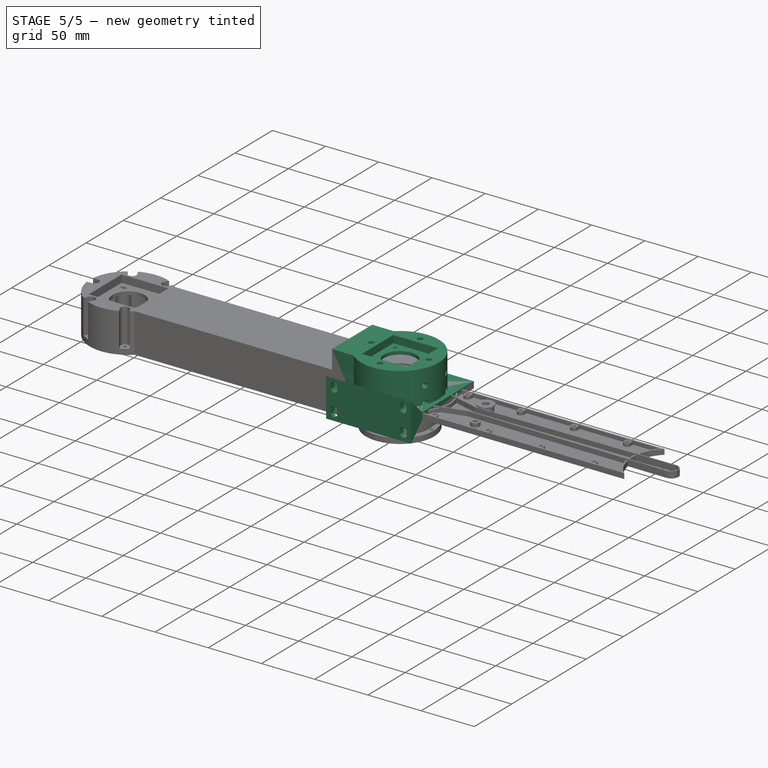
[diagram: stage 5 of 5 — iso view after this stage's code; geometry added in this stage tinted green]
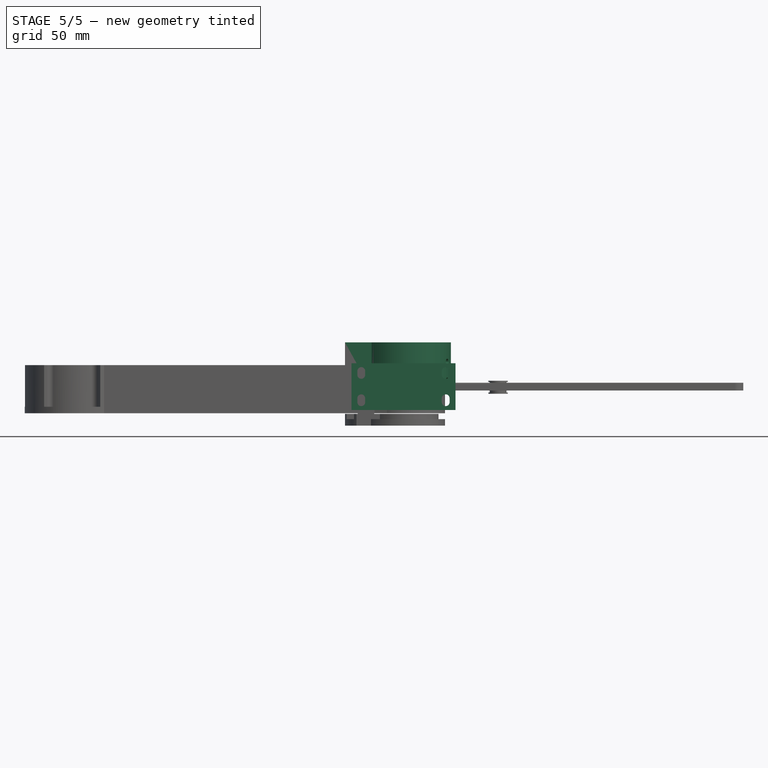
[diagram: stage 5 of 5 — front view after this stage's code; geometry added in this stage tinted green]
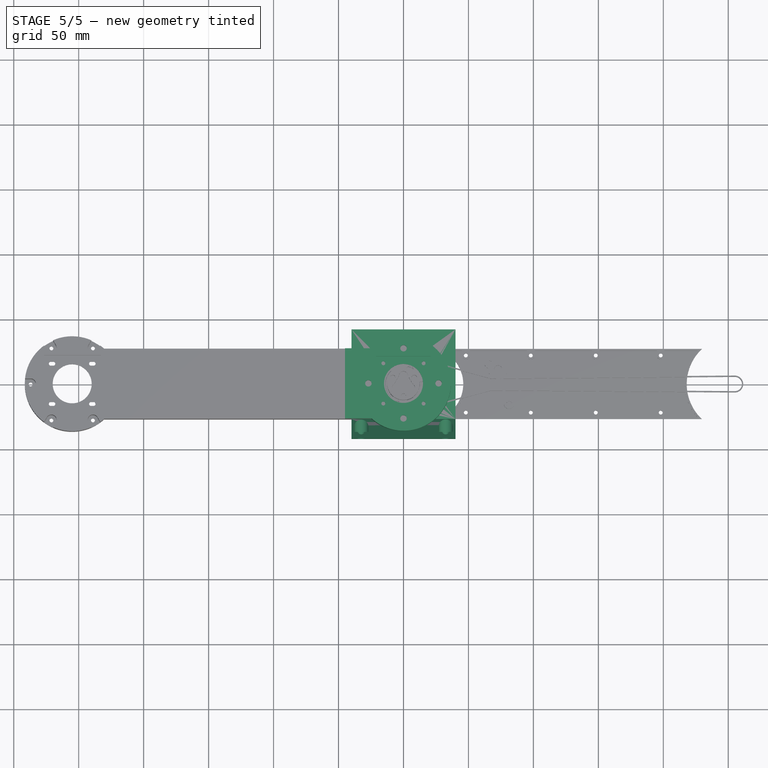
[diagram: stage 5 of 5 — top view after this stage's code; geometry added in this stage tinted green]
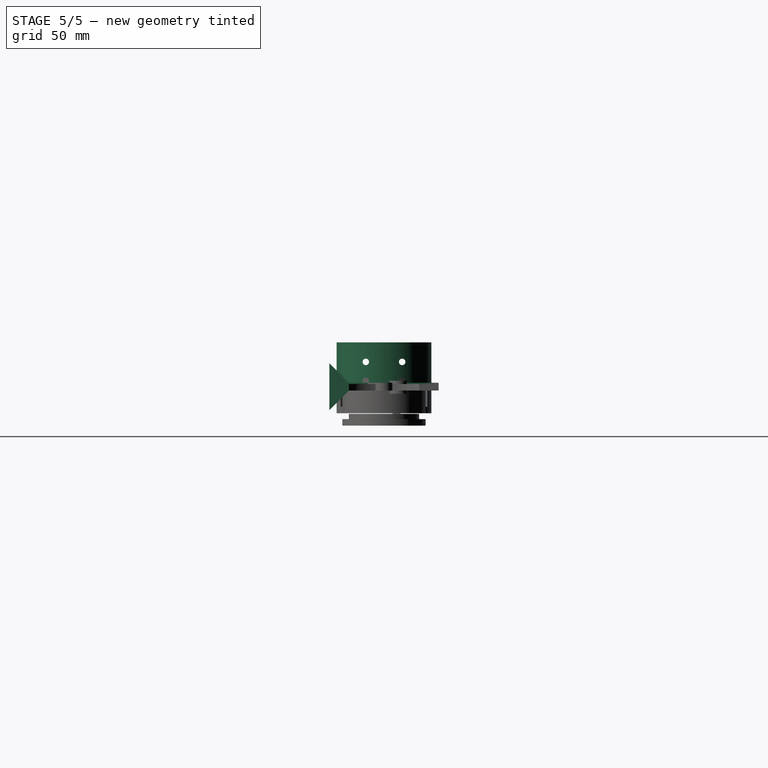
[diagram: stage 5 of 5 — right view after this stage's code; geometry added in this stage tinted green]
FEATURE [App::Link] Link  label="Limit Switch v004"
  LinkPlacement = pos=(35.5,5.96047e-07,-7.5) rot=(0,0,1;1.5708rad)
  LinkedObject = -> Part__Feature001
  Placement = pos=(35.5,5.96047e-07,-7.5) rot=(0,0,1;1.5708rad)
  _LinkOwner = 3808
FEATURE [Sketcher::SketchObject] Sketch054
  ArcFitTolerance = 1e-06
  AttachmentSupport = -> [XY_Plane012]
  FullyConstrained = true
  MakeInternals = false
  MapMode = 5
  sketch-geometry (1):
    g0: Circle CenterX=0 CenterY=0 CenterZ=0 NormalX=0 NormalY=0 NormalZ=1 AngleXU=0 Radius=36.5
  constraints (2):
    c: Coincident(g0,g-1)
    c: Diameter(g0) = 73
FEATURE [PartDesign::Pad] Pad024
  Direction = (0,0,1)
  Length = 37
  Length2 = 10
  Profile = -> Sketch054
  ReferenceAxis = -> Sketch054 [N_Axis]
  Refine = true
  Suppressed = false
  Type = 0
FEATURE [Sketcher::SketchObject] Sketch055
  ArcFitTolerance = 1e-06
  AttachmentSupport = -> [Pad024]
  FullyConstrained = true
  MakeInternals = false
  MapMode = 5
  Placement = pos=(0,0,37) rot=(0,0,1;0rad)
  expr: Constraints[10] = <<Spreadsheet>>.StepperSize
  sketch-geometry (5):
    g0: LineSegment StartX=21 StartY=-21 StartZ=0 EndX=21 EndY=21 EndZ=0
    g1: LineSegment StartX=21 StartY=21 StartZ=0 EndX=-21 EndY=21 EndZ=0
    g2: LineSegment StartX=-21 StartY=21 StartZ=0 EndX=-21 EndY=-21 EndZ=0
    g3: LineSegment StartX=-21 StartY=-21 StartZ=0 EndX=21 EndY=-21 EndZ=0
    g4: GeomPoint [constr] X=0 Y=0 Z=0
  constraints (12):
    c: Coincident(g0,g1)
    c: Coincident(g1,g2)
    c: Coincident(g2,g3)
    c: Coincident(g3,g0)
    c: Vertical(g0)
    c: Vertical(g2)
    c: Horizontal(g1)
    c: Horizontal(g3)
    c: Symmetric(g2,g0,g4)
    c: Coincident(g4,g-1)
    c: Distance(g0,g0) = 42
    c: Equal(g1,g0)
FEATURE [PartDesign::Pocket] Pocket015
  BaseFeature = -> Pad024
  Direction = (0,0,-1)
  Length = 7
  Length2 = 5
  Profile = -> Sketch055
  ReferenceAxis = -> Sketch055 [N_Axis]
  Refine = true
  Suppressed = false
  Type = 0
FEATURE [Sketcher::SketchObject] Sketch056
  ArcFitTolerance = 1e-06
  AttachmentSupport = -> [Pocket015]
  FullyConstrained = true
  MakeInternals = false
  MapMode = 5
  Placement = pos=(0,0,0) rot=(1,0,0;3.14159rad)
  sketch-geometry (1):
    g0: Circle CenterX=0 CenterY=0 CenterZ=0 NormalX=0 NormalY=0 NormalZ=1 AngleXU=0 Radius=32.5
  constraints (2):
    c: Coincident(g0,g-1)
    c: Diameter(g0) = 65
FEATURE [PartDesign::Pocket] Pocket016
  BaseFeature = -> Pocket015
  Direction = (0,0,1)
  Length = 27
  Length2 = 5
  Profile = -> Sketch056
  ReferenceAxis = -> Sketch056 [N_Axis]
  Refine = true
  Suppressed = false
  Type = 0
FEATURE [Sketcher::SketchObject] Sketch057
  ArcFitTolerance = 1e-06
  AttachmentSupport = -> [Pocket016]
  FullyConstrained = true
  MakeInternals = false
  MapMode = 5
  Placement = pos=(0,0,27) rot=(1,0,0;3.14159rad)
  sketch-geometry (1):
    g0: Circle CenterX=0 CenterY=0 CenterZ=0 NormalX=0 NormalY=0 NormalZ=1 AngleXU=0 Radius=15
  constraints (2):
    c: Coincident(g0,g-1)
    c: Diameter(g0) = 30
FEATURE [PartDesign::Pocket] Pocket017
  BaseFeature = -> Pocket016
  Direction = (0,0,1)
  Length = 5
  Length2 = 5
  Profile = -> Sketch057
  ReferenceAxis = -> Sketch057 [N_Axis]
  Refine = true
  Suppressed = false
  Type = 0
FEATURE [Sketcher::SketchObject] Sketch058
  ArcFitTolerance = 1e-06
  AttachmentSupport = -> [Pocket017]
  FullyConstrained = true
  MakeInternals = false
  MapMode = 5
  Placement = pos=(0,0,27) rot=(1,0,0;3.14159rad)
  sketch-geometry (1):
    g0: Circle CenterX=-15.5 CenterY=15.5 CenterZ=0 NormalX=0 NormalY=0 NormalZ=1 AngleXU=0 Radius=1.5
  constraints (3):
    c: Diameter(g0) = 3
    c: DistanceX(g0,g-1) = 15.5
    c: DistanceY(g-1,g0) = 15.5
FEATURE [PartDesign::Pocket] Pocket018
  BaseFeature = -> Pocket017
  Direction = (0,0,1)
  Length = 5
  Length2 = 5
  Profile = -> Sketch058
  ReferenceAxis = -> Sketch058 [N_Axis]
  Refine = true
  Suppressed = false
  Type = 0
FEATURE [PartDesign::PolarPattern] PolarPattern004
  Angle = 360
  Axis = -> Sketch058 [N_Axis]
  BaseFeature = -> Pocket018
  Mode = 0
  Occurrences = 4
  Offset = 120
  Originals = -> [Pocket018]
  Refine = true
  Suppressed = false
  TransformMode = 0
FEATURE [Sketcher::SketchObject] Sketch059
  ArcFitTolerance = 1e-06
  AttachmentSupport = -> [PolarPattern004]
  FullyConstrained = true
  MakeInternals = false
  MapMode = 5
  Placement = pos=(0,0,0) rot=(1,0,0;3.14159rad)
  sketch-geometry (4):
    g0: LineSegment StartX=-45 StartY=27 StartZ=0 EndX=-45 EndY=-27 EndZ=0
    g1: LineSegment StartX=-45 StartY=-27 StartZ=0 EndX=-24.5611 EndY=-27 EndZ=0
    g2: LineSegment StartX=-45 StartY=27 StartZ=0 EndX=-24.5611 EndY=27 EndZ=0
    g3: ArcOfCircle CenterX=0 CenterY=0 CenterZ=0 NormalX=0 NormalY=0 NormalZ=1 AngleXU=0 Radius=36.5 StartAngle=2.30893 EndAngle=3.97426
  constraints (12):
    c: Vertical(g0)
    c: Coincident(g0,g1)
    c: Horizontal(g1)
    c: Coincident(g0,g2)
    c: Horizontal(g2)
    c: Diameter(g3) = 73
    c: Coincident(g3,g-1)
    c: Coincident(g3,g2)
    c: Coincident(g1,g3)
    c: Distance(g-1,g1) = 27
    c: Distance(g-1,g2) = 27
    c: Distance(g-2,g0) = 45
FEATURE [PartDesign::Pad] Pad025
  BaseFeature = -> PolarPattern004
  Direction = (0,0,-1)
  Length = 37
  Length2 = 10
  Profile = -> Sketch059
  ReferenceAxis = -> Sketch059 [N_Axis]
  Refine = true
  Reversed = true
  Suppressed = false
  Type = 0
FEATURE [Sketcher::SketchObject] Sketch060
  ArcFitTolerance = 1e-06
  AttachmentOffset = pos=(0,0,-5) rot=(0,0,1;0rad)
  AttachmentSupport = -> [Pad025]
  FullyConstrained = true
  MakeInternals = false
  MapMode = 5
  Placement = pos=(-40,0,0) rot=(0.57735,-0.57735,-0.57735;2.0944rad)
  sketch-geometry (5):
    g0: LineSegment StartX=21 StartY=6 StartZ=0 EndX=21 EndY=27 EndZ=0
    g1: LineSegment StartX=21 StartY=27 StartZ=0 EndX=-21 EndY=27 EndZ=0
    g2: LineSegment StartX=-21 StartY=27 StartZ=0 EndX=-21 EndY=6 EndZ=0
    g3: LineSegment StartX=-21 StartY=6 StartZ=0 EndX=21 EndY=6 EndZ=0
    g4: GeomPoint [constr] X=0 Y=16.5 Z=0
  constraints (13):
    c: Coincident(g0,g1)
    c: Coincident(g1,g2)
    c: Coincident(g2,g3)
    c: Coincident(g3,g0)
    c: Vertical(g0)
    c: Vertical(g2)
    c: Horizontal(g1)
    c: Horizontal(g3)
    c: Symmetric(g2,g0,g4)
    c: PointOnObject(g4,g-2)
    c: DistanceY(g-1,g4) = 16.5
    c: Distance(g0,g0) = 21
    c: Distance(g-2,g0) = 21
FEATURE [PartDesign::Pocket] Pocket019
  BaseFeature = -> Pad025
  Direction = (1,0,0)
  Length = 30
  Length2 = 5
  Profile = -> Sketch060
  ReferenceAxis = -> Sketch060 [N_Axis]
  Refine = true
  Suppressed = false
  Type = 0
FEATURE [Sketcher::SketchObject] Sketch061
  ArcFitTolerance = 1e-06
  AttachmentSupport = -> [Pocket019]
  FullyConstrained = true
  MakeInternals = false
  MapMode = 5
  Placement = pos=(-45,0,0) rot=(0.57735,-0.57735,-0.57735;2.0944rad)
  sketch-geometry (5):
    g0: LineSegment StartX=9 StartY=9 StartZ=0 EndX=9 EndY=24 EndZ=0
    g1: LineSegment StartX=9 StartY=24 StartZ=0 EndX=-9 EndY=24 EndZ=0
    g2: LineSegment StartX=-9 StartY=24 StartZ=0 EndX=-9 EndY=9 EndZ=0
    g3: LineSegment StartX=-9 StartY=9 StartZ=0 EndX=9 EndY=9 EndZ=0
    g4: GeomPoint [constr] X=1e-16 Y=16.5 Z=0
  constraints (13):
    c: Coincident(g0,g1)
    c: Coincident(g1,g2)
    c: Coincident(g2,g3)
    c: Coincident(g3,g0)
    c: Vertical(g0)
    c: Vertical(g2)
    c: Horizontal(g1)
    c: Horizontal(g3)
    c: Symmetric(g2,g0,g4)
    c: PointOnObject(g4,g-2)
    c: DistanceY(g-1,g4) = 16.5
    c: DistanceY(g2,g2) = 15
    c: DistanceX(g1,g1) = 18
FEATURE [PartDesign::Pocket] Pocket020
  BaseFeature = -> Pocket019
  Direction = (1,0,0)
  Length = 5
  Length2 = 5
  Profile = -> Sketch061
  ReferenceAxis = -> Sketch061 [N_Axis]
  Refine = true
  Suppressed = false
  Type = 0
FEATURE [Sketcher::SketchObject] Sketch062
  ArcFitTolerance = 1e-06
  AttachmentSupport = -> [Pocket020]
  FullyConstrained = true
  MakeInternals = false
  MapMode = 5
  Placement = pos=(0,0,0) rot=(1,0,0;3.14159rad)
  sketch-geometry (4):
    g0: LineSegment StartX=-40 StartY=21 StartZ=0 EndX=-40 EndY=-21 EndZ=0
    g1: LineSegment StartX=-40 StartY=-21 StartZ=0 EndX=-15 EndY=-21 EndZ=0
    g2: LineSegment StartX=-15 StartY=-21 StartZ=0 EndX=-15 EndY=21 EndZ=0
    g3: LineSegment StartX=-15 StartY=21 StartZ=0 EndX=-40 EndY=21 EndZ=0
  constraints (12):
    c: Coincident(g0,g1)
    c: Coincident(g1,g2)
    c: Coincident(g2,g3)
    c: Coincident(g3,g0)
    c: Vertical(g0)
    c: Vertical(g2)
    c: Horizontal(g1)
    c: Horizontal(g3)
    c: Distance(g-2,g0) = 40
    c: DistanceX(g3,g3) = 25
    c: Distance(g-1,g3) = 21
    c: Distance(g-1,g1) = 21
FEATURE [PartDesign::Pocket] Pocket021
  BaseFeature = -> Pocket020
  Direction = (0,0,1)
  Length = 10
  Length2 = 5
  Profile = -> Sketch062
  ReferenceAxis = -> Sketch062 [N_Axis]
  Refine = true
  Suppressed = false
  Type = 0
FEATURE [PartDesign::Body] Body  label="GearHolder"
  AllowCompound = false
  Group = -> [CopyPocket,Sketch025,Pad016,Sketch026,Pocket001,Sketch027,Pocket002,Sketch028,Pocket003,Sketch030,Pad018,Sketch034,Pocket004,Sketch046,Pad020,Sketch047,Pocket,PolarPattern003,Chamfer002,Sketch063,Pocket022]
  Origin = -> Origin
  Placement = pos=(5,-1.19209e-06,2.46221) rot=(0,0,1;3.14159rad)
  Tip = -> Pocket022
FEATURE [Sketcher::SketchObject] Sketch064
  ArcFitTolerance = 1e-06
  AttachmentSupport = -> [Pocket021]
  FullyConstrained = false
  MakeInternals = false
  MapMode = 5
  Placement = pos=(-45,0,0) rot=(0.57735,-0.57735,-0.57735;2.0944rad)
  sketch-geometry (4):
    g0: Circle CenterX=-14 CenterY=22 CenterZ=0 NormalX=0 NormalY=0 NormalZ=1 AngleXU=0 Radius=2.5
    g1: Circle CenterX=14 CenterY=22 CenterZ=0 NormalX=0 NormalY=0 NormalZ=1 AngleXU=0 Radius=2.5
    g2: Circle CenterX=14 CenterY=7.43628 CenterZ=0 NormalX=0 NormalY=0 NormalZ=1 AngleXU=0 Radius=2.5
    g3: Circle CenterX=-14 CenterY=7.43628 CenterZ=0 NormalX=0 NormalY=0 NormalZ=1 AngleXU=0 Radius=2.5
  constraints (11):
    c: Diameter(g0) = 5
    c: Diameter(g1) = 5
    c: Diameter(g2) = 5
    c: Diameter(g3) = 5
    c: Distance(g0,g-2) = 14
    c: DistanceX(g-1,g1) = 14
    c: Vertical(g3,g0)
    c: Vertical(g2,g1)
    c: Horizontal(g2,g3)
    c: Horizontal(g0,g1)
    c: DistanceY(g-1,g0) = 22
FEATURE [PartDesign::Pocket] Pocket023
  BaseFeature = -> Pocket021
  Direction = (1,0,0)
  Length = 5
  Length2 = 5
  Profile = -> Sketch064
  ReferenceAxis = -> Sketch064 [N_Axis]
  Refine = true
  Suppressed = false
  Type = 1
FEATURE [Sketcher::SketchObject] Sketch065
  ArcFitTolerance = 1e-06
  AttachmentSupport = -> [Pocket023]
  FullyConstrained = true
  MakeInternals = false
  MapMode = 5
  Placement = pos=(0,0,37) rot=(0,0,1;0rad)
  sketch-geometry (4):
    g0: Circle CenterX=27 CenterY=0 CenterZ=0 NormalX=0 NormalY=0 NormalZ=1 AngleXU=0 Radius=2.5
    g1: Circle CenterX=0 CenterY=27 CenterZ=0 NormalX=0 NormalY=0 NormalZ=1 AngleXU=0 Radius=2.5
    g2: Circle CenterX=0 CenterY=-27 CenterZ=0 NormalX=0 NormalY=0 NormalZ=1 AngleXU=0 Radius=2.5
    g3: Circle CenterX=-27 CenterY=0 CenterZ=0 NormalX=0 NormalY=0 NormalZ=1 AngleXU=0 Radius=2.5
  constraints (12):
    c: PointOnObject(g0,g-1)
    c: Diameter(g0) = 5
    c: DistanceX(g-1,g0) = 27
    c: PointOnObject(g1,g-2)
    c: PointOnObject(g2,g-2)
    c: Diameter(g1) = 5
    c: Diameter(g2) = 5
    c: DistanceY(g-1,g1) = 27
    c: DistanceY(g2,g-1) = 27
    c: PointOnObject(g3,g-1)
    c: Diameter(g3) = 5
    c: DistanceX(g3,g-1) = 27
FEATURE [PartDesign::Pocket] Pocket024
  BaseFeature = -> Pocket023
  Direction = (0,0,-1)
  Length = 5
  Length2 = 5
  Profile = -> Sketch065
  ReferenceAxis = -> Sketch065 [N_Axis]
  Refine = true
  Suppressed = false
  Type = 1
FEATURE [PartDesign::Body] Body005  label="Nema17Holder"
  AllowCompound = false
  Group = -> [Sketch054,Pad024,Sketch055,Pocket015,Sketch056,Pocket016,Sketch057,Pocket017,Sketch058,Pocket018,PolarPattern004,Sketch059,Pad025,Sketch060,Pocket019,Sketch061,Pocket020,Sketch062,Pocket021,Sketch064,Pocket023,Sketch065,Pocket024]
  Origin = -> Origin012
  Placement = pos=(260.223,1.57796e-05,-14.4622) rot=(0,0,1;0rad)
  Tip = -> Pocket024
FEATURE [App::Link] Link008  label="SecondNemaHolder001"
  LinkPlacement = pos=(260,-3.68357e-06,52.9) rot=(0,0,1;0rad)
  LinkedObject = -> Body006
  Placement = pos=(260,-3.68357e-06,52.9) rot=(0,0,1;0rad)
  _LinkOwner = 3808
FEATURE [Sketcher::SketchObject] Sketch071
  ArcFitTolerance = 1e-06
  AttachmentSupport = -> [XY_Plane014]
  FullyConstrained = true
  MakeInternals = false
  MapMode = 5
  sketch-geometry (6):
    g0: Circle CenterX=0 CenterY=0 CenterZ=0 NormalX=0 NormalY=0 NormalZ=1 AngleXU=0 Radius=18.5
    g1: LineSegment StartX=40 StartY=-42 StartZ=0 EndX=40 EndY=42 EndZ=0
    g2: LineSegment StartX=40 StartY=42 StartZ=0 EndX=-40 EndY=42 EndZ=0
    g3: LineSegment StartX=-40 StartY=42 StartZ=0 EndX=-40 EndY=-42 EndZ=0
    g4: LineSegment StartX=-40 StartY=-42 StartZ=0 EndX=40 EndY=-42 EndZ=0
    g5: GeomPoint [constr] X=0 Y=0 Z=0
  constraints (14):
    c: Coincident(g0,g-1)
    c: Diameter(g0) = 37
    c: Coincident(g1,g2)
    c: Coincident(g2,g3)
    c: Coincident(g3,g4)
    c: Coincident(g4,g1)
    c: Vertical(g1)
    c: Vertical(g3)
    c: Horizontal(g2)
    c: Horizontal(g4)
    c: Symmetric(g3,g1,g5)
    c: Coincident(g5,g0)
    c: Distance(g-1,g2) = 42
    c: Distance(g-2,g1) = 40
FEATURE [PartDesign::Pad] Pad029
  Direction = (0,0,1)
  Length = 6
  Length2 = 10
  Profile = -> Sketch071
  ReferenceAxis = -> Sketch071 [N_Axis]
  Refine = true
  Suppressed = false
  Type = 0
FEATURE [Sketcher::SketchObject] Sketch072
  ArcFitTolerance = 1e-06
  AttachmentSupport = -> [Pad029]
  FullyConstrained = true
  MakeInternals = false
  MapMode = 5
  Placement = pos=(-40,0,0) rot=(0.57735,-0.57735,-0.57735;2.0944rad)
  sketch-geometry (6):
    g0: LineSegment StartX=27 StartY=0 StartZ=0 EndX=42 EndY=0 EndZ=0
    g1: LineSegment StartX=42 StartY=0 StartZ=0 EndX=42 EndY=-15 EndZ=0
    g2: LineSegment StartX=42 StartY=-15 StartZ=0 EndX=27 EndY=0 EndZ=0
    g3: LineSegment StartX=27 StartY=6 StartZ=0 EndX=42 EndY=6 EndZ=0
    g4: LineSegment StartX=42 StartY=6 StartZ=0 EndX=42 EndY=21 EndZ=0
    g5: LineSegment StartX=42 StartY=21 StartZ=0 EndX=27 EndY=6 EndZ=0
  constraints (18):
    c: PointOnObject(g0,g-1)
    c: PointOnObject(g0,g-1)
    c: Coincident(g0,g1)
    c: Vertical(g1)
    c: Coincident(g1,g2)
    c: Coincident(g2,g0)
    c: Horizontal(g3)
    c: Coincident(g3,g4)
    c: Vertical(g4)
    c: Coincident(g4,g5)
    c: Coincident(g5,g3)
    c: Distance(g-2,g4) = 42
    c: Vertical(g0,g3)
    c: Distance(g-1,g3) = 6
    c: Angle(g3,g5) = 0.785398
    c: Angle(g2,g0) = 0.785398
    c: Distance(g1,g1) = 15
    c: Equal(g1,g4)
FEATURE [PartDesign::Pad] Pad030
  BaseFeature = -> Pad029
  Direction = (-1,0,0)
  Length = 80
  Length2 = 10
  Profile = -> Sketch072
  ReferenceAxis = -> Sketch072 [N_Axis]
  Refine = true
  Reversed = true
  Suppressed = false
  Type = 0
FEATURE [Sketcher::SketchObject] Sketch073
  ArcFitTolerance = 1e-06
  AttachmentSupport = -> [Pad030]
  FullyConstrained = true
  MakeInternals = false
  MapMode = 5
  Placement = pos=(0,-42,0) rot=(1,0,0;1.5708rad)
  sketch-geometry (16):
    g0: ArcOfCircle CenterX=-32.5 CenterY=12 CenterZ=0 NormalX=0 NormalY=0 NormalZ=1 AngleXU=0 Radius=3 StartAngle=3.14159 EndAngle=6.28319
    g1: ArcOfCircle CenterX=-32.5 CenterY=15 CenterZ=0 NormalX=0 NormalY=0 NormalZ=1 AngleXU=0 Radius=3 StartAngle=0 EndAngle=3.14159
    g2: LineSegment StartX=-35.5 StartY=12 StartZ=0 EndX=-35.5 EndY=15 EndZ=0
    g3: LineSegment StartX=-29.5 StartY=12 StartZ=0 EndX=-29.5 EndY=15 EndZ=0
    g4: ArcOfCircle CenterX=32.5 CenterY=15 CenterZ=0 NormalX=0 NormalY=0 NormalZ=1 AngleXU=0 Radius=3 StartAngle=4e-16 EndAngle=3.14159
    g5: ArcOfCircle CenterX=32.5 CenterY=12 CenterZ=0 NormalX=0 NormalY=0 NormalZ=1 AngleXU=0 Radius=3 StartAngle=3.14159 EndAngle=6.28319
    g6: LineSegment StartX=35.5 StartY=15 StartZ=0 EndX=35.5 EndY=12 EndZ=0
    g7: LineSegment StartX=29.5 StartY=15 StartZ=0 EndX=29.5 EndY=12 EndZ=0
    g8: ArcOfCircle CenterX=-32.5 CenterY=-6 CenterZ=0 NormalX=0 NormalY=0 NormalZ=1 AngleXU=0 Radius=3 StartAngle=1e-16 EndAngle=3.14159
    g9: ArcOfCircle CenterX=-32.5 CenterY=-9 CenterZ=0 NormalX=0 NormalY=0 NormalZ=1 AngleXU=0 Radius=3 StartAngle=3.14159 EndAngle=6.28319
    g10: LineSegment StartX=-29.5 StartY=-6 StartZ=0 EndX=-29.5 EndY=-9 EndZ=0
    g11: LineSegment StartX=-35.5 StartY=-6 StartZ=0 EndX=-35.5 EndY=-9 EndZ=0
    g12: ArcOfCircle CenterX=32.5 CenterY=-6 CenterZ=0 NormalX=0 NormalY=0 NormalZ=1 AngleXU=0 Radius=3 StartAngle=1e-16 EndAngle=3.14159
    g13: ArcOfCircle CenterX=32.5 CenterY=-9 CenterZ=0 NormalX=0 NormalY=0 NormalZ=1 AngleXU=0 Radius=3 StartAngle=3.14159 EndAngle=6.28319
    g14: LineSegment StartX=35.5 StartY=-6 StartZ=0 EndX=35.5 EndY=-9 EndZ=0
    g15: LineSegment StartX=29.5 StartY=-6 StartZ=0 EndX=29.5 EndY=-9 EndZ=0
  constraints (40):
    c: Tangent(g0,g2) = 1.5708
    c: Tangent(g0,g3) = -1.5708
    c: Tangent(g1,g2) = 1.5708
    c: Tangent(g1,g3) = -1.5708
    c: Equal(g0,g1)
    c: Vertical(g3)
    c: Distance(g0,g1) = 3
    c: Radius(g0) = 3
    c: Tangent(g4,g6) = 1.5708
    c: Tangent(g4,g7) = -1.5708
    c: Tangent(g5,g6) = 1.5708
    c: Tangent(g5,g7) = -1.5708
    c: Equal(g4,g5)
    c: Vertical(g7)
    c: Distance(g4,g5) = 3
    c: Radius(g4) = 3
    c: Tangent(g8,g10) = 1.5708
    c: Tangent(g8,g11) = -1.5708
    c: Tangent(g9,g10) = 1.5708
    c: Tangent(g9,g11) = -1.5708
    c: Equal(g8,g9)
    c: Vertical(g11)
    c: Distance(g8,g9) = 3
    c: Radius(g8) = 3
    c: Tangent(g12,g14) = 1.5708
    c: Tangent(g12,g15) = -1.5708
    c: Tangent(g13,g14) = 1.5708
    c: Tangent(g13,g15) = -1.5708
    c: Equal(g12,g13)
    c: Vertical(g15)
    c: Distance(g12,g13) = 3
    c: Radius(g12) = 3
    c: Vertical(g0,g8)
    c: Vertical(g5,g12)
    c: Horizontal(g8,g12)
    c: Horizontal(g0,g5)
    c: Distance(g8,g-1) = 6
    c: Distance(g0,g-1) = 12
    c: DistanceX(g0,g-1) = 32.5
    c: DistanceX(g-1,g4) = 32.5
FEATURE [PartDesign::Pocket] Pocket027
  BaseFeature = -> Pad030
  Direction = (0,1,-2e-16)
  Length = 5
  Length2 = 5
  Profile = -> Sketch073
  ReferenceAxis = -> Sketch073 [N_Axis]
  Refine = true
  Suppressed = false
  Type = 1
FEATURE [Sketcher::SketchObject] Sketch074
  ArcFitTolerance = 1e-06
  AttachmentOffset = pos=(0,0,-5) rot=(0,0,1;0rad)
  AttachmentSupport = -> [Pocket027]
  FullyConstrained = false
  MakeInternals = false
  MapMode = 5
  Placement = pos=(0,-37,-1.1e-15) rot=(1,0,0;1.5708rad)
  sketch-geometry (16):
    g0: ArcOfCircle CenterX=-32.5 CenterY=15 CenterZ=0 NormalX=0 NormalY=0 NormalZ=1 AngleXU=0 Radius=5.5 StartAngle=1e-16 EndAngle=3.14159
    g1: ArcOfCircle CenterX=-32.5 CenterY=12 CenterZ=0 NormalX=0 NormalY=0 NormalZ=1 AngleXU=0 Radius=5.5 StartAngle=3.14159 EndAngle=6.28319
    g2: LineSegment StartX=-27 StartY=15 StartZ=0 EndX=-27 EndY=12 EndZ=0
    g3: LineSegment StartX=-38 StartY=15 StartZ=0 EndX=-38 EndY=12 EndZ=0
    g4: ArcOfCircle CenterX=32.5 CenterY=14.7943 CenterZ=0 NormalX=0 NormalY=0 NormalZ=1 AngleXU=0 Radius=5.5 StartAngle=1e-16 EndAngle=3.14159
    g5: ArcOfCircle CenterX=32.5 CenterY=11.7943 CenterZ=0 NormalX=0 NormalY=0 NormalZ=1 AngleXU=0 Radius=5.5 StartAngle=3.14159 EndAngle=6.28319
    g6: LineSegment StartX=38 StartY=14.7943 StartZ=0 EndX=38 EndY=11.7943 EndZ=0
    g7: LineSegment StartX=27 StartY=14.7943 StartZ=0 EndX=27 EndY=11.7943 EndZ=0
    g8: ArcOfCircle CenterX=32.5 CenterY=-6 CenterZ=0 NormalX=0 NormalY=0 NormalZ=1 AngleXU=0 Radius=5.5 StartAngle=1e-16 EndAngle=3.14159
    g9: ArcOfCircle CenterX=32.5 CenterY=-9 CenterZ=0 NormalX=0 NormalY=0 NormalZ=1 AngleXU=0 Radius=5.5 StartAngle=3.14159 EndAngle=6.28319
    g10: LineSegment StartX=38 StartY=-6 StartZ=0 EndX=38 EndY=-9 EndZ=0
    g11: LineSegment StartX=27 StartY=-6 StartZ=0 EndX=27 EndY=-9 EndZ=0
    g12: ArcOfCircle CenterX=-32.5 CenterY=-6 CenterZ=0 NormalX=0 NormalY=0 NormalZ=1 AngleXU=0 Radius=5.5 StartAngle=2e-16 EndAngle=3.14159
    g13: ArcOfCircle CenterX=-32.5 CenterY=-9 CenterZ=0 NormalX=0 NormalY=0 NormalZ=1 AngleXU=0 Radius=5.5 StartAngle=3.14159 EndAngle=6.28319
    g14: LineSegment StartX=-27 StartY=-6 StartZ=0 EndX=-27 EndY=-9 EndZ=0
    g15: LineSegment StartX=-38 StartY=-6 StartZ=0 EndX=-38 EndY=-9 EndZ=0
  constraints (39):
    c: Tangent(g0,g2) = 1.5708
    c: Tangent(g0,g3) = -1.5708
    c: Tangent(g1,g2) = 1.5708
    c: Tangent(g1,g3) = -1.5708
    c: Equal(g0,g1)
    c: Radius(g0) = 5.5
    c: Vertical(g2)
    c: DistanceY(g2,g2) = 3
    c: DistanceX(g0,g-1) = 32.5
    c: Distance(g1,g-1) = 12
    c: Tangent(g4,g6) = 1.5708
    c: Tangent(g4,g7) = -1.5708
    c: Tangent(g5,g6) = 1.5708
    c: Tangent(g5,g7) = -1.5708
    c: Equal(g4,g5)
    c: Vertical(g7)
    c: Distance(g4,g5) = 3
    c: Radius(g4) = 5.5
    c: Tangent(g8,g10) = 1.5708
    c: Tangent(g8,g11) = -1.5708
    c: Tangent(g9,g10) = 1.5708
    c: Tangent(g9,g11) = -1.5708
    c: Equal(g8,g9)
    c: Vertical(g11)
    c: Distance(g8,g9) = 3
    c: Radius(g8) = 5.5
    c: Tangent(g12,g14) = 1.5708
    c: Tangent(g12,g15) = -1.5708
    c: Tangent(g13,g14) = 1.5708
    c: Tangent(g13,g15) = -1.5708
    c: Equal(g12,g13)
    c: Vertical(g15)
    c: Distance(g12,g13) = 3
    c: Radius(g12) = 5.5
    c: DistanceX(g-1,g4) = 32.5
    c: Distance(g8,g-1) = 6
    c: Vertical(g4,g8)
    c: Horizontal(g8,g12)
    c: Vertical(g12,g0)
FEATURE [PartDesign::Pocket] Pocket028
  BaseFeature = -> Pocket027
  Direction = (0,1,-2e-16)
  Length = 5
  Length2 = 5
  Profile = -> Sketch074
  ReferenceAxis = -> Sketch074 [N_Axis]
  Refine = true
  Suppressed = false
  Type = 1
FEATURE [Sketcher::SketchObject] Sketch026
  ArcFitTolerance = 1e-06
  AttachmentSupport = -> [Revolution003]
  FullyConstrained = true
  MakeInternals = false
  MapMode = 5
  Placement = pos=(0,1.1e-15,5) rot=(0,0,1;3.14159rad)
  sketch-geometry (1):
    g0: Circle CenterX=0 CenterY=19 CenterZ=0 NormalX=0 NormalY=0 NormalZ=1 AngleXU=0 Radius=1.5
  constraints (3):
    c: Diameter(g0) = 3
    c: Vertical(g0,g-1)
    c: DistanceY(g-1,g0) = 19
FEATURE [PartDesign::Pocket] Pocket008
  BaseFeature = -> Revolution003
  Direction = (0,0,-1)
  Length = 5
  Length2 = 5
  Placement = pos=(0,0,0) rot=(1,0,0;1.5708rad)
  Profile = -> Sketch026
  ReferenceAxis = -> Sketch026 [N_Axis]
  Refine = true
  Suppressed = false
  Type = 0
FEATURE [PartDesign::PolarPattern] PolarPattern004
  Angle = 360
  Axis = -> Sketch026 [N_Axis]
  BaseFeature = -> Pocket008
  Mode = 0
  Occurrences = 6
  Offset = 120
  Originals = -> [Pocket008]
  Placement = pos=(0,0,0) rot=(1,0,0;1.5708rad)
  Refine = true
  Suppressed = false
  TransformMode = 0
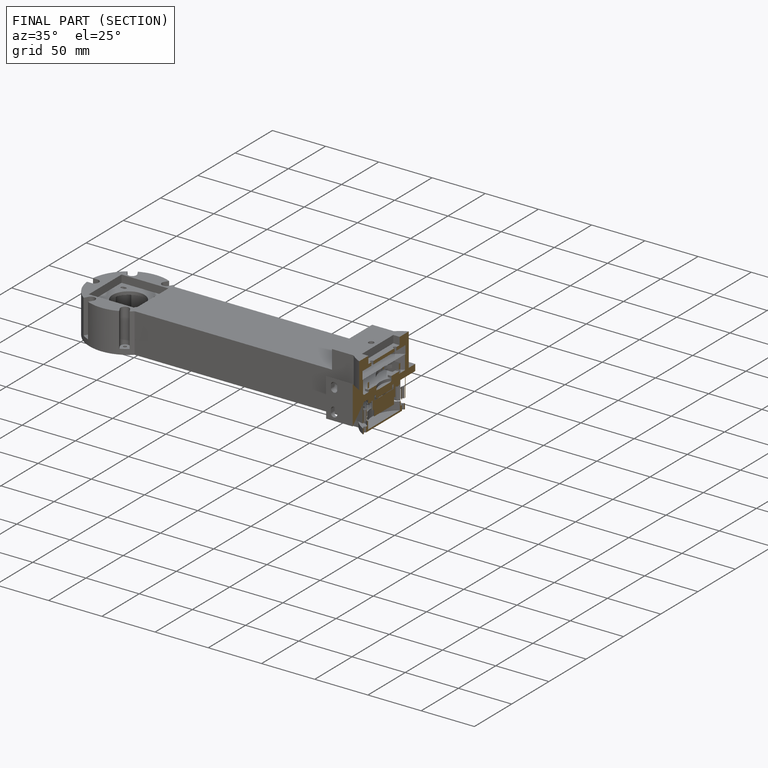
[diagram: finished part — half-section view (interior)]
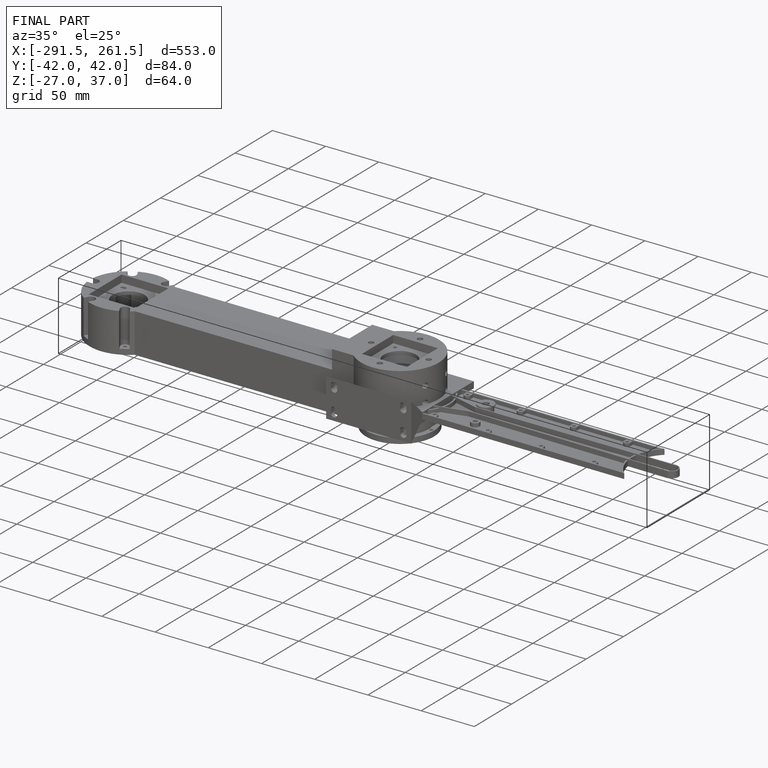
[diagram: finished part — iso view with bounding-box wireframe]
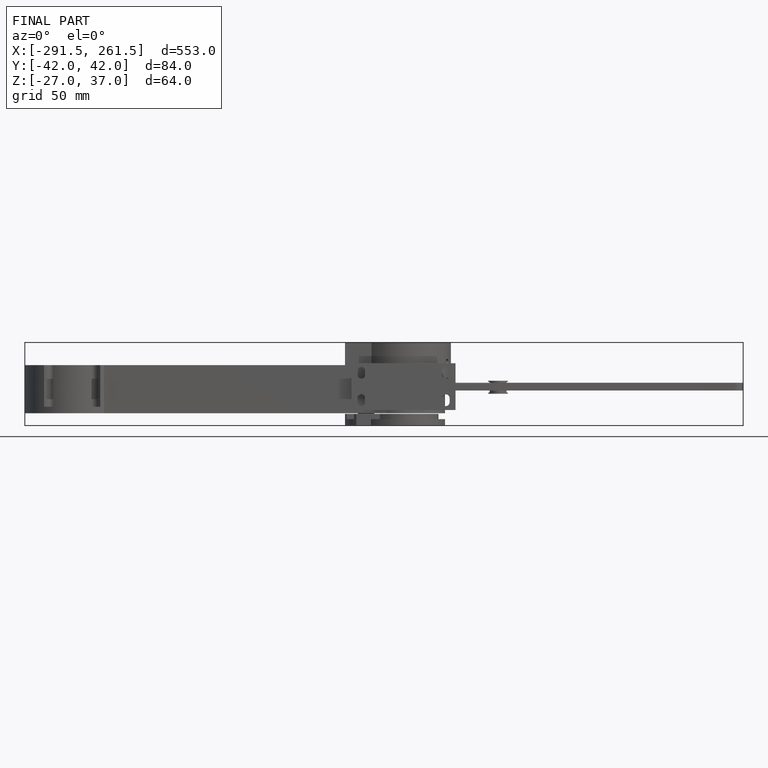
[diagram: finished part — front view with bounding-box wireframe]
